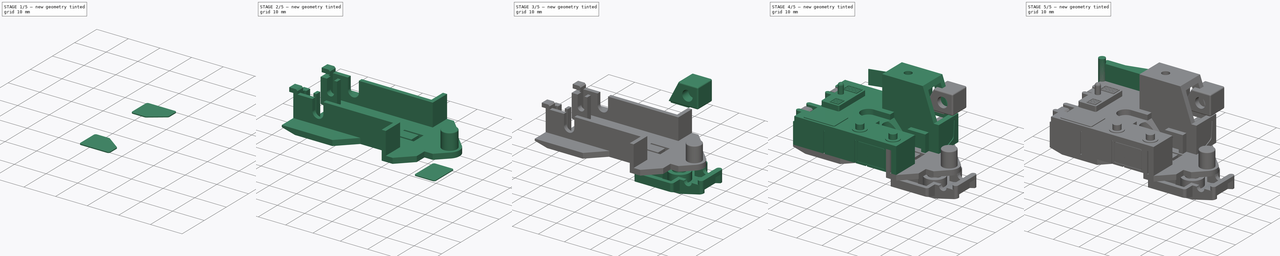
[diagram: build sequence overview — one tinted view per stage of 5, left to right]
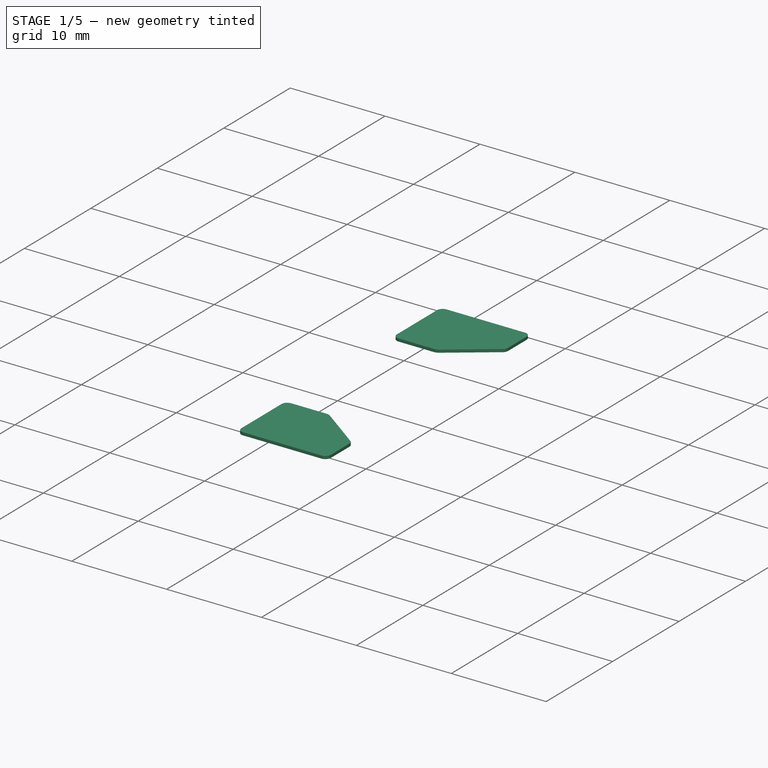
[diagram: stage 1 of 5 — iso view after this stage's code; geometry added in this stage tinted green]
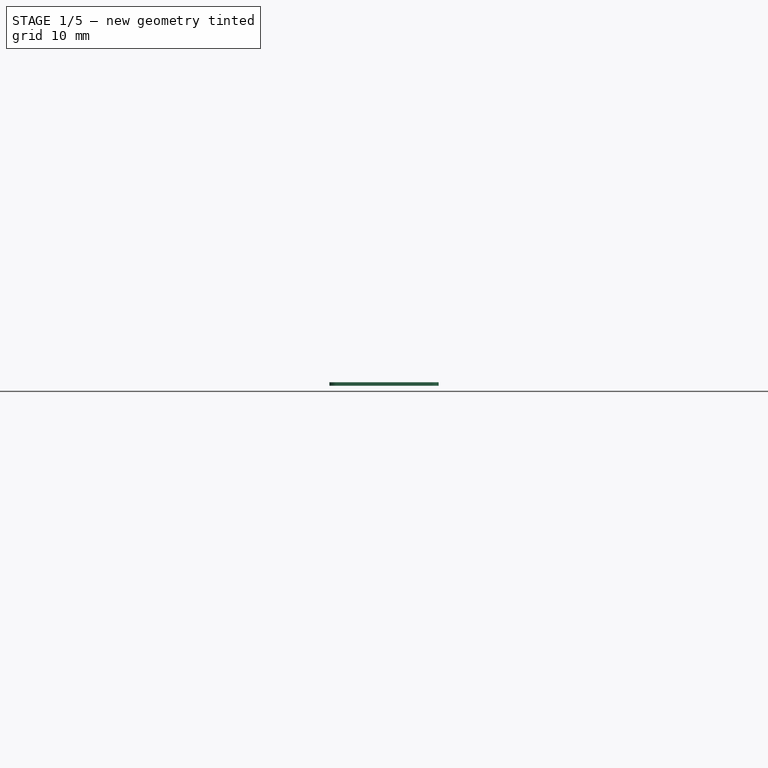
[diagram: stage 1 of 5 — front view after this stage's code; geometry added in this stage tinted green]
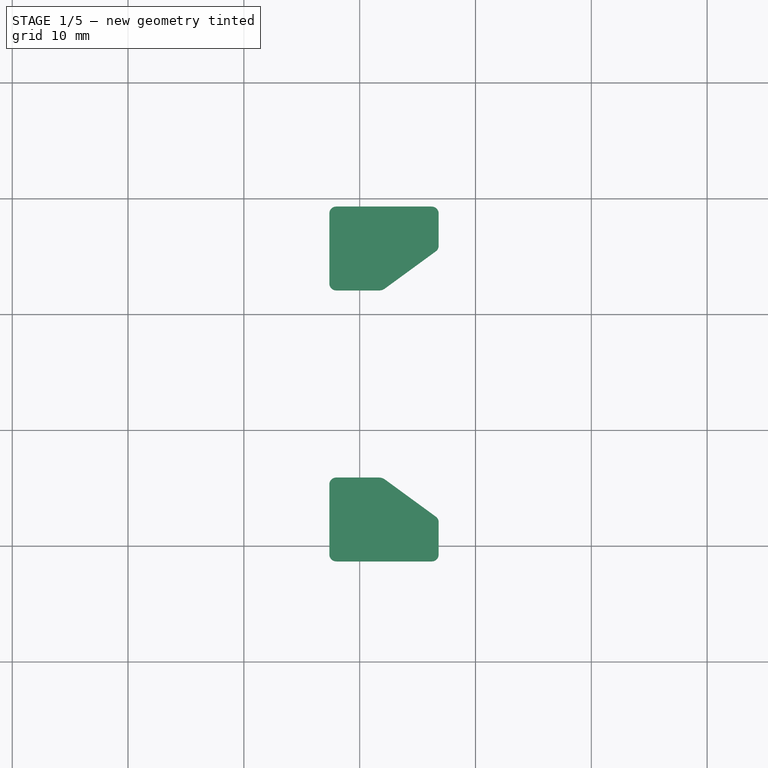
[diagram: stage 1 of 5 — top view after this stage's code; geometry added in this stage tinted green]
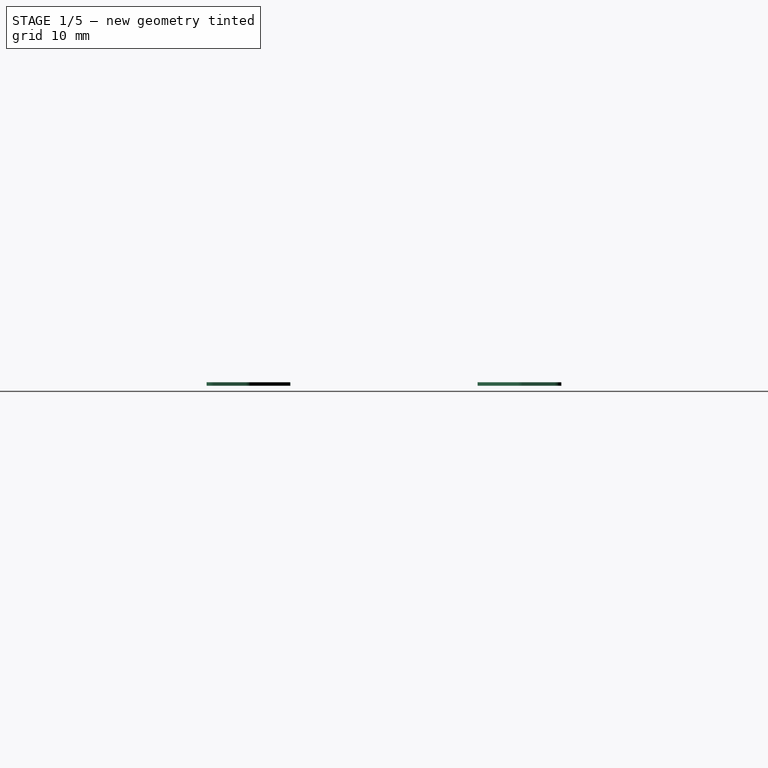
[diagram: stage 1 of 5 — right view after this stage's code; geometry added in this stage tinted green]
FCSTD DOCUMENT  (FreeCAD 1.0R39319 (Git))
Label: Stickered_Parts
License: All rights reserved
LicenseURL: https://en.wikipedia.org/wiki/All_rights_reserved
objects: Sketcher::SketchObject×29, PartDesign::Pocket×21, PartDesign::Body×14, Image::ImagePlane×8, PartDesign::SubShapeBinder×8, PartDesign::Pad×8, Part::Feature×6, PartDesign::FeatureBase×6
note: 185 computed .brp shape members not serialized (recipe doc carries the construction recipe); baked Part::Feature solids carry a one-line shape summary decoded from their .brp

FEATURE [PartDesign::Body] Body011  label="Sticker5"
  AllowCompound = false
  Group = -> [Binder005,Sketch019,Pad005,Sketch020,Pocket014]
  Origin = -> Origin011
  Tip = -> Pocket014
FEATURE [PartDesign::SubShapeBinder] Binder006
  BindCopyOnChange = 0
  BindMode = 2
  ClaimChildren = false
  Context = -> Body012 [Binder006.]
  Fuse = false
  MakeFace = true
  OffsetFill = false
  OffsetIntersection = false
  OffsetJoinType = 0
  OffsetOpenResult = false
  PartialLoad = false
  Refine = true
  Relative = true
  _Version = 2
FEATURE [Sketcher::SketchObject] Sketch021
  ArcFitTolerance = 1e-06
  AttachmentSupport = -> [Binder006]
  ExternalGeometry = -> [Binder006]
  FullyConstrained = true
  MakeInternals = false
  MapMode = 5
  Placement = pos=(0,0,-9.9) rot=(1,0,0;3.14159rad)
  sketch-geometry (16):
    g0: LineSegment StartX=7.38 StartY=7.32 StartZ=0 EndX=7.38 EndY=1.28 EndZ=0
    g1: LineSegment StartX=7.98 StartY=0.68 StartZ=0 EndX=16.22 EndY=0.68 EndZ=0
    g2: LineSegment StartX=16.82 StartY=1.28 StartZ=0 EndX=16.82 EndY=4.05936 EndZ=0
    g3: LineSegment StartX=16.5739 StartY=4.5439 StartZ=0 EndX=12.1752 EndY=7.75642 EndZ=0
    g4: LineSegment StartX=11.6739 StartY=7.92 StartZ=0 EndX=7.98 EndY=7.92 EndZ=0
    g5: ArcOfCircle CenterX=7.98 CenterY=7.32 CenterZ=0 NormalX=0 NormalY=0 NormalZ=1 AngleXU=0 Radius=0.6 StartAngle=1.5708 EndAngle=3.14159
    g6: GeomPoint [constr] X=7.38 Y=7.92 Z=0
    g7: ArcOfCircle CenterX=11.6739 CenterY=7.07 CenterZ=0 NormalX=0 NormalY=0 NormalZ=1 AngleXU=0 Radius=0.85 StartAngle=0.939995 EndAngle=1.5708
    g8: GeomPoint [constr] X=11.9512 Y=7.92 Z=0
    g9: ArcOfCircle CenterX=16.22 CenterY=4.05936 CenterZ=0 NormalX=0 NormalY=0 NormalZ=1 AngleXU=0 Radius=0.6 StartAngle=4e-16 EndAngle=0.939995
    g10: GeomPoint [constr] X=16.82 Y=4.36414 Z=0
    g11: ArcOfCircle CenterX=16.22 CenterY=1.28 CenterZ=0 NormalX=0 NormalY=0 NormalZ=1 AngleXU=0 Radius=0.6 StartAngle=4.71239 EndAngle=6.28319
    g12: GeomPoint [constr] X=16.82 Y=0.68 Z=0
    g13: ArcOfCircle CenterX=7.98 CenterY=1.28 CenterZ=0 NormalX=0 NormalY=0 NormalZ=1 AngleXU=0 Radius=0.6 StartAngle=3.14159 EndAngle=4.71239
    g14: GeomPoint [constr] X=7.38 Y=0.68 Z=0
    g15: LineSegment [constr] StartX=12.797 StartY=7.30228 StartZ=0 EndX=12.8442 EndY=7.36689 EndZ=0
  constraints (44):
    c: Vertical(g0)
    c: Horizontal(g1)
    c: Vertical(g2)
    c: Horizontal(g4)
    c: PointOnObject(g6,g0)
    c: PointOnObject(g6,g4)
    c: Tangent(g0,g5) = -1.5708
    c: Tangent(g4,g5) = -1.5708
    c: PointOnObject(g8,g3)
    c: PointOnObject(g8,g4)
    c: Tangent(g3,g7) = -1.5708
    c: Tangent(g4,g7) = -1.5708
    c: PointOnObject(g10,g2)
    c: PointOnObject(g10,g3)
    c: Tangent(g2,g9) = -1.5708
    c: Tangent(g3,g9) = -1.5708
    c: PointOnObject(g12,g1)
    c: PointOnObject(g12,g2)
    c: Tangent(g1,g11) = -1.5708
    c: Tangent(g2,g11) = -1.5708
    c: PointOnObject(g14,g0)
    c: PointOnObject(g14,g1)
    c: Tangent(g0,g13) = -1.5708
    c: Tangent(g1,g13) = -1.5708
    c: Radius(g-6) = 0.6
    c: Radius(g-4) = 0.6
    c: Radius(g-12) = 0.85
    c: Radius(g-8) = 0.6
    c: Radius(g-10) = 0.6
    c: Radius(g9) = 0.6
    c: Radius(g11) = 0.6
    c: Radius(g13) = 0.6
    c: Radius(g5) = 0.6
    c: Radius(g7) = 0.85
    c: Parallel(g3,g-11)
    c: DistanceY(g4,g-4) = 0.08
    c: DistanceX(g-5,g0) = 0.08
    c: DistanceX(g2,g-10) = 0.08
    c: DistanceY(g-8,g1) = 0.08
    c: PointOnObject(g15,g3)
    c: PointOnObject(g15,g-11)
    c: Perpendicular(g15,g-11)
    c: Distance(g15) = 0.08
    c: Distance(g15,g3) = 0.77
FEATURE [PartDesign::Pad] Pad006
  Direction = (0,0,-1)
  Length = 0.3
  Length2 = 10
  Profile = -> Sketch021
  ReferenceAxis = -> Sketch021 [N_Axis]
  Refine = true
  Suppressed = false
  Type = 0
FEATURE [Sketcher::SketchObject] Sketch022
  ArcFitTolerance = 1e-06
  AttachmentSupport = -> [Pad006]
  ExternalGeometry = -> [Pad006]
  FullyConstrained = false
  MakeInternals = false
  MapMode = 5
  Placement = pos=(0,0,-10.2) rot=(1,0,0;3.14159rad)
  sketch-geometry (13):
    g0: LineSegment StartX=8.53823 StartY=6.69945 StartZ=0 EndX=8.53823 EndY=1.9974 EndZ=0
    g1: LineSegment StartX=8.93823 StartY=1.5974 StartZ=0 EndX=15.4532 EndY=1.5974 EndZ=0
    g2: LineSegment StartX=15.8532 StartY=1.9974 StartZ=0 EndX=15.8532 EndY=4.00462 EndZ=0
    g3: LineSegment StartX=15.6481 StartY=4.4084 StartZ=0 EndX=11.9634 EndY=7.09945 EndZ=0
    g4: LineSegment StartX=11.9634 StartY=7.09945 StartZ=0 EndX=8.93823 EndY=7.09945 EndZ=0
    g5: ArcOfCircle CenterX=8.93823 CenterY=6.69945 CenterZ=0 NormalX=0 NormalY=0 NormalZ=1 AngleXU=0 Radius=0.4 StartAngle=1.5708 EndAngle=3.14159
    g6: GeomPoint [constr] X=8.53823 Y=7.09945 Z=0
    g7: ArcOfCircle CenterX=8.93823 CenterY=1.9974 CenterZ=0 NormalX=0 NormalY=0 NormalZ=1 AngleXU=0 Radius=0.4 StartAngle=3.14159 EndAngle=4.71239
    g8: GeomPoint [constr] X=8.53823 Y=1.5974 Z=0
    g9: ArcOfCircle CenterX=15.4532 CenterY=1.9974 CenterZ=0 NormalX=0 NormalY=0 NormalZ=1 AngleXU=0 Radius=0.4 StartAngle=4.71239 EndAngle=6.28319
    g10: GeomPoint [constr] X=15.8532 Y=1.5974 Z=0
    g11: ArcOfCircle CenterX=15.3532 CenterY=4.00462 CenterZ=0 NormalX=0 NormalY=0 NormalZ=1 AngleXU=0 Radius=0.5 StartAngle=0 EndAngle=0.939995
    g12: GeomPoint [constr] X=15.8532 Y=4.2586 Z=0
  constraints (26):
    c: Vertical(g0)
    c: Horizontal(g1)
    c: Vertical(g2)
    c: Coincident(g4,g3)
    c: Horizontal(g4)
    c: PointOnObject(g6,g0)
    c: PointOnObject(g6,g4)
    c: Tangent(g0,g5) = -1.5708
    c: Tangent(g4,g5) = -1.5708
    c: PointOnObject(g8,g0)
    c: PointOnObject(g8,g1)
    c: Tangent(g0,g7) = -1.5708
    c: Tangent(g1,g7) = -1.5708
    c: PointOnObject(g10,g1)
    c: PointOnObject(g10,g2)
    c: Tangent(g1,g9) = -1.5708
    c: Tangent(g2,g9) = -1.5708
    c: PointOnObject(g12,g2)
    c: PointOnObject(g12,g3)
    c: Tangent(g2,g11) = -1.5708
    c: Tangent(g3,g11) = -1.5708
    c: Radius(g5) = 0.4
    c: Parallel(g-3,g3)
    c: Radius(g11) = 0.5
    c: Radius(g9) = 0.4
    c: Radius(g7) = 0.4
FEATURE [PartDesign::Pocket] Pocket015
  BaseFeature = -> Pad006
  Direction = (0,0,1)
  Length = 0.001
  Length2 = 5
  Profile = -> Sketch022
  ReferenceAxis = -> Sketch022 [N_Axis]
  Refine = true
  Suppressed = false
  Type = 0
FEATURE [PartDesign::Body] Body012  label="Sticker6"
  AllowCompound = false
  Group = -> [Binder006,Sketch021,Pad006,Sketch022,Pocket015,Sketch023,Pocket016]
  Origin = -> Origin012
  Tip = -> Pocket016
FEATURE [PartDesign::SubShapeBinder] Binder007
  BindCopyOnChange = 0
  BindMode = 2
  ClaimChildren = false
  Context = -> Body013 [Binder007.]
  Fuse = false
  MakeFace = true
  OffsetFill = false
  OffsetIntersection = false
  OffsetJoinType = 0
  OffsetOpenResult = false
  PartialLoad = false
  Refine = true
  Relative = true
  _Version = 2
FEATURE [Sketcher::SketchObject] Sketch024
  ArcFitTolerance = 1e-06
  AttachmentSupport = -> [Binder007]
  ExternalGeometry = -> [Binder007]
  FullyConstrained = true
  MakeInternals = false
  MapMode = 5
  Placement = pos=(0,0,-9.9) rot=(1,0,0;3.14159rad)
  sketch-geometry (16):
    g0: LineSegment StartX=7.98 StartY=31.32 StartZ=0 EndX=16.22 EndY=31.32 EndZ=0
    g1: LineSegment StartX=16.82 StartY=30.72 StartZ=0 EndX=16.82 EndY=27.9406 EndZ=0
    g2: LineSegment StartX=16.5739 StartY=27.4561 StartZ=0 EndX=12.1752 EndY=24.2436 EndZ=0
    g3: LineSegment StartX=11.6739 StartY=24.08 StartZ=0 EndX=7.98 EndY=24.08 EndZ=0
    g4: LineSegment StartX=7.38 StartY=24.68 StartZ=0 EndX=7.38 EndY=30.72 EndZ=0
    g5: ArcOfCircle CenterX=7.98 CenterY=30.72 CenterZ=0 NormalX=0 NormalY=0 NormalZ=1 AngleXU=0 Radius=0.6 StartAngle=1.5708 EndAngle=3.14159
    g6: GeomPoint [constr] X=7.38 Y=31.32 Z=0
    g7: ArcOfCircle CenterX=16.22 CenterY=30.72 CenterZ=0 NormalX=0 NormalY=0 NormalZ=1 AngleXU=0 Radius=0.6 StartAngle=-9e-16 EndAngle=1.5708
    g8: GeomPoint [constr] X=16.82 Y=31.32 Z=0
    g9: ArcOfCircle CenterX=16.22 CenterY=27.9406 CenterZ=0 NormalX=0 NormalY=0 NormalZ=1 AngleXU=0 Radius=0.6 StartAngle=5.34319 EndAngle=6.28319
    g10: GeomPoint [constr] X=16.82 Y=27.6359 Z=0
    g11: ArcOfCircle CenterX=7.98 CenterY=24.68 CenterZ=0 NormalX=0 NormalY=0 NormalZ=1 AngleXU=0 Radius=0.6 StartAngle=3.14159 EndAngle=4.71239
    g12: GeomPoint [constr] X=7.38 Y=24.08 Z=0
    g13: ArcOfCircle CenterX=11.6739 CenterY=24.93 CenterZ=0 NormalX=0 NormalY=0 NormalZ=1 AngleXU=0 Radius=0.85 StartAngle=4.71239 EndAngle=5.34319
    g14: GeomPoint [constr] X=11.9512 Y=24.08 Z=0
    g15: LineSegment [constr] StartX=16.4278 StartY=27.2503 StartZ=0 EndX=16.3806 EndY=27.3149 EndZ=0
  constraints (44):
    c: Horizontal(g0)
    c: Vertical(g1)
    c: Horizontal(g3)
    c: Vertical(g4)
    c: PointOnObject(g6,g0)
    c: PointOnObject(g6,g4)
    c: Tangent(g0,g5) = 1.5708
    c: Tangent(g4,g5) = 1.5708
    c: PointOnObject(g8,g0)
    c: PointOnObject(g8,g1)
    c: Tangent(g0,g7) = 1.5708
    c: Tangent(g1,g7) = 1.5708
    c: PointOnObject(g10,g1)
    c: PointOnObject(g10,g2)
    c: Tangent(g1,g9) = 1.5708
    c: Tangent(g2,g9) = 1.5708
    c: PointOnObject(g12,g3)
    c: PointOnObject(g12,g4)
    c: Tangent(g3,g11) = 1.5708
    c: Tangent(g4,g11) = 1.5708
    c: Radius(g-9) = 0.6
    c: Radius(g-10) = 0.85
    c: Radius(g-6) = 0.6
    c: Radius(g-5) = 0.6
    c: Radius(g-11) = 0.6
    c: Radius(g5) = 0.6
    c: Radius(g11) = 0.6
    c: PointOnObject(g14,g2)
    c: PointOnObject(g14,g3)
    c: Tangent(g2,g13) = 1.5708
    c: Tangent(g3,g13) = 1.5708
    c: Radius(g13) = 0.85
    c: Radius(g9) = 0.6
    c: Radius(g7) = 0.6
    c: Parallel(g-7,g2)
    c: DistanceX(g1,g-5) = 0.08
    c: DistanceX(g-12,g4) = 0.08
    c: DistanceY(g-9,g3) = 0.08
    c: DistanceY(g0,g-11) = 0.08
    c: PointOnObject(g15,g-7)
    c: PointOnObject(g15,g2)
    c: Perpendicular(g15,g2)
    c: Distance(g15) = 0.08
    c: Distance(g15,g-7) = 0.28
FEATURE [PartDesign::Pad] Pad007
  Direction = (0,0,-1)
  Length = 0.3
  Length2 = 10
  Profile = -> Sketch024
  ReferenceAxis = -> Sketch024 [N_Axis]
  Refine = true
  Suppressed = false
  Type = 0
FEATURE [Sketcher::SketchObject] Sketch025
  ArcFitTolerance = 1e-06
  AttachmentSupport = -> [Pad007]
  FullyConstrained = false
  MakeInternals = false
  MapMode = 5
  Placement = pos=(0,0,-10.2) rot=(1,0,0;3.14159rad)
  sketch-geometry (22):
    g0: LineSegment StartX=12.1022 StartY=25.3742 StartZ=0 EndX=12.1022 EndY=28.942 EndZ=0
    g1: LineSegment StartX=12.1022 StartY=28.942 StartZ=0 EndX=12.9917 EndY=29.5898 EndZ=0
    g2: LineSegment StartX=12.9917 StartY=29.5898 StartZ=0 EndX=13.4825 EndY=28.9587 EndZ=0
    g3: LineSegment StartX=13.4825 StartY=28.9587 StartZ=0 EndX=14.1316 EndY=29.4347 EndZ=0
    g4: LineSegment StartX=14.1316 StartY=29.4347 StartZ=0 EndX=13.7746 EndY=30.0069 EndZ=0
    g5: LineSegment StartX=13.7746 StartY=30.0069 StartZ=0 EndX=15.9779 EndY=29.9107 EndZ=0
    g6: LineSegment StartX=15.9779 StartY=29.9107 StartZ=0 EndX=15.2999 EndY=27.5235 EndZ=0
    g7: LineSegment StartX=15.2999 StartY=27.5235 StartZ=0 EndX=14.876 EndY=28.1768 EndZ=0
    g8: LineSegment StartX=14.876 StartY=28.1768 StartZ=0 EndX=14.1887 EndY=27.7866 EndZ=0
    g9: LineSegment StartX=14.1887 StartY=27.7866 StartZ=0 EndX=14.6662 EndY=27.0286 EndZ=0
    g10: LineSegment StartX=14.6662 StartY=27.0286 StartZ=0 EndX=12.1022 EndY=25.3742 EndZ=0
    g11: LineSegment StartX=12.1025 StartY=30.9821 StartZ=0 EndX=12.1025 EndY=29.363 EndZ=0
    g12: LineSegment StartX=12.1025 StartY=29.363 StartZ=0 EndX=12.8263 EndY=29.9122 EndZ=0
    g13: LineSegment StartX=12.8263 StartY=29.9122 StartZ=0 EndX=12.1025 EndY=30.9821 EndZ=0
    g14: LineSegment StartX=8.43184 StartY=30.9148 StartZ=0 EndX=11.349 EndY=30.9148 EndZ=0
    g15: LineSegment StartX=11.349 StartY=30.9148 StartZ=0 EndX=11.7962 EndY=30.3764 EndZ=0
    g16: LineSegment StartX=11.7962 StartY=30.3764 StartZ=0 EndX=11.7962 EndY=25.075 EndZ=0
    g17: LineSegment StartX=11.7962 StartY=25.075 StartZ=0 EndX=11.266 EndY=24.5802 EndZ=0
    g18: LineSegment StartX=11.266 StartY=24.5802 StartZ=0 EndX=8.39557 EndY=24.5802 EndZ=0
    g19: LineSegment StartX=8.39557 StartY=24.5802 StartZ=0 EndX=7.97997 EndY=25.0119 EndZ=0
    g20: LineSegment StartX=7.97997 StartY=25.0119 StartZ=0 EndX=7.97997 EndY=30.409 EndZ=0
    g21: LineSegment StartX=7.97997 StartY=30.409 StartZ=0 EndX=8.43184 EndY=30.9148 EndZ=0
  constraints (28):
    c: Vertical(g0)
    c: Coincident(g1,g0)
    c: Coincident(g2,g1)
    c: Coincident(g3,g2)
    c: Coincident(g4,g3)
    c: Coincident(g5,g4)
    c: Coincident(g6,g5)
    c: Coincident(g7,g6)
    c: Coincident(g8,g7)
    c: Coincident(g9,g8)
    c: Coincident(g10,g9)
    c: Coincident(g10,g0)
    c: Vertical(g11)
    c: Coincident(g12,g11)
    c: Coincident(g13,g12)
    c: Coincident(g13,g11)
    c: Horizontal(g14)
    c: Coincident(g15,g14)
    c: Coincident(g16,g15)
    c: Vertical(g16)
    c: Coincident(g17,g16)
    c: Coincident(g18,g17)
    c: Horizontal(g18)
    c: Coincident(g19,g18)
    c: Coincident(g20,g19)
    c: Vertical(g20)
    c: Coincident(g21,g20)
    c: Coincident(g21,g14)
FEATURE [PartDesign::Pocket] Pocket017
  BaseFeature = -> Pad007
  Direction = (0,0,1)
  Length = 0.001
  Length2 = 5
  Profile = -> Sketch025
  ReferenceAxis = -> Sketch025 [N_Axis]
  Refine = true
  Suppressed = false
  Type = 0
FEATURE [Sketcher::SketchObject] Sketch026
  ArcFitTolerance = 1e-06
  AttachmentSupport = -> [Pocket017]
  ExternalGeometry = -> [Pocket017]
  FullyConstrained = false
  MakeInternals = false
  MapMode = 5
  Placement = pos=(0,0,-10.199) rot=(1,0,0;3.14159rad)
  sketch-geometry (51):
    g0: LineSegment StartX=12.6768 StartY=25.745 StartZ=0 EndX=13.8596 EndY=26.5082 EndZ=0
    g1: LineSegment StartX=13.8596 StartY=26.5082 StartZ=0 EndX=12.6768 EndY=28.5949 EndZ=0
    g2: LineSegment StartX=12.6768 StartY=28.5949 StartZ=0 EndX=12.6768 EndY=25.745 EndZ=0
    g3: LineSegment StartX=13.5848 StartY=28.7237 StartZ=0 EndX=14.0558 EndY=27.9986 EndZ=0
    g4: LineSegment StartX=14.0558 StartY=27.9986 StartZ=0 EndX=14.9575 EndY=28.5105 EndZ=0
    g5: LineSegment StartX=14.9575 StartY=28.5105 StartZ=0 EndX=15.2099 EndY=28.1215 EndZ=0
    g6: LineSegment StartX=15.2099 StartY=28.1215 StartZ=0 EndX=15.651 EndY=29.6747 EndZ=0
    g7: LineSegment StartX=15.651 StartY=29.6747 StartZ=0 EndX=14.238 EndY=29.7364 EndZ=0
    g8: LineSegment StartX=14.238 StartY=29.7364 StartZ=0 EndX=14.4664 EndY=29.3702 EndZ=0
    g9: LineSegment StartX=13.5848 StartY=28.7237 StartZ=0 EndX=14.4664 EndY=29.3702 EndZ=0
    g10: LineSegment [constr] StartX=14.238 StartY=29.7364 StartZ=0 EndX=14.0259 EndY=29.6041 EndZ=0
    g11: LineSegment [constr] StartX=15.2099 StartY=28.1215 StartZ=0 EndX=15.0002 EndY=27.9854 EndZ=0
    g12: LineSegment [constr] StartX=15.4949 StartY=29.9318 StartZ=0 EndX=15.484 EndY=29.682 EndZ=0
    g13: LineSegment [constr] StartX=15.8313 StartY=29.3944 StartZ=0 EndX=15.5908 EndY=29.4627 EndZ=0
    g14: LineSegment [constr] StartX=13.807 StartY=29.1967 StartZ=0 EndX=13.9549 EndY=28.9951 EndZ=0
    g15: LineSegment [constr] StartX=14.4414 StartY=28.2175 StartZ=0 EndX=14.5648 EndY=28.0001 EndZ=0
    g16: LineSegment StartX=11.7962 StartY=25.4915 StartZ=0 EndX=11.2592 EndY=24.9904 EndZ=0
    g17: LineSegment StartX=11.2592 StartY=24.9904 StartZ=0 EndX=8.79696 EndY=24.9904 EndZ=0
    g18: LineSegment StartX=8.79696 StartY=24.9904 StartZ=0 EndX=8.51749 EndY=25.2807 EndZ=0
    g19: LineSegment StartX=8.51749 StartY=25.2807 StartZ=0 EndX=8.51749 EndY=30.4072 EndZ=0
    g20: LineSegment StartX=8.51749 StartY=30.4072 StartZ=0 EndX=8.74382 EndY=30.6605 EndZ=0
    g21: LineSegment StartX=8.74382 StartY=30.6605 StartZ=0 EndX=11.5602 EndY=30.6605 EndZ=0
    g22: LineSegment StartX=11.5602 StartY=30.6605 StartZ=0 EndX=11.349 EndY=30.9148 EndZ=0
    g23: LineSegment StartX=11.349 StartY=30.9148 StartZ=0 EndX=8.43184 EndY=30.9148 EndZ=0
    g24: LineSegment StartX=8.43184 StartY=30.9148 StartZ=0 EndX=7.97997 EndY=30.409 EndZ=0
    g25: LineSegment StartX=7.97997 StartY=30.409 StartZ=0 EndX=7.97997 EndY=25.0119 EndZ=0
    g26: LineSegment StartX=7.97997 StartY=25.0119 StartZ=0 EndX=8.39557 EndY=24.5802 EndZ=0
    g27: LineSegment StartX=8.39557 StartY=24.5802 StartZ=0 EndX=11.266 EndY=24.5802 EndZ=0
    g28: LineSegment StartX=11.266 StartY=24.5802 StartZ=0 EndX=11.7962 EndY=25.075 EndZ=0
    g29: LineSegment StartX=11.7962 StartY=25.075 StartZ=0 EndX=11.7962 EndY=25.4915 EndZ=0
    g30: LineSegment StartX=8.86455 StartY=27.0798 StartZ=0 EndX=8.86455 EndY=25.1798 EndZ=0
    g31: LineSegment StartX=8.86455 StartY=25.1798 StartZ=0 EndX=10.551 EndY=25.1798 EndZ=0
    g32: LineSegment StartX=10.551 StartY=25.1798 StartZ=0 EndX=10.551 EndY=27.0798 EndZ=0
    g33: LineSegment StartX=10.551 StartY=27.0798 StartZ=0 EndX=8.86455 EndY=27.0798 EndZ=0
    g34: LineSegment StartX=9.11455 StartY=26.8298 StartZ=0 EndX=9.11455 EndY=26.5298 EndZ=0
    g35: LineSegment StartX=9.11455 StartY=26.5298 StartZ=0 EndX=10.301 EndY=26.5298 EndZ=0
    g36: LineSegment StartX=10.301 StartY=26.5298 StartZ=0 EndX=10.301 EndY=26.8298 EndZ=0
    g37: LineSegment StartX=10.301 StartY=26.8298 StartZ=0 EndX=9.11455 EndY=26.8298 EndZ=0
    g38: LineSegment StartX=9.12636 StartY=26.2798 StartZ=0 EndX=9.12636 EndY=25.9798 EndZ=0
    g39: LineSegment StartX=9.12636 StartY=25.9798 StartZ=0 EndX=10.301 EndY=25.9798 EndZ=0
    g40: LineSegment StartX=10.301 StartY=25.9798 StartZ=0 EndX=10.301 EndY=26.2798 EndZ=0
    g41: LineSegment StartX=10.301 StartY=26.2798 StartZ=0 EndX=9.12636 EndY=26.2798 EndZ=0
    g42: LineSegment StartX=9.12636 StartY=25.7298 StartZ=0 EndX=9.12636 EndY=25.4298 EndZ=0
    g43: LineSegment StartX=9.12636 StartY=25.4298 StartZ=0 EndX=10.301 EndY=25.4298 EndZ=0
    g44: LineSegment StartX=10.301 StartY=25.4298 StartZ=0 EndX=10.301 EndY=25.7298 EndZ=0
    g45: LineSegment StartX=10.301 StartY=25.7298 StartZ=0 EndX=9.12636 EndY=25.7298 EndZ=0
    g46: LineSegment [constr] StartX=9.11455 StartY=26.5298 StartZ=0 EndX=9.12636 EndY=26.2798 EndZ=0
    g47: LineSegment [constr] StartX=9.12636 StartY=25.9798 StartZ=0 EndX=9.12636 EndY=25.7298 EndZ=0
    g48: LineSegment [constr] StartX=10.301 StartY=25.7298 StartZ=0 EndX=10.301 EndY=25.9798 EndZ=0
    g49: LineSegment [constr] StartX=10.301 StartY=26.2798 StartZ=0 EndX=10.301 EndY=26.5298 EndZ=0
    g50: Circle CenterX=9.83944 CenterY=29.1046 CenterZ=0 NormalX=0 NormalY=0 NormalZ=1 AngleXU=0 Radius=1.16339
  constraints (124):
    c: PointOnObject(g0,g-3)
    c: PointOnObject(g0,g-3)
    c: Coincident(g1,g0)
    c: Coincident(g2,g1)
    c: Coincident(g2,g0)
    c: Vertical(g2)
    c: Coincident(g4,g3)
    c: Coincident(g5,g4)
    c: Coincident(g6,g5)
    c: Coincident(g7,g6)
    c: Coincident(g8,g7)
    c: Coincident(g9,g3)
    c: Coincident(g9,g8)
    c: Parallel(g-9,g8)
    c: Parallel(g7,g-4)
    c: Parallel(g-5,g6)
    c: Parallel(g-6,g5)
    c: Parallel(g-7,g4)
    c: Parallel(g9,g-8)
    c: Coincident(g10,g7)
    c: PointOnObject(g10,g-9)
    c: Perpendicular(g-9,g10)
    c: Distance(g10) = 0.25
    c: Coincident(g11,g5)
    c: PointOnObject(g11,g-6)
    c: Perpendicular(g11,g-6)
    c: Distance(g11) = 0.25
    c: PointOnObject(g12,g-4)
    c: PointOnObject(g12,g7)
    c: PointOnObject(g13,g-5)
    c: PointOnObject(g13,g6)
    c: Perpendicular(g12,g-4)
    c: Perpendicular(g13,g-5)
    c: Distance(g12) = 0.25
    c: Distance(g13) = 0.25
    c: Symmetric(g-8,g-8,g14)
    c: PointOnObject(g14,g9)
    c: PointOnObject(g15,g4)
    c: PointOnObject(g15,g-7)
    c: Perpendicular(g15,g-7)
    c: Perpendicular(g-8,g14)
    c: Distance(g14) = 0.25
    c: Distance(g15) = 0.25
    c: PointOnObject(g16,g-14)
    c: Coincident(g17,g16)
    c: Horizontal(g17)
    c: Coincident(g18,g17)
    c: Coincident(g19,g18)
    c: Vertical(g19)
    c: Coincident(g20,g19)
    c: Coincident(g21,g20)
    c: PointOnObject(g21,g-10)
    c: Horizontal(g21)
    c: Coincident(g22,g21)
    c: Coincident(g22,g-11)
    c: Coincident(g23,g22)
    c: Coincident(g23,g-12)
    c: Coincident(g24,g23)
    c: Coincident(g24,g-13)
    c: Coincident(g25,g24)
    c: Coincident(g25,g-17)
    c: Coincident(g26,g25)
    c: Coincident(g26,g-17)
    c: Coincident(g27,g26)
    c: Coincident(g27,g-16)
    c: Coincident(g28,g27)
    c: Coincident(g28,g-15)
    c: Coincident(g29,g28)
    c: Coincident(g29,g16)
    c: Parallel(g24,g20)
    c: Parallel(g28,g16)
    c: Parallel(g26,g18)
    c: Coincident(g30,g31)
    c: Coincident(g31,g32)
    c: Coincident(g32,g33)
    c: Coincident(g33,g30)
    c: Vertical(g30)
    c: Vertical(g32)
    c: Horizontal(g31)
    c: Horizontal(g33)
    c: Coincident(g34,g35)
    c: Coincident(g35,g36)
    c: Coincident(g36,g37)
    c: Coincident(g37,g34)
    c: Vertical(g34)
    c: Vertical(g36)
    c: Horizontal(g35)
    c: Horizontal(g37)
    c: Coincident(g38,g39)
    c: Coincident(g39,g40)
    c: Coincident(g40,g41)
    c: Coincident(g41,g38)
    c: Vertical(g38)
    c: Vertical(g40)
    c: Horizontal(g39)
    c: Horizontal(g41)
    c: Coincident(g42,g43)
    c: Coincident(g43,g44)
    c: Coincident(g44,g45)
    c: Coincident(g45,g42)
    c: Vertical(g42)
    c: Vertical(g44)
    c: Horizontal(g43)
    c: Horizontal(g45)
    c: Coincident(g46,g34)
    c: Coincident(g46,g38)
    c: Coincident(g47,g38)
    c: Coincident(g47,g42)
    c: Coincident(g48,g44)
    c: Coincident(g48,g39)
    c: Coincident(g49,g40)
    c: Coincident(g49,g35)
    c: Vertical(g47)
    c: Vertical(g48)
    c: Vertical(g49)
    c: DistanceY(g34,g30) = 0.25
    c: DistanceY(g46,g46) = 0.25
    c: DistanceY(g47,g47) = 0.25
    c: DistanceY(g30,g42) = 0.25
    c: DistanceY(g38,g38) = 0.3
    c: DistanceY(g34,g34) = 0.3
    c: DistanceY(g42,g42) = 0.3
    c: DistanceX(g30,g34) = 0.25
    c: DistanceX(g36,g32) = 0.25
FEATURE [PartDesign::Pocket] Pocket018
  BaseFeature = -> Pocket017
  Direction = (0,0,1)
  Length = 0.001
  Length2 = 5
  Profile = -> Sketch026
  ReferenceAxis = -> Sketch026 [N_Axis]
  Refine = true
  Suppressed = false
  Type = 0
FEATURE [Sketcher::SketchObject] Sketch027
  ArcFitTolerance = 1e-06
  AttachmentSupport = -> [Pocket018]
  ExternalGeometry = -> [Pocket018]
  FullyConstrained = false
  MakeInternals = false
  MapMode = 5
  Placement = pos=(0,0,-10.199) rot=(1,0,0;3.14159rad)
  sketch-geometry (14):
    g0: LineSegment StartX=8.51749 StartY=27.6329 StartZ=0 EndX=8.51749 EndY=27.8829 EndZ=0
    g1: LineSegment StartX=8.51749 StartY=27.8829 StartZ=0 EndX=8.84195 EndY=27.5584 EndZ=0
    g2: LineSegment StartX=8.84195 StartY=27.5584 StartZ=0 EndX=10.9505 EndY=27.5584 EndZ=0
    g3: LineSegment StartX=10.9505 StartY=27.5584 StartZ=0 EndX=11.1734 EndY=27.7813 EndZ=0
    g4: LineSegment StartX=11.1734 StartY=27.7813 StartZ=0 EndX=11.1734 EndY=30.4097 EndZ=0
    g5: LineSegment StartX=11.1734 StartY=30.4097 StartZ=0 EndX=10.9226 EndY=30.6605 EndZ=0
    g6: LineSegment StartX=10.9226 StartY=30.6605 StartZ=0 EndX=11.1726 EndY=30.6605 EndZ=0
    g7: LineSegment StartX=11.1726 StartY=30.6605 StartZ=0 EndX=11.4234 EndY=30.4097 EndZ=0
    g8: LineSegment StartX=11.4234 StartY=30.4097 StartZ=0 EndX=11.4234 EndY=27.6777 EndZ=0
    g9: LineSegment StartX=11.4234 StartY=27.6777 StartZ=0 EndX=11.0541 EndY=27.3084 EndZ=0
    g10: LineSegment StartX=8.51749 StartY=27.6329 StartZ=0 EndX=8.84195 EndY=27.3084 EndZ=0
    g11: LineSegment StartX=8.84195 StartY=27.3084 StartZ=0 EndX=11.0541 EndY=27.3084 EndZ=0
    g12: LineSegment [constr] StartX=10.9908 StartY=27.5987 StartZ=0 EndX=11.1676 EndY=27.4219 EndZ=0
    g13: LineSegment [constr] StartX=8.83206 StartY=27.5683 StartZ=0 EndX=8.70706 EndY=27.4433 EndZ=0
  constraints (37):
    c: PointOnObject(g0,g-3)
    c: PointOnObject(g0,g-3)
    c: Coincident(g1,g0)
    c: Coincident(g2,g1)
    c: Horizontal(g2)
    c: Coincident(g3,g2)
    c: Coincident(g4,g3)
    c: Vertical(g4)
    c: Coincident(g5,g4)
    c: PointOnObject(g5,g-4)
    c: Coincident(g6,g5)
    c: PointOnObject(g6,g-4)
    c: Coincident(g8,g7)
    c: Vertical(g8)
    c: Coincident(g9,g8)
    c: Coincident(g10,g0)
    c: Coincident(g11,g10)
    c: Coincident(g11,g9)
    c: Horizontal(g11)
    c: Parallel(g3,g9)
    c: Parallel(g1,g10)
    c: Parallel(g7,g5)
    c: DistanceY(g9,g2) = 0.25
    c: DistanceY(g0,g0) = 0.25
    c: DistanceX(g6,g6) = 0.25
    c: DistanceX(g4,g7) = 0.25
    c: Angle(g4,g3) = 2.35619
    c: Angle(g2,g1) = 2.35619
    c: Angle(g5,g4) = 2.35619
    c: PointOnObject(g12,g3)
    c: PointOnObject(g12,g9)
    c: Perpendicular(g12,g3)
    c: Distance(g12) = 0.25
    c: PointOnObject(g13,g1)
    c: PointOnObject(g13,g10)
    c: Perpendicular(g1,g13)
    c: Coincident(g7,g6)
FEATURE [PartDesign::Pocket] Pocket019
  BaseFeature = -> Pocket018
  Direction = (0,0,1)
  Length = 0.001
  Length2 = 5
  Profile = -> Sketch027
  ReferenceAxis = -> Sketch027 [N_Axis]
  Refine = true
  Suppressed = false
  Type = 0
FEATURE [Sketcher::SketchObject] Sketch028
  ArcFitTolerance = 1e-06
  AttachmentSupport = -> [Pocket019]
  ExternalGeometry = -> [Pocket019]
  FullyConstrained = false
  MakeInternals = false
  MapMode = 5
  Placement = pos=(0,0,-10.198) rot=(1,0,0;3.14159rad)
  sketch-geometry (16):
    g0: LineSegment StartX=9.25782 StartY=30.1122 StartZ=0 EndX=8.80267 EndY=28.5768 EndZ=0
    g1: LineSegment StartX=8.93982 StartY=28.3669 StartZ=0 EndX=9.48719 EndY=30.2134 EndZ=0
    g2: LineSegment StartX=9.84437 StartY=30.268 StartZ=0 EndX=9.20573 EndY=28.1289 EndZ=0
    g3: LineSegment StartX=9.41148 StartY=28.0228 StartZ=0 EndX=10.0747 EndY=30.244 EndZ=0
    g4: LineSegment StartX=10.3606 StartY=30.1447 StartZ=0 EndX=9.72639 EndY=27.9467 EndZ=0
    g5: LineSegment StartX=9.96512 StartY=27.948 StartZ=0 EndX=10.5619 EndY=30.0165 EndZ=0
    g6: LineSegment StartX=10.7928 StartY=29.7714 StartZ=0 EndX=10.3073 EndY=28.0394 EndZ=0
    g7: LineSegment StartX=10.5486 StartY=28.1823 StartZ=0 EndX=10.9247 EndY=29.5239 EndZ=0
    g8: ArcOfCircle CenterX=9.83944 CenterY=29.1046 CenterZ=0 NormalX=0 NormalY=0 NormalZ=1 AngleXU=0 Radius=1.16339 StartAngle=4.13634 EndAngle=4.33569
    g9: ArcOfCircle CenterX=9.83944 CenterY=29.1046 CenterZ=0 NormalX=0 NormalY=0 NormalZ=1 AngleXU=0 Radius=1.16339 StartAngle=4.61506 EndAngle=4.82063
    g10: ArcOfCircle CenterX=9.83944 CenterY=29.1046 CenterZ=0 NormalX=0 NormalY=0 NormalZ=1 AngleXU=0 Radius=1.16339 StartAngle=5.12626 EndAngle=5.36792
    g11: ArcOfCircle CenterX=9.83944 CenterY=29.1046 CenterZ=0 NormalX=0 NormalY=0 NormalZ=1 AngleXU=0 Radius=1.16339 StartAngle=3.61249 EndAngle=3.8284
    g12: ArcOfCircle CenterX=9.83944 CenterY=29.1046 CenterZ=0 NormalX=0 NormalY=0 NormalZ=1 AngleXU=0 Radius=1.16339 StartAngle=1.8784 EndAngle=2.09432
    g13: ArcOfCircle CenterX=9.83944 CenterY=29.1046 CenterZ=0 NormalX=0 NormalY=0 NormalZ=1 AngleXU=0 Radius=1.16339 StartAngle=1.36722 EndAngle=1.56656
    g14: ArcOfCircle CenterX=9.83944 CenterY=29.1046 CenterZ=0 NormalX=0 NormalY=0 NormalZ=1 AngleXU=0 Radius=1.16339 StartAngle=0.900764 EndAngle=1.10633
    g15: ArcOfCircle CenterX=9.83944 CenterY=29.1046 CenterZ=0 NormalX=0 NormalY=0 NormalZ=1 AngleXU=0 Radius=1.16339 StartAngle=0.368695 EndAngle=0.610356
  constraints (36):
    c: PointOnObject(g0,g-3)
    c: PointOnObject(g0,g-3)
    c: PointOnObject(g1,g-3)
    c: PointOnObject(g1,g-3)
    c: PointOnObject(g2,g-3)
    c: PointOnObject(g2,g-3)
    c: PointOnObject(g3,g-3)
    c: PointOnObject(g3,g-3)
    c: PointOnObject(g4,g-3)
    c: PointOnObject(g4,g-3)
    c: PointOnObject(g5,g-3)
    c: PointOnObject(g5,g-3)
    c: PointOnObject(g6,g-3)
    c: PointOnObject(g6,g-3)
    c: PointOnObject(g7,g-3)
    c: PointOnObject(g7,g-3)
    c: Parallel(g0,g1)
    c: Parallel(g2,g3)
    c: Parallel(g4,g5)
    c: Parallel(g6,g7)
    c: Coincident(g8,g3)
    c: Coincident(g8,g2)
    c: Coincident(g9,g4)
    c: Coincident(g9,g5)
    c: Coincident(g10,g6)
    c: Coincident(g10,g7)
    c: Coincident(g11,g0)
    c: Coincident(g11,g1)
    c: Coincident(g12,g0)
    c: Coincident(g12,g1)
    c: Coincident(g13,g2)
    c: Coincident(g13,g3)
    c: Coincident(g14,g4)
    c: Coincident(g14,g5)
    c: Coincident(g15,g6)
    c: Coincident(g15,g7)
FEATURE [PartDesign::Pocket] Pocket020
  BaseFeature = -> Pocket019
  Direction = (0,0,1)
  Length = 0.001
  Length2 = 5
  Profile = -> Sketch028
  ReferenceAxis = -> Sketch028 [N_Axis]
  Refine = true
  Suppressed = false
  Type = 0
FEATURE [PartDesign::Body] Body013  label="Sticker7"
  AllowCompound = false
  Group = -> [Binder007,Sketch024,Pad007,Sketch025,Pocket017,Sketch026,Pocket018,Sketch027,Pocket019,Sketch028,Pocket020]
  Origin = -> Origin013
  Tip = -> Pocket020
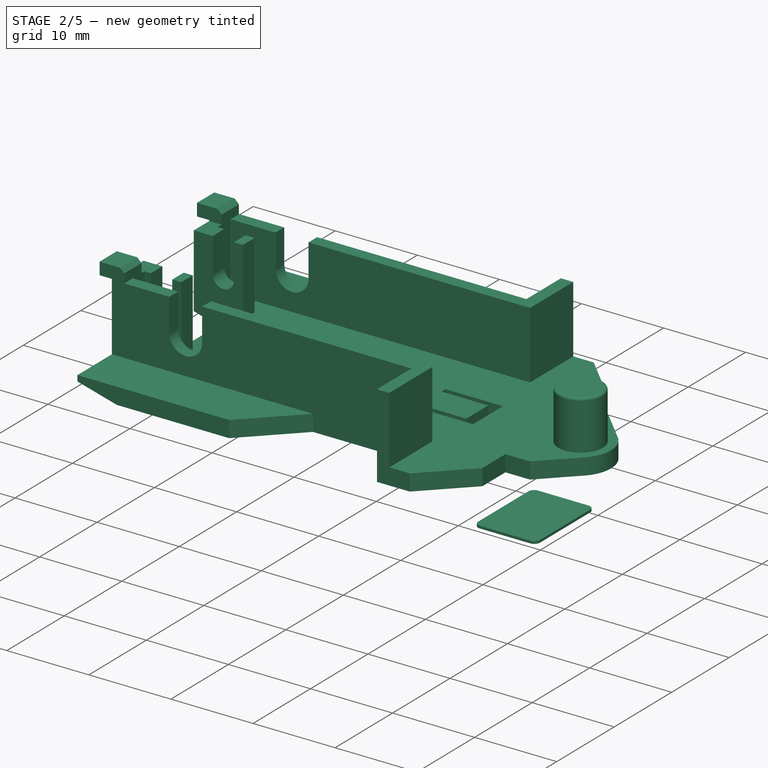
[diagram: stage 2 of 5 — iso view after this stage's code; geometry added in this stage tinted green]
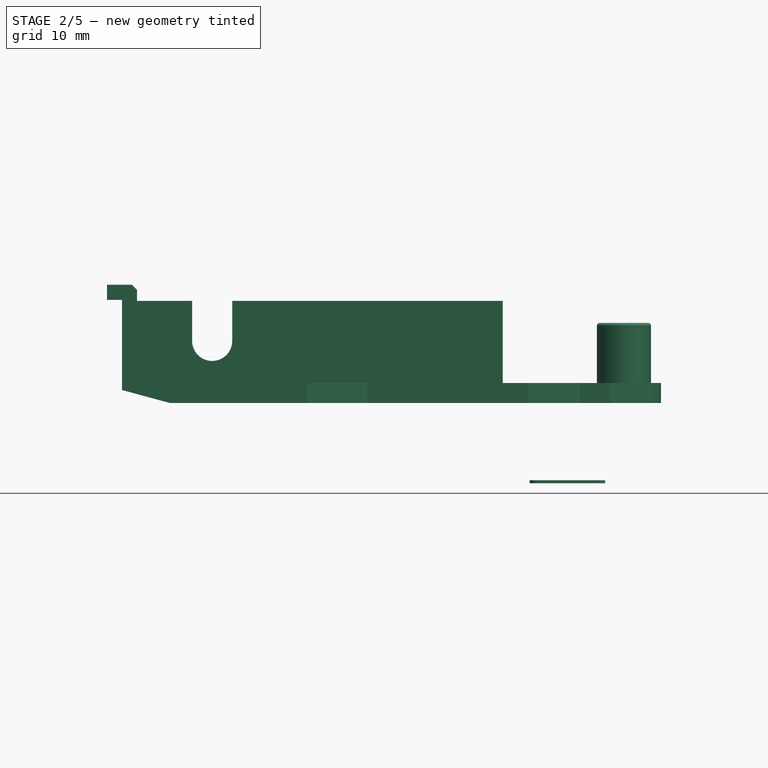
[diagram: stage 2 of 5 — front view after this stage's code; geometry added in this stage tinted green]
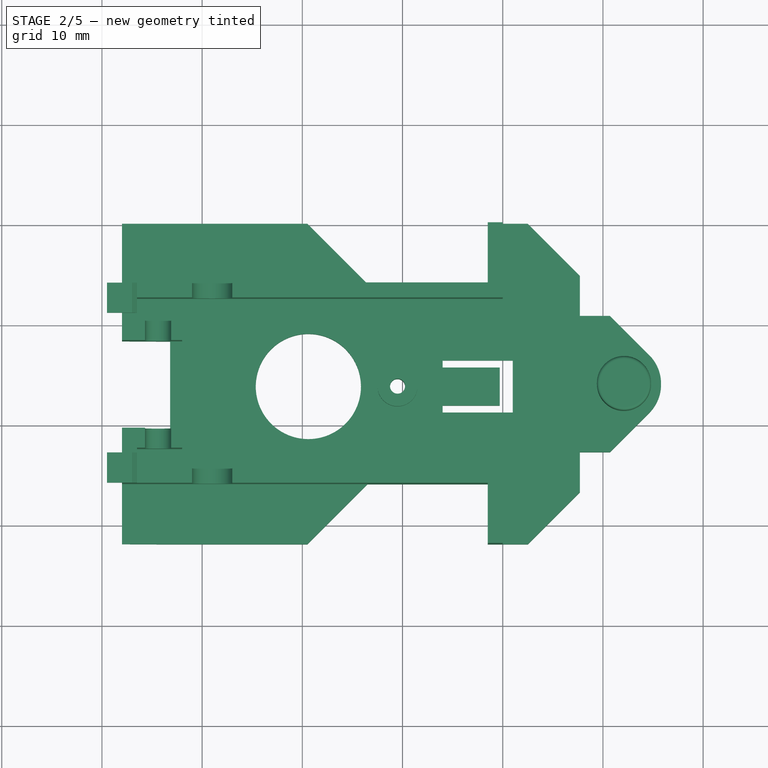
[diagram: stage 2 of 5 — top view after this stage's code; geometry added in this stage tinted green]
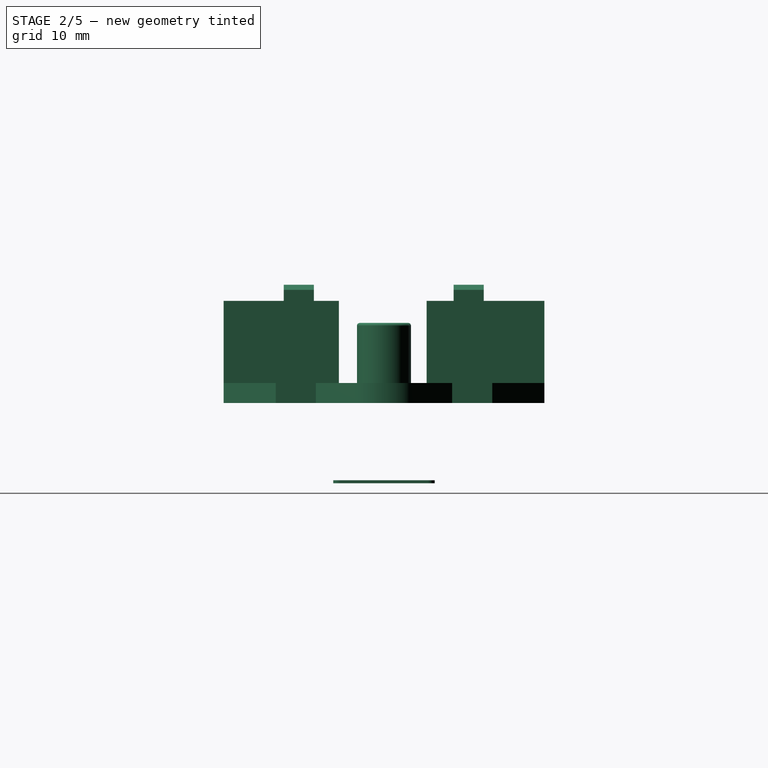
[diagram: stage 2 of 5 — right view after this stage's code; geometry added in this stage tinted green]
FEATURE [PartDesign::Body] Body008  label="Front_Cover_Stickered"
  AllowCompound = false
  BaseFeature = -> Part__Feature004
  Group = -> [BaseFeature004,Sketch015,Pocket011]
  Origin = -> Origin008
  Tip = -> Pocket011
FEATURE [PartDesign::SubShapeBinder] Binder004
  BindCopyOnChange = 0
  BindMode = 2
  ClaimChildren = false
  Context = -> Body009 [Binder004.]
  Fuse = false
  MakeFace = true
  OffsetFill = false
  OffsetIntersection = false
  OffsetJoinType = 0
  OffsetOpenResult = false
  PartialLoad = false
  Refine = true
  Relative = true
  _Version = 2
FEATURE [Sketcher::SketchObject] Sketch016
  ArcFitTolerance = 1e-06
  AttachmentSupport = -> [Binder004]
  ExternalGeometry = -> [Binder004]
  FullyConstrained = true
  MakeInternals = false
  MapMode = 5
  Placement = pos=(0,0,-17.9) rot=(1,0,0;3.14159rad)
  sketch-geometry (12):
    g0: LineSegment StartX=42.68 StartY=20.37 StartZ=0 EndX=42.68 EndY=11.63 EndZ=0
    g1: LineSegment StartX=43.38 StartY=10.93 StartZ=0 EndX=49.52 EndY=10.93 EndZ=0
    g2: LineSegment StartX=50.22 StartY=11.63 StartZ=0 EndX=50.22 EndY=20.37 EndZ=0
    g3: LineSegment StartX=49.52 StartY=21.07 StartZ=0 EndX=43.38 EndY=21.07 EndZ=0
    g4: ArcOfCircle CenterX=49.52 CenterY=11.63 CenterZ=0 NormalX=0 NormalY=0 NormalZ=1 AngleXU=0 Radius=0.7 StartAngle=4.71239 EndAngle=6.28319
    g5: GeomPoint [constr] X=50.22 Y=10.93 Z=0
    g6: ArcOfCircle CenterX=49.52 CenterY=20.37 CenterZ=0 NormalX=0 NormalY=0 NormalZ=1 AngleXU=0 Radius=0.7 StartAngle=7e-16 EndAngle=1.5708
    g7: GeomPoint [constr] X=50.22 Y=21.07 Z=0
    g8: ArcOfCircle CenterX=43.38 CenterY=20.37 CenterZ=0 NormalX=0 NormalY=0 NormalZ=1 AngleXU=0 Radius=0.7 StartAngle=1.5708 EndAngle=3.14159
    g9: GeomPoint [constr] X=42.68 Y=21.07 Z=0
    g10: ArcOfCircle CenterX=43.38 CenterY=11.63 CenterZ=0 NormalX=0 NormalY=0 NormalZ=1 AngleXU=0 Radius=0.7 StartAngle=3.14159 EndAngle=4.71239
    g11: GeomPoint [constr] X=42.68 Y=10.93 Z=0
  constraints (28):
    c: Vertical(g0)
    c: Vertical(g2)
    c: Horizontal(g1)
    c: Horizontal(g3)
    c: PointOnObject(g5,g1)
    c: PointOnObject(g5,g2)
    c: Tangent(g1,g4) = -1.5708
    c: Tangent(g2,g4) = -1.5708
    c: PointOnObject(g7,g2)
    c: PointOnObject(g7,g3)
    c: Tangent(g2,g6) = -1.5708
    c: Tangent(g3,g6) = -1.5708
    c: PointOnObject(g9,g0)
    c: PointOnObject(g9,g3)
    c: Tangent(g0,g8) = -1.5708
    c: Tangent(g3,g8) = -1.5708
    c: PointOnObject(g11,g0)
    c: PointOnObject(g11,g1)
    c: Tangent(g0,g10) = -1.5708
    c: Tangent(g1,g10) = -1.5708
    c: Radius(g10) = 0.7
    c: Radius(g4) = 0.7
    c: Radius(g6) = 0.7
    c: Radius(g8) = 0.7
    c: DistanceY(g3,g-5) = 0.08
    c: DistanceY(g-10,g1) = 0.08
    c: DistanceX(g-10,g0) = 0.08
    c: DistanceX(g2,g-8) = 0.08
FEATURE [PartDesign::Pad] Pad004
  Direction = (0,0,-1)
  Length = 0.3
  Length2 = 10
  Profile = -> Sketch016
  ReferenceAxis = -> Sketch016 [N_Axis]
  Refine = true
  Suppressed = false
  Type = 0
FEATURE [Sketcher::SketchObject] Sketch017
  ArcFitTolerance = 1e-06
  AttachmentSupport = -> [Pad004]
  ExternalGeometry = -> [Pad004]
  FullyConstrained = false
  MakeInternals = false
  MapMode = 5
  Placement = pos=(0,0,-18.2) rot=(1,0,0;3.14159rad)
  sketch-geometry (54):
    g0: LineSegment StartX=44.0949 StartY=21.07 StartZ=0 EndX=44.0949 EndY=20.442 EndZ=0
    g1: LineSegment StartX=44.0949 StartY=20.442 StartZ=0 EndX=43.6839 EndY=20.6422 EndZ=0
    g2: LineSegment StartX=43.6839 StartY=20.6422 StartZ=0 EndX=43.6839 EndY=16.9613 EndZ=0
    g3: LineSegment StartX=43.6839 StartY=16.9613 StartZ=0 EndX=44.0986 EndY=17.1528 EndZ=0
    g4: LineSegment StartX=44.0986 StartY=17.1528 StartZ=0 EndX=44.0986 EndY=10.93 EndZ=0
    g5: LineSegment StartX=44.0986 StartY=10.93 StartZ=0 EndX=44.3774 EndY=10.93 EndZ=0
    g6: LineSegment StartX=44.3774 StartY=10.93 StartZ=0 EndX=44.3774 EndY=17.2737 EndZ=0
    g7: LineSegment StartX=44.3774 StartY=17.2737 StartZ=0 EndX=45.2652 EndY=17.6837 EndZ=0
    g8: LineSegment StartX=45.2652 StartY=17.6837 StartZ=0 EndX=45.2652 EndY=10.93 EndZ=0
    g9: LineSegment StartX=45.2652 StartY=10.93 StartZ=0 EndX=45.4726 EndY=10.93 EndZ=0
    g10: LineSegment StartX=45.4726 StartY=10.93 StartZ=0 EndX=45.4726 EndY=17.7499 EndZ=0
    g11: LineSegment StartX=45.4726 StartY=17.7499 StartZ=0 EndX=45.9932 EndY=17.9903 EndZ=0
    g12: LineSegment StartX=45.9932 StartY=17.9903 StartZ=0 EndX=45.9932 EndY=12.3932 EndZ=0
    g13: LineSegment StartX=45.9932 StartY=12.3932 StartZ=0 EndX=46.6909 EndY=12.031 EndZ=0
    g14: LineSegment StartX=46.6909 StartY=12.031 StartZ=0 EndX=46.6909 EndY=18.2539 EndZ=0
    g15: LineSegment StartX=46.6909 StartY=18.2539 StartZ=0 EndX=46.9118 EndY=18.3559 EndZ=0
    g16: LineSegment StartX=46.9118 StartY=18.3559 StartZ=0 EndX=46.9118 EndY=11.9028 EndZ=0
    g17: LineSegment StartX=46.9118 StartY=11.9028 StartZ=0 EndX=47.3676 EndY=11.6663 EndZ=0
    g18: LineSegment StartX=47.3676 StartY=11.6663 StartZ=0 EndX=47.3676 EndY=18.5383 EndZ=0
    g19: LineSegment StartX=47.3676 StartY=18.5383 StartZ=0 EndX=47.5988 EndY=18.6451 EndZ=0
    g20: LineSegment StartX=47.5988 StartY=18.6451 StartZ=0 EndX=47.5988 EndY=11.5276 EndZ=0
    g21: LineSegment StartX=47.5988 StartY=11.5276 StartZ=0 EndX=48.2242 EndY=11.203 EndZ=0
    g22: LineSegment StartX=48.2242 StartY=11.203 StartZ=0 EndX=48.2242 EndY=20.75 EndZ=0
    g23: LineSegment StartX=48.2242 StartY=20.75 StartZ=0 EndX=47.605 EndY=20.4175 EndZ=0
    g24: LineSegment StartX=47.605 StartY=20.4175 StartZ=0 EndX=47.605 EndY=18.8018 EndZ=0
    g25: LineSegment StartX=47.605 StartY=18.8018 StartZ=0 EndX=47.3635 EndY=18.9194 EndZ=0
    g26: LineSegment StartX=47.3635 StartY=18.9194 StartZ=0 EndX=47.3635 EndY=20.2907 EndZ=0
    g27: LineSegment StartX=47.3635 StartY=20.2907 StartZ=0 EndX=46.9142 EndY=20.0494 EndZ=0
    g28: LineSegment StartX=46.9142 StartY=20.0494 StartZ=0 EndX=46.9142 EndY=19.1142 EndZ=0
    g29: LineSegment StartX=46.9142 StartY=19.1142 StartZ=0 EndX=46.6994 EndY=19.2188 EndZ=0
    g30: LineSegment StartX=46.6994 StartY=19.2188 StartZ=0 EndX=46.6994 EndY=19.9376 EndZ=0
    g31: LineSegment StartX=46.6994 StartY=19.9376 StartZ=0 EndX=45.9776 EndY=19.5499 EndZ=0
    g32: LineSegment StartX=45.9776 StartY=19.5499 StartZ=0 EndX=45.4777 EndY=19.7933 EndZ=0
    g33: LineSegment StartX=45.4777 StartY=19.7933 StartZ=0 EndX=45.4777 EndY=21.07 EndZ=0
    g34: LineSegment StartX=45.4777 StartY=21.07 StartZ=0 EndX=45.2793 EndY=21.07 EndZ=0
    g35: LineSegment StartX=45.2793 StartY=21.07 StartZ=0 EndX=45.2793 EndY=19.8644 EndZ=0
    g36: LineSegment StartX=45.2793 StartY=19.8644 StartZ=0 EndX=44.3764 EndY=20.3041 EndZ=0
    g37: LineSegment StartX=44.3764 StartY=20.3041 StartZ=0 EndX=44.3764 EndY=21.07 EndZ=0
    g38: LineSegment StartX=44.3764 StartY=21.07 StartZ=0 EndX=44.0949 EndY=21.07 EndZ=0
    g39: LineSegment StartX=44.0417 StartY=20.0584 StartZ=0 EndX=46.753 EndY=18.7382 EndZ=0
    g40: LineSegment StartX=46.753 StartY=18.7382 StartZ=0 EndX=44.0417 EndY=17.4863 EndZ=0
    g41: LineSegment StartX=44.0417 StartY=17.4863 StartZ=0 EndX=44.0417 EndY=20.0584 EndZ=0
    g42: LineSegment StartX=48.7478 StartY=10.93 StartZ=0 EndX=48.9864 EndY=10.93 EndZ=0
    g43: LineSegment StartX=48.9864 StartY=10.93 StartZ=0 EndX=48.9864 EndY=21.07 EndZ=0
    g44: LineSegment StartX=48.9864 StartY=21.07 StartZ=0 EndX=48.852 EndY=21.07 EndZ=0
    g45: LineSegment StartX=48.852 StartY=21.07 StartZ=0 EndX=48.4774 EndY=20.8688 EndZ=0
    g46: LineSegment StartX=48.4774 StartY=20.8688 StartZ=0 EndX=48.4774 EndY=11.0704 EndZ=0
    g47: LineSegment StartX=48.4774 StartY=11.0704 StartZ=0 EndX=48.7478 EndY=10.93 EndZ=0
    g48: LineSegment StartX=49.52 StartY=10.93 StartZ=0 EndX=49.2228 EndY=10.9295 EndZ=0
    g49: LineSegment StartX=49.2228 StartY=10.9295 StartZ=0 EndX=49.2228 EndY=21.07 EndZ=0
    g50: LineSegment StartX=49.2228 StartY=21.07 StartZ=0 EndX=49.52 EndY=21.07 EndZ=0
    g51: ArcOfCircle CenterX=49.52 CenterY=20.37 CenterZ=0 NormalX=0 NormalY=0 NormalZ=1 AngleXU=0 Radius=0.7 StartAngle=0 EndAngle=1.5708
    g52: ArcOfCircle CenterX=49.52 CenterY=11.63 CenterZ=0 NormalX=0 NormalY=0 NormalZ=1 AngleXU=0 Radius=0.7 StartAngle=4.71239 EndAngle=6.28319
    g53: LineSegment StartX=50.22 StartY=11.63 StartZ=0 EndX=50.22 EndY=20.37 EndZ=0
  constraints (110):
    c: PointOnObject(g0,g-3)
    c: Vertical(g0)
    c: Coincident(g1,g0)
    c: Coincident(g2,g1)
    c: Vertical(g2)
    c: Coincident(g3,g2)
    c: Coincident(g4,g3)
    c: PointOnObject(g4,g-6)
    c: Vertical(g4)
    c: Coincident(g5,g4)
    c: PointOnObject(g5,g-6)
    c: Coincident(g6,g5)
    c: Vertical(g6)
    c: Coincident(g7,g6)
    c: Coincident(g8,g7)
    c: PointOnObject(g8,g-6)
    c: Vertical(g8)
    c: Coincident(g9,g8)
    c: PointOnObject(g9,g-6)
    c: Coincident(g10,g9)
    c: Vertical(g10)
    c: Coincident(g11,g10)
    c: Coincident(g12,g11)
    c: Vertical(g12)
    c: Coincident(g13,g12)
    c: Coincident(g14,g13)
    c: Vertical(g14)
    c: Coincident(g15,g14)
    c: Coincident(g16,g15)
    c: Vertical(g16)
    c: Coincident(g17,g16)
    c: Coincident(g18,g17)
    c: Vertical(g18)
    c: Coincident(g19,g18)
    c: Coincident(g20,g19)
    c: Vertical(g20)
    c: Coincident(g21,g20)
    c: Coincident(g22,g21)
    c: Vertical(g22)
    c: Coincident(g23,g22)
    c: Vertical(g24)
    c: Coincident(g25,g24)
    c: Coincident(g26,g25)
    c: Vertical(g26)
    c: Coincident(g27,g26)
    c: Coincident(g28,g27)
    c: Vertical(g28)
    c: Coincident(g29,g28)
    c: Coincident(g30,g29)
    c: Vertical(g30)
    c: Coincident(g31,g30)
    c: Coincident(g32,g31)
    c: Coincident(g33,g32)
    c: Vertical(g33)
    c: PointOnObject(g34,g-3)
    c: Coincident(g35,g34)
    c: Vertical(g35)
    c: Coincident(g36,g35)
    c: Coincident(g37,g36)
    c: PointOnObject(g37,g-3)
    c: Vertical(g37)
    c: Coincident(g38,g37)
    c: Coincident(g38,g0)
    c: Coincident(g40,g39)
    c: Coincident(g41,g40)
    c: Coincident(g41,g39)
    c: Vertical(g41)
    c: Parallel(g1,g36)
    c: Parallel(g36,g32)
    c: Parallel(g32,g29)
    c: Parallel(g29,g25)
    c: Parallel(g32,g39)
    c: Parallel(g3,g7)
    c: Parallel(g7,g11)
    c: Parallel(g11,g15)
    c: Parallel(g15,g19)
    c: Parallel(g11,g40)
    c: Parallel(g31,g27)
    c: Parallel(g27,g23)
    c: PointOnObject(g42,g-6)
    c: PointOnObject(g42,g-6)
    c: Coincident(g43,g42)
    c: PointOnObject(g43,g-3)
    c: Vertical(g43)
    c: Coincident(g44,g43)
    c: PointOnObject(g44,g-3)
    c: Coincident(g45,g44)
    c: Coincident(g46,g45)
    c: Vertical(g46)
    c: Coincident(g47,g46)
    c: Coincident(g47,g42)
    c: Parallel(g23,g45)
    c: Parallel(g13,g17)
    c: Parallel(g17,g21)
    c: Parallel(g21,g47)
    c: Coincident(g49,g48)
    c: PointOnObject(g49,g-3)
    c: Vertical(g49)
    c: Coincident(g51,g50)
    c: Tangent(g51,g-7) = -1.5708
    c: Coincident(g52,g48)
    c: Tangent(g52,g-8) = -1.5708
    c: Coincident(g53,g52)
    c: Coincident(g53,g51)
    c: Coincident(g50,g-7)
    c: Coincident(g48,g-8)
    c: Coincident(g33,g34)
    c: PointOnObject(g33,g-3)
    c: Coincident(g23,g24)
    c: Coincident(g50,g49)
FEATURE [PartDesign::Pocket] Pocket012
  BaseFeature = -> Pad004
  Direction = (0,0,1)
  Length = 0.001
  Length2 = 5
  Profile = -> Sketch017
  ReferenceAxis = -> Sketch017 [N_Axis]
  Refine = true
  Suppressed = false
  Type = 0
FEATURE [PartDesign::Body] Body009  label="Sticker4"
  AllowCompound = false
  Group = -> [Binder004,Sketch016,Pad004,Sketch017,Pocket012]
  Origin = -> Origin009
  Tip = -> Pocket012
FEATURE [Part::Feature] Part__Feature005  label="Front_Torso"
  shape: bbox 55.3 x 32 x 11.8 mm, 130 faces (baked)
FEATURE [PartDesign::FeatureBase] BaseFeature005
  BaseFeature = -> Part__Feature005
  Suppressed = false
FEATURE [Image::ImagePlane] Sticker5  label="Sticker5_Pre"
  Placement = pos=(42.5,-29,0) rot=(0,0,1;1.5708rad)
  XSize = 5.9443
  YSize = 7.92134
FEATURE [Sketcher::SketchObject] Sketch018
  ArcFitTolerance = 1e-06
  AttachmentSupport = -> [BaseFeature005]
  ExternalGeometry = -> [BaseFeature005]
  FullyConstrained = true
  MakeInternals = false
  MapMode = 5
  Placement = pos=(0,0,-10.2) rot=(1,0,0;3.14159rad)
  sketch-geometry (52):
    g0: LineSegment StartX=38.75 StartY=26.45 StartZ=0 EndX=38.75 EndY=30.65 EndZ=0
    g1: LineSegment StartX=39.75 StartY=31.65 StartZ=0 EndX=42.15 EndY=31.65 EndZ=0
    g2: LineSegment StartX=42.5036 StartY=31.5036 StartZ=0 EndX=45.9536 EndY=28.0536 EndZ=0
    g3: LineSegment StartX=46.1 StartY=27.7 StartZ=0 EndX=46.1 EndY=26.45 EndZ=0
    g4: LineSegment StartX=46.1 StartY=26.45 StartZ=0 EndX=38.75 EndY=26.45 EndZ=0
    g5: ArcOfCircle CenterX=45.6 CenterY=27.7 CenterZ=0 NormalX=0 NormalY=0 NormalZ=1 AngleXU=0 Radius=0.5 StartAngle=0 EndAngle=0.785398
    g6: GeomPoint [constr] X=46.1 Y=27.9071 Z=0
    g7: ArcOfCircle CenterX=42.15 CenterY=31.15 CenterZ=0 NormalX=0 NormalY=0 NormalZ=1 AngleXU=0 Radius=0.5 StartAngle=0.785398 EndAngle=1.5708
    g8: GeomPoint [constr] X=42.3571 Y=31.65 Z=0
    g9: ArcOfCircle CenterX=39.75 CenterY=30.65 CenterZ=0 NormalX=0 NormalY=0 NormalZ=1 AngleXU=0 Radius=1 StartAngle=1.5708 EndAngle=3.14159
    g10: GeomPoint [constr] X=38.75 Y=31.65 Z=0
    g11: LineSegment StartX=38.75 StartY=1.35 StartZ=0 EndX=38.75 EndY=5.55 EndZ=0
    g12: LineSegment StartX=38.75 StartY=5.55 StartZ=0 EndX=46.1 EndY=5.55 EndZ=0
    g13: LineSegment StartX=39.75 StartY=0.35 StartZ=0 EndX=42.15 EndY=0.35 EndZ=0
    g14: LineSegment StartX=42.5036 StartY=0.496447 StartZ=0 EndX=45.9536 EndY=3.94645 EndZ=0
    g15: LineSegment StartX=46.1 StartY=4.3 StartZ=0 EndX=46.1 EndY=5.55 EndZ=0
    g16: ArcOfCircle CenterX=39.75 CenterY=1.35 CenterZ=0 NormalX=0 NormalY=0 NormalZ=1 AngleXU=0 Radius=1 StartAngle=3.14159 EndAngle=4.71239
    g17: GeomPoint [constr] X=38.75 Y=0.35 Z=0
    g18: ArcOfCircle CenterX=42.15 CenterY=0.85 CenterZ=0 NormalX=0 NormalY=0 NormalZ=1 AngleXU=0 Radius=0.5 StartAngle=4.71239 EndAngle=5.49779
    g19: GeomPoint [constr] X=42.3571 Y=0.35 Z=0
    g20: ArcOfCircle CenterX=45.6 CenterY=4.3 CenterZ=0 NormalX=0 NormalY=0 NormalZ=1 AngleXU=0 Radius=0.5 StartAngle=5.49779 EndAngle=6.28319
    g21: GeomPoint [constr] X=46.1 Y=4.09289 Z=0
    g22: LineSegment StartX=7.3 StartY=1.2 StartZ=0 EndX=7.3 EndY=7.4 EndZ=0
    g23: LineSegment StartX=7.9 StartY=8 StartZ=0 EndX=11.7 EndY=8 EndZ=0
    g24: LineSegment StartX=12.2013 StartY=7.83642 StartZ=0 EndX=16.6539 EndY=4.58453 EndZ=0
    g25: LineSegment StartX=16.9 StartY=4.1 StartZ=0 EndX=16.9 EndY=1.2 EndZ=0
    g26: LineSegment StartX=16.3 StartY=0.6 StartZ=0 EndX=7.9 EndY=0.6 EndZ=0
    g27: ArcOfCircle CenterX=7.9 CenterY=1.2 CenterZ=0 NormalX=0 NormalY=0 NormalZ=1 AngleXU=0 Radius=0.6 StartAngle=3.14159 EndAngle=4.71239
    g28: GeomPoint [constr] X=7.3 Y=0.6 Z=0
    g29: ArcOfCircle CenterX=16.3 CenterY=1.2 CenterZ=0 NormalX=0 NormalY=0 NormalZ=1 AngleXU=0 Radius=0.6 StartAngle=4.71239 EndAngle=6.28319
    g30: GeomPoint [constr] X=16.9 Y=0.6 Z=0
    g31: ArcOfCircle CenterX=16.3 CenterY=4.1 CenterZ=0 NormalX=0 NormalY=0 NormalZ=1 AngleXU=0 Radius=0.6 StartAngle=1e-16 EndAngle=0.939995
    g32: GeomPoint [constr] X=16.9 Y=4.40478 Z=0
    g33: ArcOfCircle CenterX=11.7 CenterY=7.15 CenterZ=0 NormalX=0 NormalY=0 NormalZ=1 AngleXU=0 Radius=0.85 StartAngle=0.939995 EndAngle=1.5708
    g34: GeomPoint [constr] X=11.9773 Y=8 Z=0
    g35: ArcOfCircle CenterX=7.9 CenterY=7.4 CenterZ=0 NormalX=0 NormalY=0 NormalZ=1 AngleXU=0 Radius=0.6 StartAngle=1.5708 EndAngle=3.14159
    g36: GeomPoint [constr] X=7.3 Y=8 Z=0
    g37: LineSegment StartX=7.9 StartY=31.4 StartZ=0 EndX=16.3 EndY=31.4 EndZ=0
    g38: LineSegment StartX=16.9 StartY=30.8 StartZ=0 EndX=16.9 EndY=27.9 EndZ=0
    g39: LineSegment StartX=16.6539 StartY=27.4155 StartZ=0 EndX=12.2013 EndY=24.1636 EndZ=0
    g40: LineSegment StartX=11.7 StartY=24 StartZ=0 EndX=7.9 EndY=24 EndZ=0
    g41: LineSegment StartX=7.3 StartY=24.6 StartZ=0 EndX=7.3 EndY=30.8 EndZ=0
    g42: ArcOfCircle CenterX=7.9 CenterY=30.8 CenterZ=0 NormalX=0 NormalY=0 NormalZ=1 AngleXU=0 Radius=0.6 StartAngle=1.5708 EndAngle=3.14159
    g43: GeomPoint [constr] X=7.3 Y=31.4 Z=0
    g44: ArcOfCircle CenterX=7.9 CenterY=24.6 CenterZ=0 NormalX=0 NormalY=0 NormalZ=1 AngleXU=0 Radius=0.6 StartAngle=3.14159 EndAngle=4.71239
    g45: GeomPoint [constr] X=7.3 Y=24 Z=0
    g46: ArcOfCircle CenterX=11.7 CenterY=24.85 CenterZ=0 NormalX=0 NormalY=0 NormalZ=1 AngleXU=0 Radius=0.85 StartAngle=4.71239 EndAngle=5.34319
    g47: GeomPoint [constr] X=11.9773 Y=24 Z=0
    g48: ArcOfCircle CenterX=16.3 CenterY=27.9 CenterZ=0 NormalX=0 NormalY=0 NormalZ=1 AngleXU=0 Radius=0.6 StartAngle=5.34319 EndAngle=6.28319
    g49: GeomPoint [constr] X=16.9 Y=27.5952 Z=0
    g50: ArcOfCircle CenterX=16.3 CenterY=30.8 CenterZ=0 NormalX=0 NormalY=0 NormalZ=1 AngleXU=0 Radius=0.6 StartAngle=-1.8e-15 EndAngle=1.5708
    g51: GeomPoint [constr] X=16.9 Y=31.4 Z=0
  constraints (124):
    c: Vertical(g0)
    c: Horizontal(g1)
    c: Vertical(g3)
    c: Coincident(g4,g3)
    c: Coincident(g4,g0)
    c: Horizontal(g4)
    c: Parallel(g2,g-3)
    c: PointOnObject(g6,g2)
    c: PointOnObject(g6,g3)
    c: Tangent(g2,g5) = 1.5708
    c: Tangent(g3,g5) = 1.5708
    c: PointOnObject(g8,g1)
    c: PointOnObject(g8,g2)
    c: Tangent(g1,g7) = 1.5708
    c: Tangent(g2,g7) = 1.5708
    c: PointOnObject(g10,g0)
    c: PointOnObject(g10,g1)
    c: Tangent(g0,g9) = 1.5708
    c: Tangent(g1,g9) = 1.5708
    c: Radius(g9) = 1
    c: DistanceY(g1,g-5) = 0.35
    c: DistanceX(g-5,g0) = 0.25
    c: DistanceY(g0,g0) = 4.2
    c: DistanceX(g4,g4) = 7.35
    c: Radius(g5) = 0.5
    c: DistanceY(g3,g3) = 1.25
    c: Radius(g7) = 0.5
    c: Vertical(g11)
    c: Coincident(g12,g11)
    c: Horizontal(g12)
    c: Horizontal(g13)
    c: Coincident(g15,g12)
    c: Vertical(g15)
    c: PointOnObject(g17,g11)
    c: PointOnObject(g17,g13)
    c: Tangent(g11,g16) = 1.5708
    c: Tangent(g13,g16) = -1.5708
    c: PointOnObject(g19,g13)
    c: PointOnObject(g19,g14)
    c: Tangent(g13,g18) = -1.5708
    c: Tangent(g14,g18) = -1.5708
    c: PointOnObject(g21,g14)
    c: PointOnObject(g21,g15)
    c: Tangent(g14,g20) = -1.5708
    c: Tangent(g15,g20) = -1.5708
    c: Radius(g16) = 1
    c: Radius(g18) = 0.5
    c: Radius(g20) = 0.5
    c: DistanceY(g-9,g13) = 0.35
    c: DistanceX(g-9,g11) = 0.25
    c: DistanceY(g11,g11) = 4.2
    c: Parallel(g-7,g14)
    c: DistanceY(g15,g15) = 1.25
    c: DistanceX(g12,g12) = 7.35
    c: Vertical(g22)
    c: Horizontal(g23)
    c: Vertical(g25)
    c: Horizontal(g26)
    c: PointOnObject(g28,g22)
    c: PointOnObject(g28,g26)
    c: Tangent(g22,g27) = 1.5708
    c: Tangent(g26,g27) = 1.5708
    c: PointOnObject(g30,g25)
    c: PointOnObject(g30,g26)
    c: Tangent(g25,g29) = 1.5708
    c: Tangent(g26,g29) = 1.5708
    c: PointOnObject(g32,g24)
    c: PointOnObject(g32,g25)
    c: Tangent(g24,g31) = 1.5708
    c: Tangent(g25,g31) = 1.5708
    c: PointOnObject(g34,g23)
    c: PointOnObject(g34,g24)
    c: Tangent(g23,g33) = 1.5708
    c: Tangent(g24,g33) = 1.5708
    c: PointOnObject(g36,g22)
    c: PointOnObject(g36,g23)
    c: Tangent(g22,g35) = 1.5708
    c: Tangent(g23,g35) = 1.5708
    c: Radius(g35) = 0.6
    c: Radius(g33) = 0.85
    c: Radius(g31) = 0.6
    c: Radius(g29) = 0.6
    c: Radius(g27) = 0.6
    c: DistanceY(g-11,g26) = 0.6
    c: DistanceX(g-11,g22) = 0.5
    c: DistanceX(g26,g26) = 8.4
    c: DistanceY(g22,g22) = 6.2
    c: DistanceY(g25,g25) = 2.9
    c: DistanceX(g23,g23) = 3.8
    c: Horizontal(g37)
    c: Vertical(g38)
    c: Horizontal(g40)
    c: Vertical(g41)
    c: PointOnObject(g43,g37)
    c: PointOnObject(g43,g41)
    c: Tangent(g37,g42) = 1.5708
    c: Tangent(g41,g42) = 1.5708
    c: PointOnObject(g45,g40)
    c: PointOnObject(g45,g41)
    c: Tangent(g40,g44) = 1.5708
    c: Tangent(g41,g44) = 1.5708
    c: PointOnObject(g47,g39)
    c: PointOnObject(g47,g40)
    c: Tangent(g39,g46) = 1.5708
    c: Tangent(g40,g46) = 1.5708
    c: PointOnObject(g49,g38)
    c: PointOnObject(g49,g39)
    c: Tangent(g38,g48) = 1.5708
    c: Tangent(g39,g48) = 1.5708
    c: PointOnObject(g51,g37)
    c: PointOnObject(g51,g38)
    c: Tangent(g37,g50) = 1.5708
    c: Tangent(g38,g50) = 1.5708
    c: Radius(g44) = 0.6
    c: Radius(g42) = 0.6
    c: Radius(g50) = 0.6
    c: Radius(g48) = 0.6
    c: Radius(g46) = 0.85
    c: DistanceX(g-13,g41) = 0.5
    c: DistanceY(g37,g-13) = 0.6
    c: DistanceY(g41,g41) = 6.2
    c: DistanceY(g38,g38) = 2.9
    c: DistanceX(g37,g37) = 8.4
    c: DistanceX(g40,g40) = 3.8
FEATURE [Image::ImagePlane] Sticker6  label="Sticker6_Pre"
  Placement = pos=(12.2,-4.2,1.5e-15) rot=(0.707107,0.707107,0;3.14159rad)
  XSize = 7.93301
  YSize = 10.1318
FEATURE [Image::ImagePlane] Sticker7  label="Sticker7_Pre"
  Placement = pos=(12.05,-27.7,1.5e-15) rot=(0.707107,0.707107,0;3.14159rad)
  XSize = 7.91272
  YSize = 10.1699
FEATURE [PartDesign::Pocket] Pocket013
  BaseFeature = -> BaseFeature005
  Direction = (0,0,1)
  Length = 0.3
  Length2 = 5
  Profile = -> Sketch018
  ReferenceAxis = -> Sketch018 [N_Axis]
  Refine = true
  Suppressed = false
  Type = 0
FEATURE [PartDesign::Body] Body010  label="Front_Torso_Stickered"
  AllowCompound = false
  BaseFeature = -> Part__Feature005
  Group = -> [BaseFeature005,Sketch018,Pocket013]
  Origin = -> Origin010
  Tip = -> Pocket013
FEATURE [PartDesign::SubShapeBinder] Binder005
  BindCopyOnChange = 0
  BindMode = 2
  ClaimChildren = false
  Context = -> Body011 [Binder005.]
  Fuse = false
  MakeFace = true
  OffsetFill = false
  OffsetIntersection = false
  OffsetJoinType = 0
  OffsetOpenResult = false
  PartialLoad = false
  Refine = true
  Relative = true
  _Version = 2
FEATURE [Sketcher::SketchObject] Sketch019
  ArcFitTolerance = 1e-06
  AttachmentSupport = -> [Binder005]
  ExternalGeometry = -> [Binder005]
  FullyConstrained = true
  MakeInternals = false
  MapMode = 5
  Placement = pos=(0,0,-9.9) rot=(1,0,0;3.14159rad)
  sketch-geometry (12):
    g0: LineSegment StartX=38.83 StartY=30.57 StartZ=0 EndX=38.83 EndY=26.53 EndZ=0
    g1: LineSegment StartX=38.83 StartY=26.53 StartZ=0 EndX=46.02 EndY=26.53 EndZ=0
    g2: LineSegment StartX=46.02 StartY=26.53 StartZ=0 EndX=46.02 EndY=27.6669 EndZ=0
    g3: LineSegment StartX=45.8736 StartY=28.0204 StartZ=0 EndX=42.4704 EndY=31.4236 EndZ=0
    g4: LineSegment StartX=39.83 StartY=31.57 StartZ=0 EndX=42.1169 EndY=31.57 EndZ=0
    g5: ArcOfCircle CenterX=42.1169 CenterY=31.07 CenterZ=0 NormalX=0 NormalY=0 NormalZ=1 AngleXU=0 Radius=0.5 StartAngle=0.785398 EndAngle=1.5708
    g6: GeomPoint [constr] X=42.324 Y=31.57 Z=0
    g7: ArcOfCircle CenterX=39.83 CenterY=30.57 CenterZ=0 NormalX=0 NormalY=0 NormalZ=1 AngleXU=0 Radius=1 StartAngle=1.5708 EndAngle=3.14159
    g8: GeomPoint [constr] X=38.83 Y=31.57 Z=0
    g9: ArcOfCircle CenterX=45.52 CenterY=27.6669 CenterZ=0 NormalX=0 NormalY=0 NormalZ=1 AngleXU=0 Radius=0.5 StartAngle=2.4e-15 EndAngle=0.785398
    g10: GeomPoint [constr] X=46.02 Y=27.874 Z=0
    g11: LineSegment [constr] StartX=42.7581 StartY=31.249 StartZ=0 EndX=42.7015 EndY=31.1924 EndZ=0
  constraints (34):
    c: Vertical(g0)
    c: Coincident(g1,g0)
    c: Horizontal(g1)
    c: Coincident(g2,g1)
    c: Vertical(g2)
    c: Horizontal(g4)
    c: PointOnObject(g6,g3)
    c: PointOnObject(g6,g4)
    c: Tangent(g3,g5) = -1.5708
    c: Tangent(g4,g5) = 1.5708
    c: PointOnObject(g8,g0)
    c: PointOnObject(g8,g4)
    c: Tangent(g0,g7) = -1.5708
    c: Tangent(g4,g7) = 1.5708
    c: PointOnObject(g10,g2)
    c: PointOnObject(g10,g3)
    c: Tangent(g2,g9) = -1.5708
    c: Tangent(g3,g9) = -1.5708
    c: Radius(g-7) = 0.5
    c: Radius(g-10) = 0.5
    c: Radius(g-5) = 1
    c: Radius(g7) = 1
    c: Radius(g5) = 0.5
    c: Radius(g9) = 0.5
    c: Parallel(g-3,g3)
    c: DistanceX(g1,g-9) = 0.08
    c: DistanceY(g-9,g1) = 0.08
    c: DistanceX(g-8,g0) = 0.08
    c: DistanceY(g4,g-6) = 0.08
    c: PointOnObject(g11,g-3)
    c: PointOnObject(g11,g3)
    c: Perpendicular(g11,g-3)
    c: Distance(g11) = 0.08
    c: Distance(g-7,g11) = 0.36
FEATURE [PartDesign::Pad] Pad005
  Direction = (0,0,-1)
  Length = 0.3
  Length2 = 10
  Profile = -> Sketch019
  ReferenceAxis = -> Sketch019 [N_Axis]
  Refine = true
  Suppressed = false
  Type = 0
FEATURE [Sketcher::SketchObject] Sketch020
  ArcFitTolerance = 1e-06
  AttachmentSupport = -> [Pad005]
  ExternalGeometry = -> [Pad005]
  FullyConstrained = false
  MakeInternals = false
  MapMode = 5
  Placement = pos=(0,0,-10.2) rot=(1,0,0;3.14159rad)
  sketch-geometry (4):
    g0: LineSegment StartX=38.83 StartY=29.5688 StartZ=0 EndX=42.6476 EndY=26.53 EndZ=0
    g1: LineSegment StartX=42.6476 StartY=26.53 StartZ=0 EndX=44.3494 EndY=26.53 EndZ=0
    g2: LineSegment StartX=44.3494 StartY=26.53 StartZ=0 EndX=38.83 EndY=30.8352 EndZ=0
    g3: LineSegment StartX=38.83 StartY=29.5688 StartZ=0 EndX=38.83 EndY=30.8352 EndZ=0
  constraints (8):
    c: PointOnObject(g0,g-3)
    c: PointOnObject(g0,g-5)
    c: Coincident(g1,g0)
    c: PointOnObject(g1,g-5)
    c: Coincident(g2,g1)
    c: Coincident(g3,g0)
    c: Coincident(g3,g2)
    c: Vertical(g3)
FEATURE [PartDesign::Pocket] Pocket014
  BaseFeature = -> Pad005
  Direction = (0,0,1)
  Length = 0.001
  Length2 = 5
  Profile = -> Sketch020
  ReferenceAxis = -> Sketch020 [N_Axis]
  Refine = true
  Suppressed = false
  Type = 0
FEATURE [Sketcher::SketchObject] Sketch023
  ArcFitTolerance = 1e-06
  AttachmentSupport = -> [Pocket015]
  ExternalGeometry = -> [Pocket015]
  FullyConstrained = false
  MakeInternals = false
  MapMode = 5
  Placement = pos=(0,0,-10.199) rot=(1,0,0;3.14159rad)
  sketch-geometry (67):
    g0: LineSegment StartX=15.2383 StartY=4.39812 StartZ=0 EndX=15.2383 EndY=1.8474 EndZ=0
    g1: LineSegment StartX=15.2383 StartY=1.8474 StartZ=0 EndX=15.6032 EndY=1.8474 EndZ=0
    g2: LineSegment StartX=15.6032 StartY=1.8474 StartZ=0 EndX=15.6032 EndY=4.13161 EndZ=0
    g3: LineSegment StartX=15.6032 StartY=4.13161 StartZ=0 EndX=15.2383 EndY=4.39812 EndZ=0
    g4: LineSegment StartX=14.9883 StartY=4.5807 StartZ=0 EndX=14.9883 EndY=1.8474 EndZ=0
    g5: LineSegment StartX=14.9883 StartY=1.8474 StartZ=0 EndX=14.746 EndY=1.8474 EndZ=0
    g6: LineSegment StartX=14.746 StartY=1.8474 StartZ=0 EndX=14.746 EndY=4.75764 EndZ=0
    g7: LineSegment StartX=14.9883 StartY=4.5807 StartZ=0 EndX=14.746 EndY=4.75764 EndZ=0
    g8: LineSegment StartX=14.496 StartY=4.94022 StartZ=0 EndX=14.496 EndY=1.8474 EndZ=0
    g9: LineSegment StartX=14.496 StartY=1.8474 StartZ=0 EndX=13.9361 EndY=1.8474 EndZ=0
    g10: LineSegment StartX=13.9361 StartY=1.8474 StartZ=0 EndX=13.9361 EndY=5.34918 EndZ=0
    g11: LineSegment StartX=14.496 StartY=4.94022 StartZ=0 EndX=13.9361 EndY=5.34918 EndZ=0
    g12: LineSegment [constr] StartX=15.2383 StartY=1.8474 StartZ=0 EndX=14.9883 EndY=1.8474 EndZ=0
    g13: LineSegment [constr] StartX=14.746 StartY=1.8474 StartZ=0 EndX=14.496 EndY=1.8474 EndZ=0
    g14: LineSegment StartX=13.6861 StartY=5.53177 StartZ=0 EndX=13.6861 EndY=1.8474 EndZ=0
    g15: LineSegment StartX=13.6861 StartY=1.8474 StartZ=0 EndX=13.4438 EndY=1.8474 EndZ=0
    g16: LineSegment StartX=13.4438 StartY=1.8474 StartZ=0 EndX=13.4438 EndY=5.70871 EndZ=0
    g17: LineSegment StartX=13.4438 StartY=5.70871 StartZ=0 EndX=13.6861 EndY=5.53177 EndZ=0
    g18: LineSegment StartX=13.1938 StartY=5.89129 StartZ=0 EndX=13.1938 EndY=1.8474 EndZ=0
    g19: LineSegment StartX=13.1938 StartY=1.8474 StartZ=0 EndX=12.6819 EndY=1.8474 EndZ=0
    g20: LineSegment StartX=12.6819 StartY=1.8474 StartZ=0 EndX=12.6819 EndY=6.26517 EndZ=0
    g21: LineSegment StartX=12.6819 StartY=6.26517 StartZ=0 EndX=13.1938 EndY=5.89129 EndZ=0
    g22: LineSegment StartX=12.4319 StartY=6.44776 StartZ=0 EndX=12.4319 EndY=1.8474 EndZ=0
    g23: LineSegment StartX=12.4319 StartY=1.8474 StartZ=0 EndX=12.1319 EndY=1.8474 EndZ=0
    g24: LineSegment StartX=12.1319 StartY=1.8474 StartZ=0 EndX=12.1319 EndY=6.66686 EndZ=0
    g25: LineSegment StartX=12.1319 StartY=6.66686 StartZ=0 EndX=12.4319 EndY=6.44776 EndZ=0
    g26: LineSegment StartX=11.3814 StartY=6.84945 StartZ=0 EndX=11.3814 EndY=1.8474 EndZ=0
    g27: LineSegment StartX=11.3814 StartY=1.8474 StartZ=0 EndX=11.8819 EndY=1.8474 EndZ=0
    g28: LineSegment StartX=11.8819 StartY=1.8474 StartZ=0 EndX=11.8819 EndY=6.84945 EndZ=0
    g29: LineSegment StartX=11.8819 StartY=6.84945 StartZ=0 EndX=11.3814 EndY=6.84945 EndZ=0
    g30: LineSegment StartX=11.1314 StartY=1.8474 StartZ=0 EndX=11.1314 EndY=6.84945 EndZ=0
    g31: LineSegment StartX=11.1314 StartY=6.84945 StartZ=0 EndX=10.8814 EndY=6.84945 EndZ=0
    g32: LineSegment StartX=10.8814 StartY=6.84945 StartZ=0 EndX=10.8814 EndY=1.8474 EndZ=0
    g33: LineSegment StartX=10.8814 StartY=1.8474 StartZ=0 EndX=11.1314 EndY=1.8474 EndZ=0
    g34: LineSegment StartX=10.6314 StartY=6.84945 StartZ=0 EndX=10.1696 EndY=6.84945 EndZ=0
    g35: LineSegment StartX=10.1696 StartY=6.84945 StartZ=0 EndX=10.1696 EndY=1.8474 EndZ=0
    g36: LineSegment StartX=10.1696 StartY=1.8474 StartZ=0 EndX=10.6314 EndY=1.8474 EndZ=0
    g37: LineSegment StartX=10.6314 StartY=1.8474 StartZ=0 EndX=10.6314 EndY=6.84945 EndZ=0
    g38: LineSegment StartX=9.91961 StartY=1.8474 StartZ=0 EndX=9.91961 EndY=6.84945 EndZ=0
    g39: LineSegment StartX=9.91961 StartY=6.84945 StartZ=0 EndX=9.66961 EndY=6.84945 EndZ=0
    g40: LineSegment StartX=9.66961 StartY=6.84945 StartZ=0 EndX=9.66961 EndY=1.8474 EndZ=0
    g41: LineSegment StartX=9.66961 StartY=1.8474 StartZ=0 EndX=9.91961 EndY=1.8474 EndZ=0
    g42: LineSegment StartX=9.41961 StartY=6.84945 StartZ=0 EndX=9.41961 EndY=1.8474 EndZ=0
    g43: LineSegment StartX=9.41961 StartY=1.8474 StartZ=0 EndX=9.08269 EndY=1.8474 EndZ=0
    g44: ArcOfCircle CenterX=9.08273 CenterY=2.14249 CenterZ=0 NormalX=0 NormalY=0 NormalZ=1 AngleXU=0 Radius=0.295086 StartAngle=3.07857 EndAngle=4.71227
    g45: LineSegment StartX=8.78823 StartY=2.16107 StartZ=0 EndX=8.78823 EndY=6.62565 EndZ=0
    g46: ArcOfCircle CenterX=9.10948 CenterY=6.51194 CenterZ=0 NormalX=0 NormalY=0 NormalZ=1 AngleXU=0 Radius=0.340786 StartAngle=1.70965 EndAngle=2.80139
    g47: LineSegment StartX=9.06231 StartY=6.84945 StartZ=0 EndX=9.41961 EndY=6.84945 EndZ=0
    g48: LineSegment [constr] StartX=11.3814 StartY=6.84945 StartZ=0 EndX=11.1314 EndY=6.84945 EndZ=0
    g49: LineSegment [constr] StartX=10.8814 StartY=6.84945 StartZ=0 EndX=10.6314 EndY=6.84945 EndZ=0
    g50: LineSegment [constr] StartX=10.1696 StartY=6.84945 StartZ=0 EndX=9.91961 EndY=6.84945 EndZ=0
    g51: LineSegment [constr] StartX=9.66961 StartY=6.84945 StartZ=0 EndX=9.41961 EndY=6.84945 EndZ=0
    g52: LineSegment [constr] StartX=9.41961 StartY=1.8474 StartZ=0 EndX=9.66961 EndY=1.8474 EndZ=0
    g53: LineSegment [constr] StartX=9.91961 StartY=1.8474 StartZ=0 EndX=10.1696 EndY=1.8474 EndZ=0
    g54: LineSegment [constr] StartX=10.6314 StartY=1.8474 StartZ=0 EndX=10.8814 EndY=1.8474 EndZ=0
    g55: LineSegment [constr] StartX=11.1314 StartY=1.8474 StartZ=0 EndX=11.3814 EndY=1.8474 EndZ=0
    g56: LineSegment [constr] StartX=11.8819 StartY=1.8474 StartZ=0 EndX=12.1319 EndY=1.8474 EndZ=0
    g57: LineSegment [constr] StartX=12.4319 StartY=1.8474 StartZ=0 EndX=12.6819 EndY=1.8474 EndZ=0
    g58: LineSegment [constr] StartX=13.1938 StartY=1.8474 StartZ=0 EndX=13.4438 EndY=1.8474 EndZ=0
    g59: LineSegment [constr] StartX=13.6861 StartY=1.8474 StartZ=0 EndX=13.9361 EndY=1.8474 EndZ=0
    g60: LineSegment [constr] StartX=15.2383 StartY=4.39812 StartZ=0 EndX=14.9883 EndY=4.5807 EndZ=0
    g61: LineSegment [constr] StartX=14.746 StartY=4.75764 StartZ=0 EndX=14.496 EndY=4.94022 EndZ=0
    g62: LineSegment [constr] StartX=13.9361 StartY=5.34918 StartZ=0 EndX=13.6861 EndY=5.53177 EndZ=0
    g63: LineSegment [constr] StartX=13.4438 StartY=5.70871 StartZ=0 EndX=13.1938 EndY=5.89129 EndZ=0
    g64: LineSegment [constr] StartX=12.6819 StartY=6.26517 StartZ=0 EndX=12.4319 EndY=6.44776 EndZ=0
    g65: LineSegment [constr] StartX=11.8819 StartY=6.84945 StartZ=0 EndX=12.1319 EndY=6.66686 EndZ=0
    g66: LineSegment [constr] StartX=15.4207 StartY=4.26486 StartZ=0 EndX=15.5682 EndY=4.46675 EndZ=0
  constraints (173):
    c: Vertical(g0)
    c: Coincident(g1,g0)
    c: Horizontal(g1)
    c: Coincident(g2,g1)
    c: Vertical(g2)
    c: Coincident(g3,g0)
    c: Vertical(g4)
    c: Coincident(g5,g4)
    c: Horizontal(g5)
    c: Coincident(g6,g5)
    c: Vertical(g6)
    c: Coincident(g7,g4)
    c: Coincident(g7,g6)
    c: Vertical(g8)
    c: Coincident(g9,g8)
    c: Coincident(g10,g9)
    c: Vertical(g10)
    c: Coincident(g11,g8)
    c: Coincident(g11,g10)
    c: DistanceX(g2,g-6) = 0.25
    c: DistanceY(g-4,g0) = 0.25
    c: DistanceX(g4,g0) = 0.25
    c: Horizontal(g9)
    c: Coincident(g12,g0)
    c: Coincident(g12,g4)
    c: Horizontal(g12)
    c: Coincident(g13,g5)
    c: Coincident(g13,g8)
    c: Horizontal(g13)
    c: Parallel(g-7,g3)
    c: Parallel(g3,g7)
    c: Parallel(g11,g-7)
    c: Vertical(g14)
    c: Coincident(g15,g14)
    c: Coincident(g16,g15)
    c: Vertical(g16)
    c: Coincident(g17,g16)
    c: Coincident(g17,g14)
    c: Vertical(g18)
    c: Coincident(g19,g18)
    c: Horizontal(g19)
    c: Coincident(g20,g19)
    c: Vertical(g20)
    c: Coincident(g21,g20)
    c: Coincident(g21,g18)
    c: Vertical(g22)
    c: Coincident(g23,g22)
    c: Horizontal(g23)
    c: Coincident(g24,g23)
    c: Vertical(g24)
    c: Coincident(g25,g24)
    c: Coincident(g25,g22)
    c: Coincident(g26,g27)
    c: Coincident(g27,g28)
    c: Coincident(g28,g29)
    c: Coincident(g29,g26)
    c: Vertical(g26)
    c: Vertical(g28)
    c: Horizontal(g27)
    c: Horizontal(g29)
    c: Coincident(g30,g31)
    c: Coincident(g31,g32)
    c: Coincident(g32,g33)
    c: Coincident(g33,g30)
    c: Vertical(g30)
    c: Vertical(g32)
    c: Horizontal(g31)
    c: Horizontal(g33)
    c: Coincident(g34,g35)
    c: Coincident(g35,g36)
    c: Coincident(g36,g37)
    c: Coincident(g37,g34)
    c: Horizontal(g34)
    c: Horizontal(g36)
    c: Vertical(g35)
    c: Vertical(g37)
    c: Coincident(g38,g39)
    c: Coincident(g39,g40)
    c: Coincident(g40,g41)
    c: Coincident(g41,g38)
    c: Vertical(g38)
    c: Vertical(g40)
    c: Horizontal(g39)
    c: Horizontal(g41)
    c: Vertical(g42)
    c: Coincident(g43,g42)
    c: Horizontal(g43)
    c: Coincident(g44,g43)
    c: Coincident(g45,g44)
    c: Vertical(g45)
    c: Coincident(g47,g46)
    c: Coincident(g47,g42)
    c: Horizontal(g47)
    c: DistanceY(g28,g-7) = 0.25
    c: Coincident(g48,g26)
    c: Coincident(g48,g30)
    c: Coincident(g49,g31)
    c: Coincident(g49,g34)
    c: Coincident(g50,g34)
    c: Coincident(g50,g38)
    c: Coincident(g51,g39)
    c: Coincident(g51,g42)
    c: Coincident(g52,g42)
    c: Coincident(g52,g40)
    c: Coincident(g53,g38)
    c: Coincident(g53,g35)
    c: Horizontal(g53)
    c: Coincident(g54,g36)
    c: Coincident(g54,g32)
    c: Coincident(g55,g30)
    c: Coincident(g55,g26)
    c: Coincident(g56,g27)
    c: Coincident(g56,g23)
    c: Horizontal(g56)
    c: Coincident(g57,g22)
    c: Coincident(g57,g19)
    c: Coincident(g58,g18)
    c: Coincident(g58,g15)
    c: Horizontal(g58)
    c: Coincident(g59,g14)
    c: Coincident(g59,g9)
    c: Horizontal(g15)
    c: Horizontal(g59)
    c: Horizontal(g57)
    c: Horizontal(g55)
    c: Horizontal(g54)
    c: Horizontal(g52)
    c: Horizontal(g51)
    c: Horizontal(g50)
    c: Horizontal(g49)
    c: Horizontal(g48)
    c: Coincident(g60,g0)
    c: Coincident(g60,g4)
    c: Coincident(g61,g6)
    c: Coincident(g61,g8)
    c: Coincident(g62,g10)
    c: Coincident(g62,g14)
    c: Coincident(g63,g16)
    c: Coincident(g63,g18)
    c: Coincident(g64,g20)
    c: Coincident(g64,g22)
    c: Coincident(g65,g28)
    c: Coincident(g65,g24)
    c: Parallel(g-7,g65)
    c: Parallel(g-7,g25)
    c: Parallel(g-7,g64)
    c: Parallel(g-7,g21)
    c: Parallel(g-7,g63)
    c: Parallel(g-7,g17)
    c: Parallel(g-7,g62)
    c: Parallel(g-7,g61)
    c: Parallel(g-7,g60)
    c: DistanceX(g-5,g44) = 0.25
    c: DistanceX(g13,g13) = 0.25
    c: DistanceX(g59,g59) = 0.25
    c: DistanceX(g58,g58) = 0.25
    c: DistanceX(g57,g57) = 0.25
    c: DistanceX(g56,g56) = 0.25
    c: DistanceX(g55,g55) = 0.25
    c: DistanceX(g54,g54) = 0.25
    c: DistanceX(g53,g53) = 0.25
    c: DistanceX(g52,g52) = 0.25
    c: Symmetric(g3,g3,g66)
    c: PointOnObject(g66,g-7)
    c: Perpendicular(g66,g-7)
    c: Distance(g66) = 0.25
    c: Distance(g7) = 0.3
    c: DistanceX(g31,g31) = 0.25
    c: DistanceX(g25,g25) = 0.3
    c: Distance(g17) = 0.3
    c: DistanceX(g39,g39) = 0.25
    c: Coincident(g46,g45)
    c: Coincident(g3,g2)
FEATURE [PartDesign::Pocket] Pocket016
  BaseFeature = -> Pocket015
  Direction = (0,0,1)
  Length = 0.001
  Length2 = 5
  Profile = -> Sketch023
  ReferenceAxis = -> Sketch023 [N_Axis]
  Refine = true
  Suppressed = false
  Type = 0
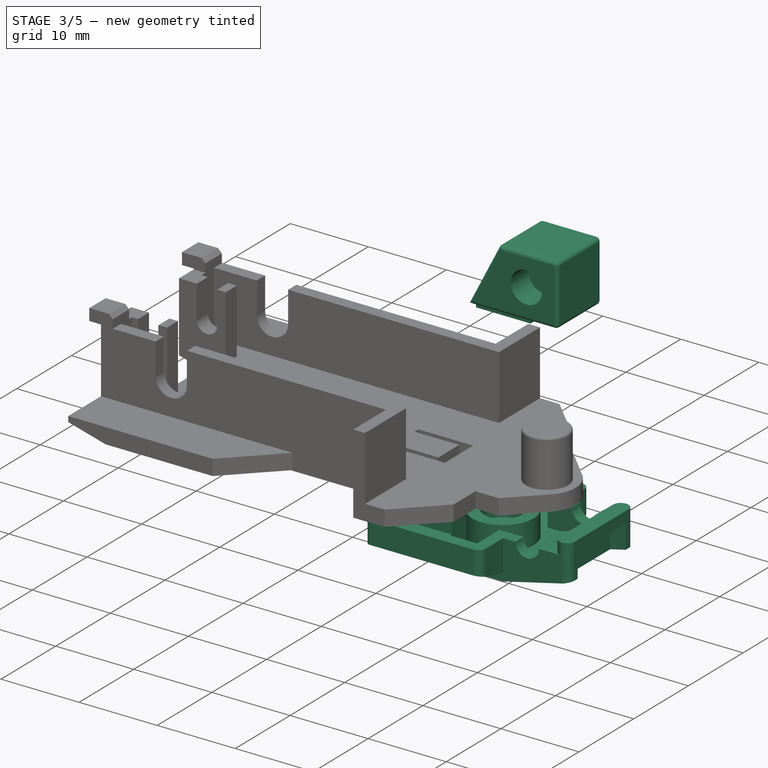
[diagram: stage 3 of 5 — iso view after this stage's code; geometry added in this stage tinted green]
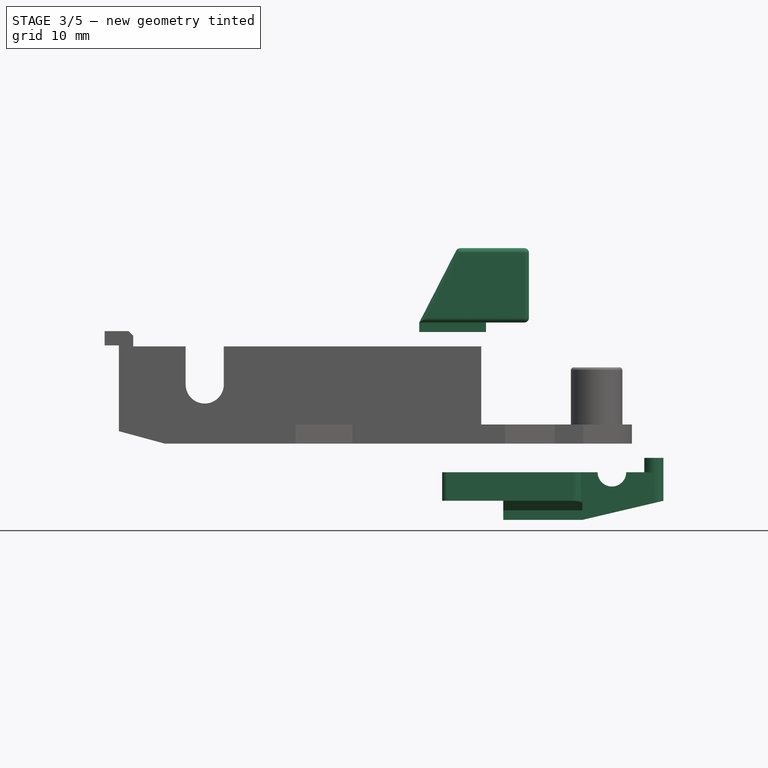
[diagram: stage 3 of 5 — front view after this stage's code; geometry added in this stage tinted green]
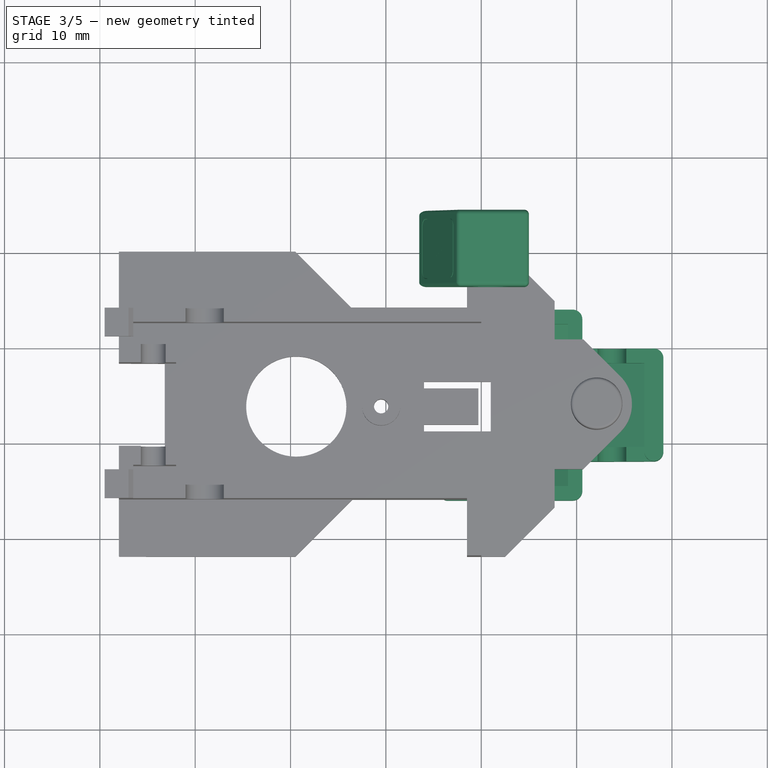
[diagram: stage 3 of 5 — top view after this stage's code; geometry added in this stage tinted green]
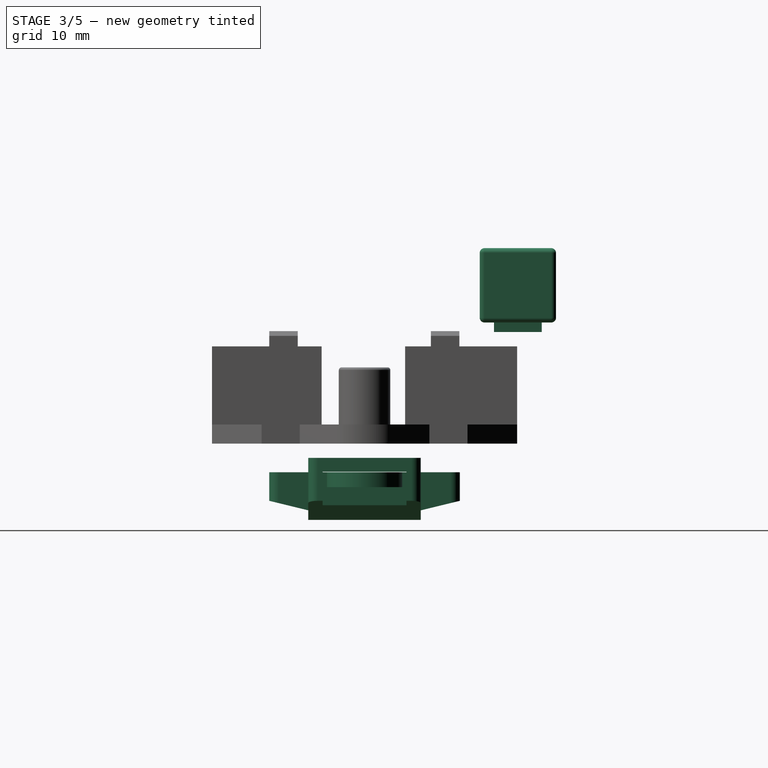
[diagram: stage 3 of 5 — right view after this stage's code; geometry added in this stage tinted green]
FEATURE [PartDesign::Body] Body005  label="Rear_Torso_Stickered"
  AllowCompound = false
  BaseFeature = -> Part__Feature002
  Group = -> [BaseFeature002,Sketch010,Pocket007]
  Origin = -> Origin005
  Tip = -> Pocket007
FEATURE [Part::Feature] Part__Feature003  label="Left_Foot"
  shape: bbox 11.5 x 8 x 8.8 mm, 34 faces (baked)
FEATURE [PartDesign::FeatureBase] BaseFeature003
  BaseFeature = -> Part__Feature003
  Suppressed = false
FEATURE [Image::ImagePlane] Sticker3  label="Sticker3_Pre"
  Placement = pos=(48.5965,0.0999838,-0.532312) rot=(0.46,0.46,-0.76;4.43715rad)
  XSize = 6.77097
  YSize = 7.55277
FEATURE [Sketcher::SketchObject] Sketch011
  ArcFitTolerance = 1e-06
  AttachmentSupport = -> [BaseFeature003]
  ExternalGeometry = -> [BaseFeature003]
  FullyConstrained = true
  MakeInternals = false
  MapMode = 5
  Placement = pos=(25.5094,-2.9e-15,-13.0817) rot=(0.462319,-0.462319,-0.756652;1.8461rad)
  sketch-geometry (12):
    g0: LineSegment StartX=-3.22971 StartY=24.5215 StartZ=0 EndX=-3.22971 EndY=18.9612 EndZ=0
    g1: LineSegment StartX=-2.42971 StartY=18.1612 StartZ=0 EndX=2.27029 EndY=18.1612 EndZ=0
    g2: LineSegment StartX=3.07029 StartY=18.9612 StartZ=0 EndX=3.07029 EndY=24.5215 EndZ=0
    g3: LineSegment StartX=2.27029 StartY=25.3215 StartZ=0 EndX=-2.42971 EndY=25.3215 EndZ=0
    g4: ArcOfCircle CenterX=2.27029 CenterY=24.5215 CenterZ=0 NormalX=0 NormalY=0 NormalZ=1 AngleXU=0 Radius=0.8 StartAngle=0 EndAngle=1.5708
    g5: GeomPoint [constr] X=3.07029 Y=25.3215 Z=0
    g6: ArcOfCircle CenterX=2.27029 CenterY=18.9612 CenterZ=0 NormalX=0 NormalY=0 NormalZ=1 AngleXU=0 Radius=0.8 StartAngle=4.71239 EndAngle=6.28319
    g7: GeomPoint [constr] X=3.07029 Y=18.1612 Z=0
    g8: ArcOfCircle CenterX=-2.42971 CenterY=18.9612 CenterZ=0 NormalX=0 NormalY=0 NormalZ=1 AngleXU=0 Radius=0.8 StartAngle=3.14159 EndAngle=4.71239
    g9: GeomPoint [constr] X=-3.22971 Y=18.1612 Z=0
    g10: ArcOfCircle CenterX=-2.42971 CenterY=24.5215 CenterZ=0 NormalX=0 NormalY=0 NormalZ=1 AngleXU=0 Radius=0.8 StartAngle=1.5708 EndAngle=3.14159
    g11: GeomPoint [constr] X=-3.22971 Y=25.3215 Z=0
  constraints (28):
    c: Vertical(g0)
    c: Vertical(g2)
    c: Horizontal(g1)
    c: Horizontal(g3)
    c: PointOnObject(g5,g2)
    c: PointOnObject(g5,g3)
    c: Tangent(g2,g4) = -1.5708
    c: Tangent(g3,g4) = -1.5708
    c: PointOnObject(g7,g1)
    c: PointOnObject(g7,g2)
    c: Tangent(g1,g6) = -1.5708
    c: Tangent(g2,g6) = -1.5708
    c: PointOnObject(g9,g0)
    c: PointOnObject(g9,g1)
    c: Tangent(g0,g8) = -1.5708
    c: Tangent(g1,g8) = -1.5708
    c: PointOnObject(g11,g0)
    c: PointOnObject(g11,g3)
    c: Tangent(g0,g10) = -1.5708
    c: Tangent(g3,g10) = -1.5708
    c: Radius(g6) = 0.8
    c: Radius(g8) = 0.8
    c: Radius(g10) = 0.8
    c: Radius(g4) = 0.8
    c: DistanceY(g3,g-6) = 0.65
    c: DistanceY(g-5,g1) = 0.65
    c: DistanceX(g2,g-4) = 0.35
    c: DistanceX(g-6,g0) = 0.35
FEATURE [PartDesign::Pocket] Pocket008
  BaseFeature = -> BaseFeature003
  Direction = (0.889817,0,-0.456317)
  Length = 0.3
  Length2 = 5
  Profile = -> Sketch011
  ReferenceAxis = -> Sketch011 [N_Axis]
  Refine = true
  Suppressed = false
  Type = 0
FEATURE [PartDesign::Body] Body006  label="Left_Foot_Stickered"
  AllowCompound = false
  BaseFeature = -> Part__Feature003
  Group = -> [BaseFeature003,Sketch011,Pocket008]
  Origin = -> Origin006
  Tip = -> Pocket008
FEATURE [PartDesign::SubShapeBinder] Binder003
  BindCopyOnChange = 0
  BindMode = 2
  ClaimChildren = false
  Context = -> Body007 [Binder003.]
  Fuse = false
  MakeFace = true
  OffsetFill = false
  OffsetIntersection = false
  OffsetJoinType = 0
  OffsetOpenResult = false
  PartialLoad = false
  Refine = true
  Relative = true
  _Version = 2
FEATURE [Sketcher::SketchObject] Sketch012
  ArcFitTolerance = 1e-06
  AttachmentSupport = -> [Binder003]
  ExternalGeometry = -> [Binder003]
  FullyConstrained = true
  MakeInternals = false
  MapMode = 5
  Placement = pos=(25.7763,0,-13.2186) rot=(0.462319,-0.462319,-0.756652;1.8461rad)
  sketch-geometry (12):
    g0: LineSegment StartX=-3.14971 StartY=24.5215 StartZ=0 EndX=-3.14971 EndY=18.9612 EndZ=0
    g1: LineSegment StartX=-2.42971 StartY=18.2412 StartZ=0 EndX=2.27029 EndY=18.2412 EndZ=0
    g2: LineSegment StartX=2.99029 StartY=18.9612 StartZ=0 EndX=2.99029 EndY=24.5215 EndZ=0
    g3: LineSegment StartX=2.27029 StartY=25.2415 StartZ=0 EndX=-2.42971 EndY=25.2415 EndZ=0
    g4: ArcOfCircle CenterX=2.27029 CenterY=24.5215 CenterZ=0 NormalX=0 NormalY=0 NormalZ=1 AngleXU=0 Radius=0.72 StartAngle=-9e-16 EndAngle=1.5708
    g5: GeomPoint [constr] X=2.99029 Y=25.2415 Z=0
    g6: ArcOfCircle CenterX=2.27029 CenterY=18.9612 CenterZ=0 NormalX=0 NormalY=0 NormalZ=1 AngleXU=0 Radius=0.72 StartAngle=4.71239 EndAngle=6.28319
    g7: GeomPoint [constr] X=2.99029 Y=18.2412 Z=0
    g8: ArcOfCircle CenterX=-2.42971 CenterY=18.9612 CenterZ=0 NormalX=0 NormalY=0 NormalZ=1 AngleXU=0 Radius=0.72 StartAngle=3.14159 EndAngle=4.71239
    g9: GeomPoint [constr] X=-3.14971 Y=18.2412 Z=0
    g10: ArcOfCircle CenterX=-2.42971 CenterY=24.5215 CenterZ=0 NormalX=0 NormalY=0 NormalZ=1 AngleXU=0 Radius=0.72 StartAngle=1.5708 EndAngle=3.14159
    g11: GeomPoint [constr] X=-3.14971 Y=25.2415 Z=0
  constraints (25):
    c: Vertical(g0)
    c: Vertical(g2)
    c: Horizontal(g1)
    c: Horizontal(g3)
    c: PointOnObject(g5,g2)
    c: PointOnObject(g5,g3)
    c: Tangent(g2,g4) = -1.5708
    c: Tangent(g3,g4) = -1.5708
    c: PointOnObject(g7,g1)
    c: PointOnObject(g7,g2)
    c: Tangent(g1,g6) = -1.5708
    c: Tangent(g2,g6) = -1.5708
    c: PointOnObject(g9,g0)
    c: PointOnObject(g9,g1)
    c: Tangent(g0,g8) = -1.5708
    c: Tangent(g1,g8) = -1.5708
    c: PointOnObject(g11,g0)
    c: PointOnObject(g11,g3)
    c: Tangent(g0,g10) = -1.5708
    c: Tangent(g3,g10) = -1.5708
    c: Coincident(g10,g-7)
    c: Coincident(g4,g-4)
    c: Coincident(g6,g-10)
    c: DistanceY(g-9,g1) = 0.08
    c: Radius(g8) = 0.72
FEATURE [PartDesign::Pad] Pad003
  Direction = (-0.889817,0,0.456317)
  Length = 0.3
  Length2 = 10
  Profile = -> Sketch012
  ReferenceAxis = -> Sketch012 [N_Axis]
  Refine = true
  Suppressed = false
  Type = 0
FEATURE [Sketcher::SketchObject] Sketch013
  ArcFitTolerance = 1e-06
  AttachmentSupport = -> [Pad003]
  ExternalGeometry = -> [Pad003]
  FullyConstrained = false
  MakeInternals = false
  MapMode = 5
  Placement = pos=(25.5094,0,-13.0817) rot=(0.462319,-0.462319,-0.756652;1.8461rad)
  sketch-geometry (14):
    g0: LineSegment StartX=-3.14971 StartY=19.874 StartZ=0 EndX=-3.14971 EndY=19.624 EndZ=0
    g1: LineSegment StartX=-3.14971 StartY=19.624 StartZ=0 EndX=2.99029 EndY=19.624 EndZ=0
    g2: LineSegment StartX=2.99029 StartY=19.624 StartZ=0 EndX=2.99029 EndY=19.874 EndZ=0
    g3: LineSegment StartX=2.99029 StartY=19.874 StartZ=0 EndX=-3.14971 EndY=19.874 EndZ=0
    g4: LineSegment StartX=-3.14971 StartY=18.8232 StartZ=0 EndX=-3.14971 EndY=18.5732 EndZ=0
    g5: LineSegment StartX=-3.14971 StartY=18.5732 StartZ=0 EndX=2.99029 EndY=18.5732 EndZ=0
    g6: LineSegment StartX=2.99029 StartY=18.5732 StartZ=0 EndX=2.99029 EndY=18.8232 EndZ=0
    g7: LineSegment StartX=2.99029 StartY=18.8232 StartZ=0 EndX=-3.14971 EndY=18.8232 EndZ=0
    g8: LineSegment StartX=-3.14971 StartY=20.9872 StartZ=0 EndX=-3.14971 EndY=20.7372 EndZ=0
    g9: LineSegment StartX=-3.14971 StartY=20.7372 StartZ=0 EndX=2.99029 EndY=20.7372 EndZ=0
    g10: LineSegment StartX=2.99029 StartY=20.7372 StartZ=0 EndX=2.99029 EndY=20.9872 EndZ=0
    g11: LineSegment StartX=2.99029 StartY=20.9872 StartZ=0 EndX=-3.14971 EndY=20.9872 EndZ=0
    g12: LineSegment [constr] StartX=-3.14971 StartY=19.624 StartZ=0 EndX=-3.14971 EndY=18.8232 EndZ=0
    g13: LineSegment [constr] StartX=2.99029 StartY=19.624 StartZ=0 EndX=2.99029 EndY=18.8232 EndZ=0
  constraints (37):
    c: Coincident(g0,g1)
    c: Coincident(g1,g2)
    c: Coincident(g2,g3)
    c: Coincident(g3,g0)
    c: Vertical(g0)
    c: Vertical(g2)
    c: Horizontal(g1)
    c: Horizontal(g3)
    c: PointOnObject(g1,g-3)
    c: Coincident(g4,g5)
    c: Coincident(g5,g6)
    c: Coincident(g6,g7)
    c: Coincident(g7,g4)
    c: Vertical(g4)
    c: Vertical(g6)
    c: Horizontal(g5)
    c: Horizontal(g7)
    c: Coincident(g8,g9)
    c: Coincident(g9,g10)
    c: Coincident(g10,g11)
    c: Coincident(g11,g8)
    c: Vertical(g8)
    c: Vertical(g10)
    c: Horizontal(g9)
    c: Horizontal(g11)
    c: PointOnObject(g8,g-4)
    c: PointOnObject(g0,g-4)
    c: Coincident(g12,g0)
    c: Coincident(g12,g4)
    c: Coincident(g13,g1)
    c: Coincident(g13,g6)
    c: Vertical(g13)
    c: Vertical(g12)
    c: DistanceY(g0,g0) = 0.25
    c: DistanceY(g4,g4) = 0.25
    c: DistanceY(g8,g8) = 0.25
    c: PointOnObject(g10,g-3)
FEATURE [PartDesign::Pocket] Pocket009
  BaseFeature = -> Pad003
  Direction = (0.889817,-1e-16,-0.456317)
  Length = 0.001
  Length2 = 5
  Profile = -> Sketch013
  ReferenceAxis = -> Sketch013 [N_Axis]
  Refine = true
  Suppressed = false
  Type = 0
FEATURE [Sketcher::SketchObject] Sketch014
  ArcFitTolerance = 1e-06
  AttachmentSupport = -> [Pocket009]
  ExternalGeometry = -> [Pocket009]
  FullyConstrained = false
  MakeInternals = false
  MapMode = 5
  Placement = pos=(25.5094,0,-13.0817) rot=(0.462319,-0.462319,-0.756652;1.8461rad)
  sketch-geometry (7):
    g0: LineSegment StartX=-1.09971 StartY=20.9872 StartZ=0 EndX=-1.34971 EndY=20.9872 EndZ=0
    g1: LineSegment StartX=0.940294 StartY=20.9872 StartZ=0 EndX=1.19029 EndY=20.9872 EndZ=0
    g2: LineSegment StartX=-1.09971 StartY=20.9872 StartZ=0 EndX=-0.0797057 EndY=23.0223 EndZ=0
    g3: LineSegment StartX=-0.0797057 StartY=23.0223 StartZ=0 EndX=0.940294 EndY=20.9872 EndZ=0
    g4: LineSegment StartX=1.19029 StartY=20.9872 StartZ=0 EndX=-0.0797057 EndY=23.5593 EndZ=0
    g5: LineSegment StartX=-0.0797057 StartY=23.5593 StartZ=0 EndX=-1.34971 EndY=20.9872 EndZ=0
    g6: LineSegment [constr] StartX=-0.0797057 StartY=23.0223 StartZ=0 EndX=-0.0797057 EndY=23.5593 EndZ=0
  constraints (19):
    c: PointOnObject(g0,g-3)
    c: PointOnObject(g0,g-3)
    c: PointOnObject(g1,g-3)
    c: PointOnObject(g1,g-3)
    c: Coincident(g2,g0)
    c: Coincident(g3,g2)
    c: Coincident(g3,g1)
    c: Coincident(g4,g1)
    c: Coincident(g5,g4)
    c: Coincident(g5,g0)
    c: Coincident(g6,g2)
    c: Coincident(g6,g4)
    c: Vertical(g6)
    c: DistanceX(g0,g0) = 0.25
    c: DistanceX(g1,g1) = 0.25
    c: DistanceX(g-3,g0) = 1.8
    c: DistanceX(g1,g-3) = 1.8
    c: DistanceX(g0,g2) = 1.02
    c: DistanceX(g2,g1) = 1.02
FEATURE [PartDesign::Pocket] Pocket010
  BaseFeature = -> Pocket009
  Direction = (0.889817,-1e-16,-0.456317)
  Length = 0.001
  Length2 = 5
  Profile = -> Sketch014
  ReferenceAxis = -> Sketch014 [N_Axis]
  Refine = true
  Suppressed = false
  Type = 0
FEATURE [PartDesign::Body] Body007  label="Sticker3"
  AllowCompound = false
  Group = -> [Binder003,Sketch012,Pad003,Sketch013,Pocket009,Sketch014,Pocket010]
  Origin = -> Origin007
  Tip = -> Pocket010
FEATURE [Part::Feature] Part__Feature004  label="Front_Cover"
  shape: bbox 23.2 x 20 x 6.5 mm, 64 faces (baked)
FEATURE [PartDesign::FeatureBase] BaseFeature004
  BaseFeature = -> Part__Feature004
  Suppressed = false
FEATURE [Image::ImagePlane] Sticker4  label="Sticker4_Pre"
  Placement = pos=(46.55,-16.05,5.7e-15) rot=(0.707107,0.707107,0;3.14159rad)
  XSize = 11.2598
  YSize = 8.40712
FEATURE [Sketcher::SketchObject] Sketch015
  ArcFitTolerance = 1e-06
  AttachmentSupport = -> [BaseFeature004]
  ExternalGeometry = -> [BaseFeature004]
  FullyConstrained = true
  MakeInternals = false
  MapMode = 5
  Placement = pos=(0,0,-18.2) rot=(1,0,0;3.14159rad)
  sketch-geometry (12):
    g0: LineSegment StartX=42.6 StartY=20.45 StartZ=0 EndX=42.6 EndY=11.55 EndZ=0
    g1: LineSegment StartX=43.3 StartY=10.85 StartZ=0 EndX=49.6 EndY=10.85 EndZ=0
    g2: LineSegment StartX=50.3 StartY=11.55 StartZ=0 EndX=50.3 EndY=20.45 EndZ=0
    g3: LineSegment StartX=49.6 StartY=21.15 StartZ=0 EndX=43.3 EndY=21.15 EndZ=0
    g4: ArcOfCircle CenterX=49.6 CenterY=20.45 CenterZ=0 NormalX=0 NormalY=0 NormalZ=1 AngleXU=0 Radius=0.7 StartAngle=0 EndAngle=1.5708
    g5: GeomPoint [constr] X=50.3 Y=21.15 Z=0
    g6: ArcOfCircle CenterX=43.3 CenterY=20.45 CenterZ=0 NormalX=0 NormalY=0 NormalZ=1 AngleXU=0 Radius=0.7 StartAngle=1.5708 EndAngle=3.14159
    g7: GeomPoint [constr] X=42.6 Y=21.15 Z=0
    g8: ArcOfCircle CenterX=43.3 CenterY=11.55 CenterZ=0 NormalX=0 NormalY=0 NormalZ=1 AngleXU=0 Radius=0.7 StartAngle=3.14159 EndAngle=4.71239
    g9: GeomPoint [constr] X=42.6 Y=10.85 Z=0
    g10: ArcOfCircle CenterX=49.6 CenterY=11.55 CenterZ=0 NormalX=0 NormalY=0 NormalZ=1 AngleXU=0 Radius=0.7 StartAngle=4.71239 EndAngle=6.28319
    g11: GeomPoint [constr] X=50.3 Y=10.85 Z=0
  constraints (28):
    c: Vertical(g0)
    c: Vertical(g2)
    c: Horizontal(g1)
    c: Horizontal(g3)
    c: PointOnObject(g5,g2)
    c: PointOnObject(g5,g3)
    c: Tangent(g2,g4) = -1.5708
    c: Tangent(g3,g4) = -1.5708
    c: PointOnObject(g7,g0)
    c: PointOnObject(g7,g3)
    c: Tangent(g0,g6) = -1.5708
    c: Tangent(g3,g6) = -1.5708
    c: PointOnObject(g9,g0)
    c: PointOnObject(g9,g1)
    c: Tangent(g0,g8) = -1.5708
    c: Tangent(g1,g8) = -1.5708
    c: PointOnObject(g11,g1)
    c: PointOnObject(g11,g2)
    c: Tangent(g1,g10) = -1.5708
    c: Tangent(g2,g10) = -1.5708
    c: Radius(g8) = 0.7
    c: Radius(g10) = 0.7
    c: Radius(g4) = 0.7
    c: Radius(g6) = 0.7
    c: DistanceX(g-4,g0) = 0.3
    c: DistanceX(g2,g-5) = 0.3
    c: DistanceY(g3,g-5) = 0.75
    c: DistanceY(g-6,g1) = 0.75
FEATURE [PartDesign::Pocket] Pocket011
  BaseFeature = -> BaseFeature004
  Direction = (0,0,1)
  Length = 0.3
  Length2 = 5
  Profile = -> Sketch015
  ReferenceAxis = -> Sketch015 [N_Axis]
  Refine = true
  Suppressed = false
  Type = 0
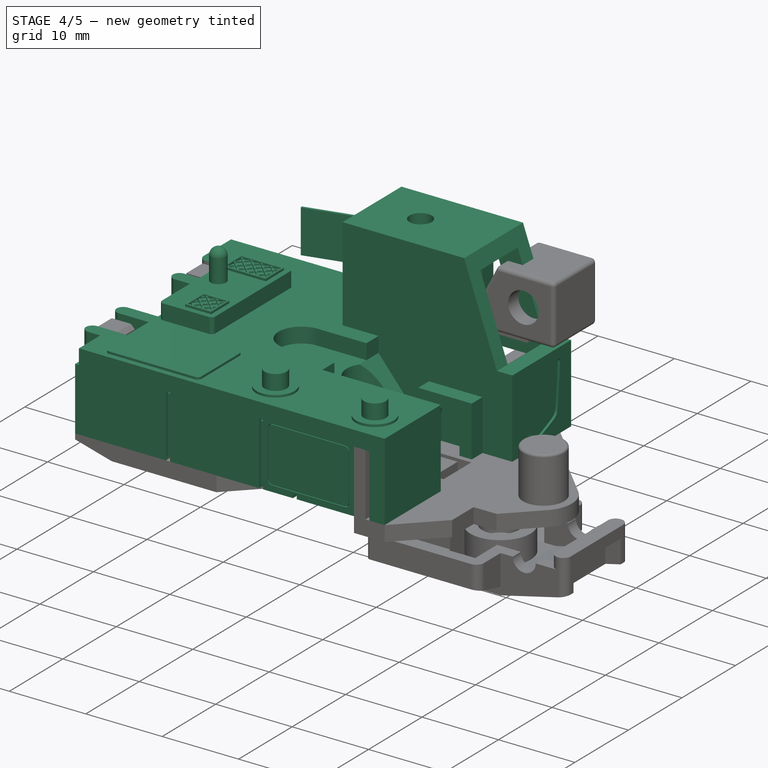
[diagram: stage 4 of 5 — iso view after this stage's code; geometry added in this stage tinted green]
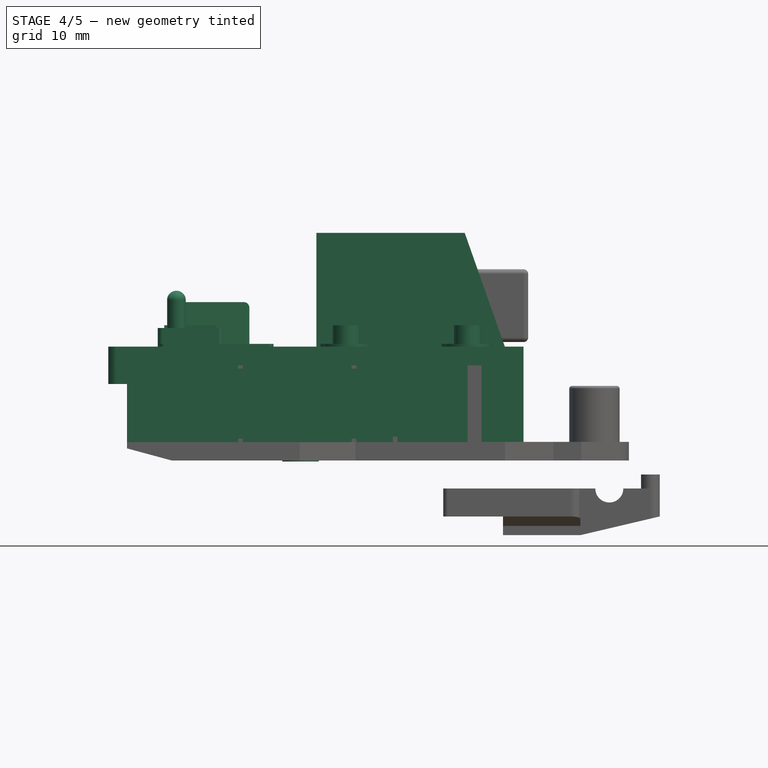
[diagram: stage 4 of 5 — front view after this stage's code; geometry added in this stage tinted green]
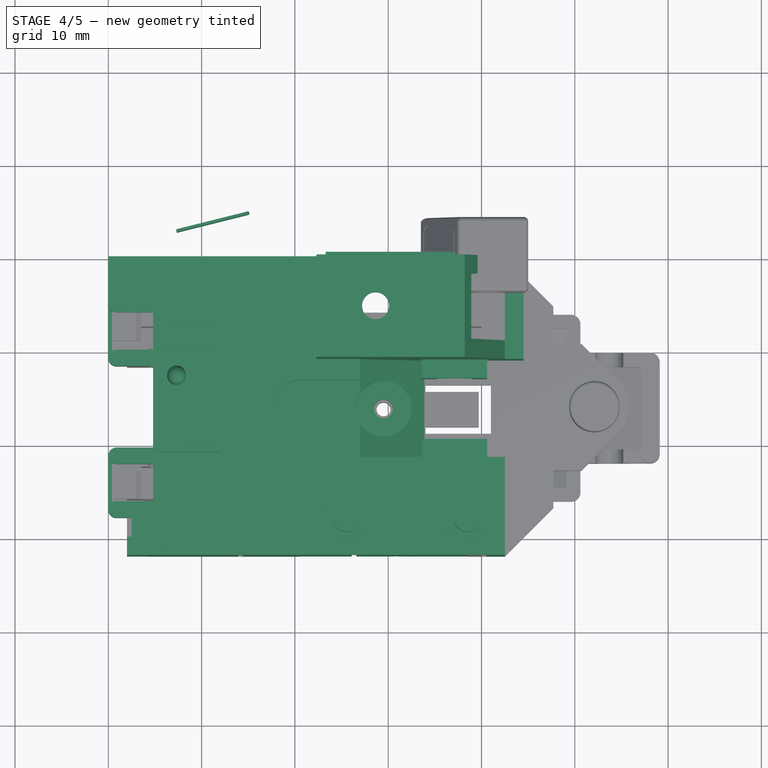
[diagram: stage 4 of 5 — top view after this stage's code; geometry added in this stage tinted green]
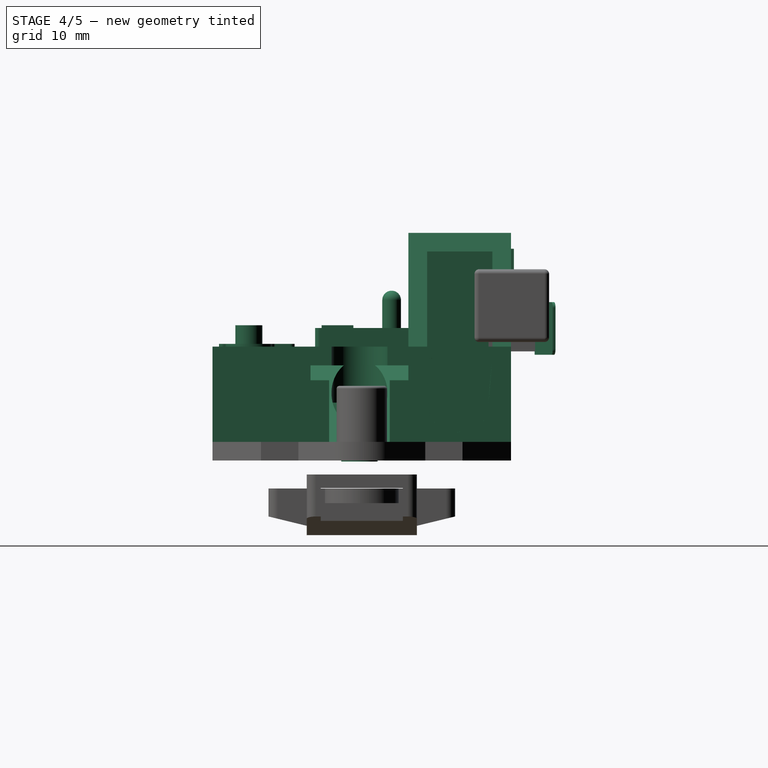
[diagram: stage 4 of 5 — right view after this stage's code; geometry added in this stage tinted green]
FEATURE [PartDesign::Body] Body001  label="Sticker1"
  AllowCompound = false
  Group = -> [Binder,Sketch003,Pad,Sketch004,Pocket003]
  Origin = -> Origin001
  Tip = -> Pocket003
FEATURE [PartDesign::SubShapeBinder] Binder001
  BindCopyOnChange = 0
  BindMode = 2
  ClaimChildren = false
  Context = -> Body002 [Binder001.]
  Fuse = false
  MakeFace = true
  OffsetFill = false
  OffsetIntersection = false
  OffsetJoinType = 0
  OffsetOpenResult = false
  PartialLoad = false
  Refine = true
  Relative = true
  _Version = 2
FEATURE [Sketcher::SketchObject] Sketch005
  ArcFitTolerance = 1e-06
  AttachmentSupport = -> [Binder001]
  ExternalGeometry = -> [Binder001]
  FullyConstrained = true
  MakeInternals = false
  MapMode = 5
  Placement = pos=(-0.162533,0.650134,4e-16) rot=(-0.086721,0.704443,0.704443;3.3146rad)
  sketch-geometry (8):
    g0: LineSegment StartX=-15.755 StartY=6.17 StartZ=0 EndX=-15.755 EndY=1.73 EndZ=0
    g1: LineSegment StartX=-15.155 StartY=1.13 StartZ=0 EndX=-7.74413 EndY=1.13 EndZ=0
    g2: LineSegment StartX=-7.74413 StartY=1.13 StartZ=0 EndX=-7.74413 EndY=6.77 EndZ=0
    g3: LineSegment StartX=-7.74413 StartY=6.77 StartZ=0 EndX=-15.155 EndY=6.77 EndZ=0
    g4: ArcOfCircle CenterX=-15.155 CenterY=6.17 CenterZ=0 NormalX=0 NormalY=0 NormalZ=1 AngleXU=0 Radius=0.6 StartAngle=1.5708 EndAngle=3.14159
    g5: GeomPoint [constr] X=-15.755 Y=6.77 Z=0
    g6: ArcOfCircle CenterX=-15.155 CenterY=1.73 CenterZ=0 NormalX=0 NormalY=0 NormalZ=1 AngleXU=0 Radius=0.6 StartAngle=3.14159 EndAngle=4.71239
    g7: GeomPoint [constr] X=-15.755 Y=1.13 Z=0
  constraints (20):
    c: Coincident(g1,g2)
    c: Coincident(g2,g3)
    c: Vertical(g0)
    c: Vertical(g2)
    c: Horizontal(g1)
    c: Horizontal(g3)
    c: PointOnObject(g5,g0)
    c: PointOnObject(g5,g3)
    c: Tangent(g0,g4) = -1.5708
    c: Tangent(g3,g4) = -1.5708
    c: PointOnObject(g7,g0)
    c: PointOnObject(g7,g1)
    c: Tangent(g0,g6) = -1.5708
    c: Tangent(g1,g6) = -1.5708
    c: Radius(g4) = 0.6
    c: Radius(g6) = 0.6
    c: DistanceY(g2,g-3) = 0.08
    c: DistanceY(g-4,g1) = 0.08
    c: DistanceX(g1,g-4) = 0.08
    c: DistanceX(g-7,g0) = 0.08
FEATURE [PartDesign::Pad] Pad001
  Direction = (-0.242536,0.970143,2e-16)
  Length = 0.3
  Length2 = 10
  Profile = -> Sketch005
  ReferenceAxis = -> Sketch005 [N_Axis]
  Refine = true
  Suppressed = false
  Type = 0
FEATURE [PartDesign::Body] Body002  label="Sticker1A"
  AllowCompound = false
  Group = -> [Binder001,Sketch005,Pad001,Sketch006,Pocket004]
  Origin = -> Origin002
  Tip = -> Pocket004
FEATURE [Part::Feature] Part__Feature001  label="Left_Arm"
  shape: bbox 36.5 x 15 x 8.25 mm, 75 faces (baked)
FEATURE [Image::ImagePlane] Sticker2  label="Sticker2_Pre"
  Placement = pos=(32.5,-7.2e-15,-3.9) rot=(0.57735,-0.57735,0.57735;2.0944rad)
  XSize = 7.67692
  YSize = 11.6427
FEATURE [PartDesign::FeatureBase] BaseFeature001
  BaseFeature = -> Part__Feature001
  Suppressed = false
FEATURE [Sketcher::SketchObject] Sketch007
  ArcFitTolerance = 1e-06
  AttachmentSupport = -> [BaseFeature001]
  ExternalGeometry = -> [BaseFeature001]
  FullyConstrained = true
  MakeInternals = false
  MapMode = 5
  Placement = pos=(0,-32,0) rot=(1,0,0;1.5708rad)
  sketch-geometry (12):
    g0: LineSegment StartX=27.2333 StartY=-0.675 StartZ=0 EndX=27.2333 EndY=-6.95 EndZ=0
    g1: LineSegment StartX=27.7333 StartY=-7.45 StartZ=0 EndX=37.35 EndY=-7.45 EndZ=0
    g2: LineSegment StartX=37.85 StartY=-6.95 StartZ=0 EndX=37.85 EndY=-0.675 EndZ=0
    g3: LineSegment StartX=37.35 StartY=-0.175 StartZ=0 EndX=27.7333 EndY=-0.175 EndZ=0
    g4: ArcOfCircle CenterX=37.35 CenterY=-0.675 CenterZ=0 NormalX=0 NormalY=0 NormalZ=1 AngleXU=0 Radius=0.5 StartAngle=0 EndAngle=1.5708
    g5: GeomPoint [constr] X=37.85 Y=-0.175 Z=0
    g6: ArcOfCircle CenterX=37.35 CenterY=-6.95 CenterZ=0 NormalX=0 NormalY=0 NormalZ=1 AngleXU=0 Radius=0.5 StartAngle=4.71239 EndAngle=6.28319
    g7: GeomPoint [constr] X=37.85 Y=-7.45 Z=0
    g8: ArcOfCircle CenterX=27.7333 CenterY=-6.95 CenterZ=0 NormalX=0 NormalY=0 NormalZ=1 AngleXU=0 Radius=0.5 StartAngle=3.14159 EndAngle=4.71239
    g9: GeomPoint [constr] X=27.2333 Y=-7.45 Z=0
    g10: ArcOfCircle CenterX=27.7333 CenterY=-0.675 CenterZ=0 NormalX=0 NormalY=0 NormalZ=1 AngleXU=0 Radius=0.5 StartAngle=1.5708 EndAngle=3.14159
    g11: GeomPoint [constr] X=27.2333 Y=-0.175 Z=0
  constraints (28):
    c: Vertical(g0)
    c: Vertical(g2)
    c: Horizontal(g1)
    c: Horizontal(g3)
    c: PointOnObject(g5,g2)
    c: PointOnObject(g5,g3)
    c: Tangent(g2,g4) = -1.5708
    c: Tangent(g3,g4) = -1.5708
    c: PointOnObject(g7,g1)
    c: PointOnObject(g7,g2)
    c: Tangent(g1,g6) = -1.5708
    c: Tangent(g2,g6) = -1.5708
    c: PointOnObject(g9,g0)
    c: PointOnObject(g9,g1)
    c: Tangent(g0,g8) = -1.5708
    c: Tangent(g1,g8) = -1.5708
    c: PointOnObject(g11,g0)
    c: PointOnObject(g11,g3)
    c: Tangent(g0,g10) = -1.5708
    c: Tangent(g3,g10) = -1.5708
    c: Radius(g10) = 0.5
    c: Radius(g6) = 0.5
    c: Radius(g4) = 0.5
    c: Radius(g8) = 0.5
    c: DistanceX(g-3,g0) = 0.65
    c: DistanceX(g2,g-5) = 0.65
    c: DistanceY(g3,g-5) = 0.2
    c: DistanceY(g-4,g1) = 0.2
FEATURE [PartDesign::Pocket] Pocket005
  BaseFeature = -> BaseFeature001
  Direction = (0,1,-2e-16)
  Length = 0.3
  Length2 = 5
  Profile = -> Sketch007
  ReferenceAxis = -> Sketch007 [N_Axis]
  Refine = true
  Suppressed = false
  Type = 0
FEATURE [PartDesign::Body] Body003  label="Left_Arm_Stickered"
  AllowCompound = false
  BaseFeature = -> Part__Feature001
  Group = -> [BaseFeature001,Sketch007,Pocket005]
  Origin = -> Origin003
  Tip = -> Pocket005
FEATURE [PartDesign::SubShapeBinder] Binder002
  BindCopyOnChange = 0
  BindMode = 2
  ClaimChildren = false
  Context = -> Body004 [Binder002.]
  Fuse = false
  MakeFace = true
  OffsetFill = false
  OffsetIntersection = false
  OffsetJoinType = 0
  OffsetOpenResult = false
  PartialLoad = false
  Refine = true
  Relative = true
  _Version = 2
FEATURE [Sketcher::SketchObject] Sketch008
  ArcFitTolerance = 1e-06
  AttachmentSupport = -> [Binder002]
  ExternalGeometry = -> [Binder002]
  FullyConstrained = true
  MakeInternals = false
  MapMode = 5
  Placement = pos=(0,-31.7,0) rot=(1,0,0;1.5708rad)
  sketch-geometry (12):
    g0: LineSegment StartX=27.3133 StartY=-0.755 StartZ=0 EndX=27.3133 EndY=-6.87 EndZ=0
    g1: LineSegment StartX=27.8133 StartY=-7.37 StartZ=0 EndX=37.27 EndY=-7.37 EndZ=0
    g2: LineSegment StartX=37.77 StartY=-6.87 StartZ=0 EndX=37.77 EndY=-0.755 EndZ=0
    g3: LineSegment StartX=37.27 StartY=-0.255 StartZ=0 EndX=27.8133 EndY=-0.255 EndZ=0
    g4: ArcOfCircle CenterX=37.27 CenterY=-6.87 CenterZ=0 NormalX=0 NormalY=0 NormalZ=1 AngleXU=0 Radius=0.5 StartAngle=4.71239 EndAngle=6.28319
    g5: GeomPoint [constr] X=37.77 Y=-7.37 Z=0
    g6: ArcOfCircle CenterX=27.8133 CenterY=-6.87 CenterZ=0 NormalX=0 NormalY=0 NormalZ=1 AngleXU=0 Radius=0.5 StartAngle=3.14159 EndAngle=4.71239
    g7: GeomPoint [constr] X=27.3133 Y=-7.37 Z=0
    g8: ArcOfCircle CenterX=27.8133 CenterY=-0.755 CenterZ=0 NormalX=0 NormalY=0 NormalZ=1 AngleXU=0 Radius=0.5 StartAngle=1.5708 EndAngle=3.14159
    g9: GeomPoint [constr] X=27.3133 Y=-0.255 Z=0
    g10: ArcOfCircle CenterX=37.27 CenterY=-0.755 CenterZ=0 NormalX=0 NormalY=0 NormalZ=1 AngleXU=0 Radius=0.5 StartAngle=0 EndAngle=1.5708
    g11: GeomPoint [constr] X=37.77 Y=-0.255 Z=0
  constraints (29):
    c: Vertical(g0)
    c: Vertical(g2)
    c: Horizontal(g1)
    c: Horizontal(g3)
    c: PointOnObject(g5,g1)
    c: PointOnObject(g5,g2)
    c: Tangent(g1,g4) = -1.5708
    c: Tangent(g2,g4) = -1.5708
    c: PointOnObject(g7,g0)
    c: PointOnObject(g7,g1)
    c: Tangent(g0,g6) = -1.5708
    c: Tangent(g1,g6) = -1.5708
    c: PointOnObject(g9,g0)
    c: PointOnObject(g9,g3)
    c: Tangent(g0,g8) = -1.5708
    c: Tangent(g3,g8) = -1.5708
    c: PointOnObject(g11,g2)
    c: PointOnObject(g11,g3)
    c: Tangent(g2,g10) = -1.5708
    c: Tangent(g3,g10) = -1.5708
    c: Radius(g-7) = 0.5
    c: Radius(g10) = 0.5
    c: Radius(g4) = 0.5
    c: Radius(g6) = 0.5
    c: Radius(g8) = 0.5
    c: DistanceX(g-4,g0) = 0.08
    c: DistanceX(g2,g-7) = 0.08
    c: DistanceY(g3,g-7) = 0.08
    c: DistanceY(g-5,g1) = 0.08
FEATURE [PartDesign::Pad] Pad002
  Direction = (0,-1,2e-16)
  Length = 0.3
  Length2 = 10
  Profile = -> Sketch008
  ReferenceAxis = -> Sketch008 [N_Axis]
  Refine = true
  Suppressed = false
  Type = 0
FEATURE [Sketcher::SketchObject] Sketch009
  ArcFitTolerance = 1e-06
  AttachmentSupport = -> [Pad002]
  ExternalGeometry = -> [Pad002]
  FullyConstrained = false
  MakeInternals = false
  MapMode = 5
  Placement = pos=(0,-32,0) rot=(1,0,0;1.5708rad)
  sketch-geometry (18):
    g0: LineSegment StartX=32.1626 StartY=-7.37 StartZ=0 EndX=34.1626 EndY=-7.37 EndZ=0
    g1: LineSegment StartX=34.1626 StartY=-7.37 StartZ=0 EndX=36.3626 EndY=-3.8125 EndZ=0
    g2: LineSegment StartX=36.3626 StartY=-3.8125 StartZ=0 EndX=34.1626 EndY=-0.255 EndZ=0
    g3: LineSegment StartX=34.1626 StartY=-0.255 StartZ=0 EndX=32.1626 EndY=-0.255 EndZ=0
    g4: LineSegment StartX=32.1626 StartY=-0.255 StartZ=0 EndX=34.3626 EndY=-3.8125 EndZ=0
    g5: LineSegment StartX=34.3626 StartY=-3.8125 StartZ=0 EndX=32.1626 EndY=-7.37 EndZ=0
    g6: LineSegment [constr] StartX=36.3626 StartY=-3.8125 StartZ=0 EndX=34.3626 EndY=-3.8125 EndZ=0
    g7: LineSegment [constr] StartX=32.1626 StartY=-0.255 StartZ=0 EndX=32.1626 EndY=-7.37 EndZ=0
    g8: LineSegment [constr] StartX=34.1626 StartY=-0.255 StartZ=0 EndX=34.1626 EndY=-7.37 EndZ=0
    g9: LineSegment StartX=29.3831 StartY=-7.37 StartZ=0 EndX=31.3831 EndY=-7.37 EndZ=0
    g10: LineSegment StartX=31.3831 StartY=-7.37 StartZ=0 EndX=33.5831 EndY=-3.8125 EndZ=0
    g11: LineSegment StartX=33.5831 StartY=-3.8125 StartZ=0 EndX=31.3831 EndY=-0.255 EndZ=0
    g12: LineSegment StartX=31.3831 StartY=-0.255 StartZ=0 EndX=29.3831 EndY=-0.255 EndZ=0
    g13: LineSegment StartX=29.3831 StartY=-0.255 StartZ=0 EndX=31.5831 EndY=-3.8125 EndZ=0
    g14: LineSegment StartX=31.5831 StartY=-3.8125 StartZ=0 EndX=29.3831 EndY=-7.37 EndZ=0
    g15: LineSegment [constr] StartX=33.5831 StartY=-3.8125 StartZ=0 EndX=31.5831 EndY=-3.8125 EndZ=0
    g16: LineSegment [constr] StartX=29.3831 StartY=-0.255 StartZ=0 EndX=29.3831 EndY=-7.37 EndZ=0
    g17: LineSegment [constr] StartX=31.3831 StartY=-0.255 StartZ=0 EndX=31.3831 EndY=-7.37 EndZ=0
  constraints (43):
    c: PointOnObject(g0,g-5)
    c: PointOnObject(g0,g-5)
    c: Coincident(g1,g0)
    c: Coincident(g2,g1)
    c: PointOnObject(g2,g-3)
    c: Coincident(g3,g2)
    c: PointOnObject(g3,g-3)
    c: Coincident(g4,g3)
    c: Coincident(g5,g4)
    c: Coincident(g5,g0)
    c: Coincident(g6,g1)
    c: Coincident(g6,g4)
    c: Horizontal(g6)
    c: Coincident(g7,g3)
    c: Coincident(g7,g0)
    c: Coincident(g8,g2)
    c: Coincident(g8,g0)
    c: Vertical(g8)
    c: Vertical(g7)
    c: DistanceX(g3,g3) = 2
    c: DistanceX(g6,g6) = 2
    c: DistanceY(g-5,g-3) = 7.115
    c: DistanceY(g1,g2) = 3.5575
    c: DistanceX(g2,g1) = 2.2
    c: Coincident(g10,g9)
    c: Coincident(g11,g10)
    c: Coincident(g12,g11)
    c: Coincident(g13,g12)
    c: Coincident(g14,g13)
    c: Coincident(g14,g9)
    c: Coincident(g15,g10)
    c: Coincident(g15,g13)
    c: Horizontal(g15)
    c: Coincident(g16,g12)
    c: Coincident(g16,g9)
    c: Coincident(g17,g11)
    c: Coincident(g17,g9)
    c: Vertical(g17)
    c: Vertical(g16)
    c: DistanceX(g12,g12) = 2
    c: DistanceX(g15,g15) = 2
    c: DistanceY(g10,g11) = 3.5575
    c: DistanceX(g11,g10) = 2.2
FEATURE [PartDesign::Pocket] Pocket006
  BaseFeature = -> Pad002
  Direction = (0,1,-2e-16)
  Length = 0.001
  Length2 = 5
  Profile = -> Sketch009
  ReferenceAxis = -> Sketch009 [N_Axis]
  Refine = true
  Suppressed = false
  Type = 0
FEATURE [PartDesign::Body] Body004  label="Sticker2"
  AllowCompound = false
  Group = -> [Binder002,Sketch008,Pad002,Sketch009,Pocket006]
  Origin = -> Origin004
  Tip = -> Pocket006
FEATURE [Part::Feature] Part__Feature002  label="Rear_Torso"
  shape: bbox 44.5 x 32.3 x 24.5 mm, 565 faces (baked)
FEATURE [PartDesign::FeatureBase] BaseFeature002
  BaseFeature = -> Part__Feature002
  Suppressed = false
FEATURE [Sketcher::SketchObject] Sketch010
  ArcFitTolerance = 1e-06
  AttachmentOffset = pos=(-10.45,66,0) rot=(0,0,1;0rad)
  AttachmentSupport = -> [BaseFeature002]
  FullyConstrained = false
  MakeInternals = false
  MapMode = 5
  Placement = pos=(44.5,-10.45,66) rot=(0.57735,0.57735,0.57735;2.0944rad)
  sketch-geometry (55):
    g0-g23: Circle [constr] x24 (B-spline internal-alignment scaffolding for g24; pole/knot coordinates omitted)
    g24: BSplineCurve PolesCount=28 KnotsCount=26 Degree=3 IsPeriodic=0
    g25-g48: GeomPoint [constr] x24 (B-spline internal-alignment scaffolding for g24; pole/knot coordinates omitted)
    g49: Circle [constr] CenterX=7.96829 CenterY=-71.2558 CenterZ=0 NormalX=0 NormalY=0 NormalZ=1 AngleXU=0 Radius=1
    g50: GeomPoint [constr] X=8.18848 Y=-67.9665 Z=0
    g51: Circle [constr] CenterX=8.19567 CenterY=-67.6744 CenterZ=0 NormalX=0 NormalY=0 NormalZ=1 AngleXU=0 Radius=1
    g52: Circle [constr] CenterX=8.37992 CenterY=-65.8459 CenterZ=0 NormalX=0 NormalY=0 NormalZ=1 AngleXU=0 Radius=1
    g53: Circle [constr] CenterX=8.42259 CenterY=-65.5512 CenterZ=0 NormalX=0 NormalY=0 NormalZ=1 AngleXU=0 Radius=1
    g54: GeomPoint [constr] X=8.35632 Y=-66.1015 Z=0
  constraints (15):
    c: Weight(g0) = 1
    c: Equal(g0, g1-g23) x23
    c: InternalAlignment(g0-g23 -> g24) x24
    c: InternalAlignment(g25-g48 -> g24) x24
    c: Coincident(g23,g0)
    c: InternalAlignment(g49,g24)
    c: Equal(g49,g0)
    c: InternalAlignment(g50,g24)
    c: InternalAlignment(g51,g24)
    c: Equal(g51,g0)
    c: InternalAlignment(g52,g24)
    c: Equal(g52,g0)
    c: InternalAlignment(g53,g24)
    c: Equal(g53,g0)
    c: InternalAlignment(g54,g24)
FEATURE [PartDesign::Pocket] Pocket007
  BaseFeature = -> BaseFeature002
  Direction = (-1,0,0)
  Length = 0.3
  Length2 = 5
  Profile = -> Sketch010
  ReferenceAxis = -> Sketch010 [N_Axis]
  Refine = true
  Suppressed = false
  Type = 0
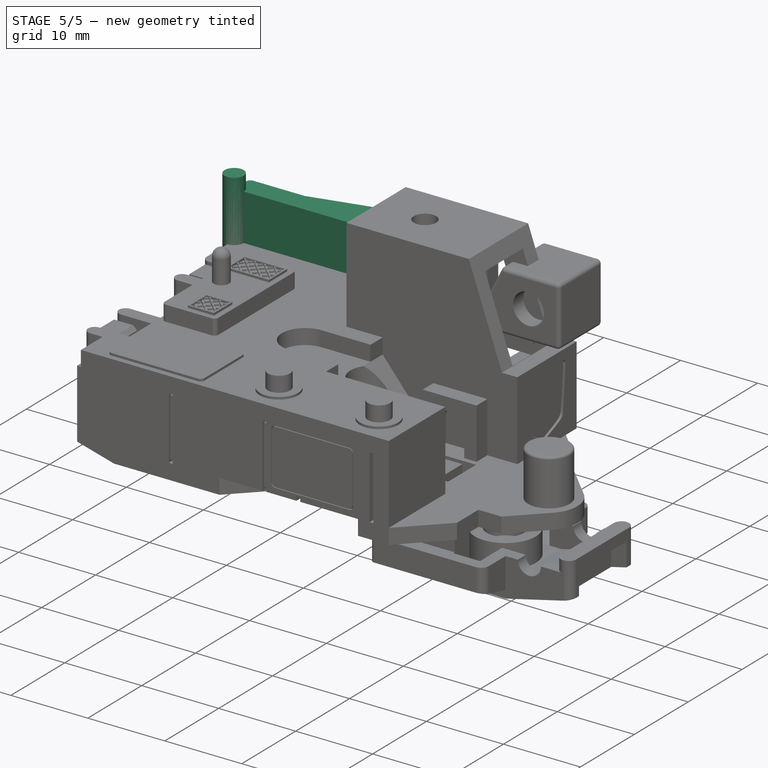
[diagram: stage 5 of 5 — iso view after this stage's code; geometry added in this stage tinted green]
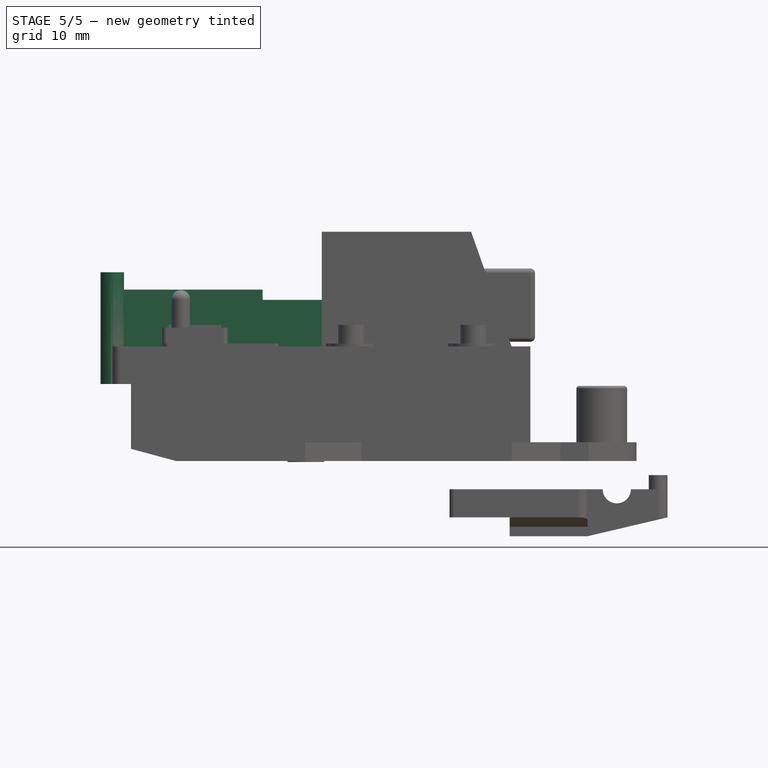
[diagram: stage 5 of 5 — front view after this stage's code; geometry added in this stage tinted green]
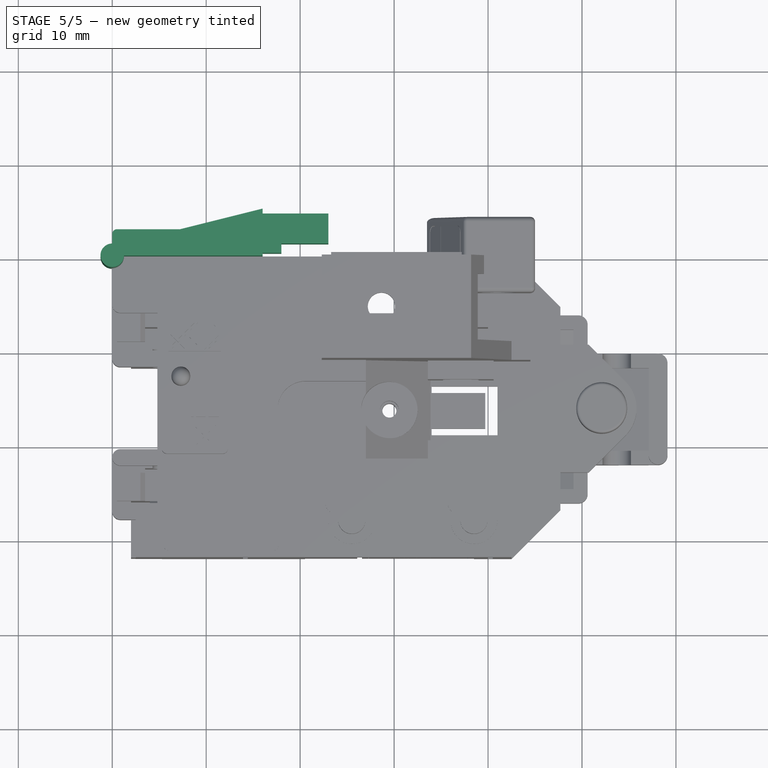
[diagram: stage 5 of 5 — top view after this stage's code; geometry added in this stage tinted green]
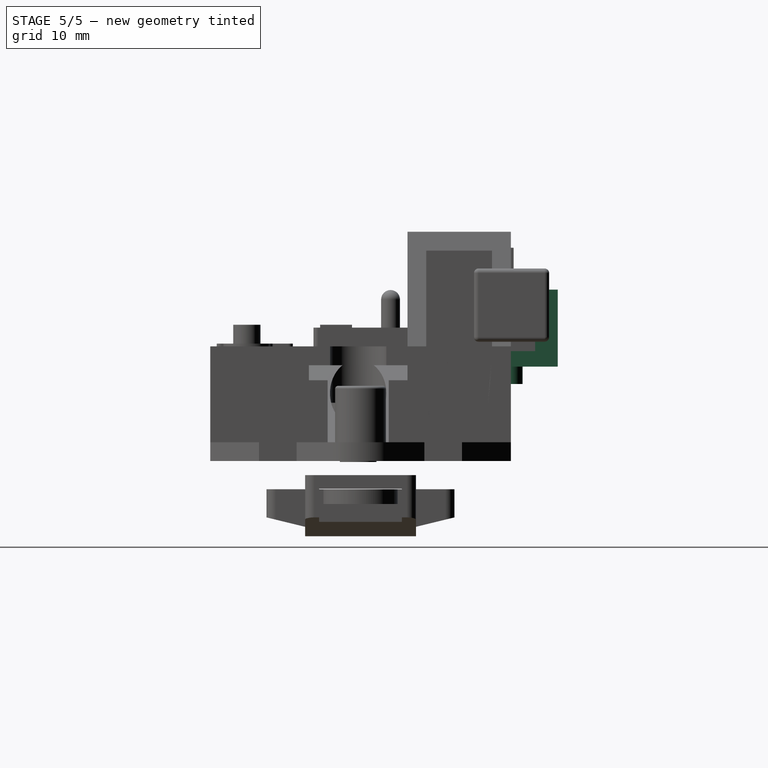
[diagram: stage 5 of 5 — right view after this stage's code; geometry added in this stage tinted green]
FEATURE [Part::Feature] Part__Feature  label="Arm_Connector"
  shape: bbox 24.25 x 6.25 x 11.9 mm, 18 faces (baked)
FEATURE [PartDesign::FeatureBase] BaseFeature
  BaseFeature = -> Part__Feature
  Suppressed = false
FEATURE [Sketcher::SketchObject] Sketch
  ArcFitTolerance = 1e-06
  AttachmentOffset = pos=(-16.8,8.95,0) rot=(0,0,1;-1.5708rad)
  AttachmentSupport = -> [BaseFeature]
  FullyConstrained = false
  MakeInternals = false
  MapMode = 5
  Placement = pos=(16.8,4.5,8.95) rot=(0.57735,-0.57735,-0.57735;4.18879rad)
  sketch-geometry (45):
    g0-g22: Circle [constr] x23 (B-spline internal-alignment scaffolding for g23; pole/knot coordinates omitted)
    g23: BSplineCurve PolesCount=23 KnotsCount=21 Degree=3 IsPeriodic=0
    g24-g44: GeomPoint [constr] x21 (B-spline internal-alignment scaffolding for g23; pole/knot coordinates omitted)
  constraints (5):
    c: Weight(g0) = 1
    c: Equal(g0, g1-g22) x22
    c: InternalAlignment(g0-g22 -> g23) x23
    c: InternalAlignment(g24-g44 -> g23) x21
    c: Coincident(g22,g0)
FEATURE [PartDesign::Pocket] Pocket
  BaseFeature = -> BaseFeature
  Direction = (0,-1,2e-16)
  Length = 0.4
  Length2 = 5
  Profile = -> Sketch
  ReferenceAxis = -> Sketch [N_Axis]
  Refine = true
  Suppressed = false
  Type = 0
FEATURE [Image::ImagePlane] Sticker1  label="Sticker1_Pre"
  Placement = pos=(7.8,0,4) rot=(-0.58,-0.58,-0.58;2.0944rad)
  XSize = 6.57118
  YSize = 14.5985
FEATURE [Image::ImagePlane] Sticker002  label="Sticker1A_Pre"
  Placement = pos=(8.57,1.89,4) rot=(-0.52,-0.67,-0.52;1.95948rad)
  XSize = 6.57118
  YSize = 14.5985
FEATURE [Sketcher::SketchObject] Sketch001
  ArcFitTolerance = 1e-06
  AttachmentSupport = -> [Pocket]
  ExternalGeometry = -> [Pocket]
  FullyConstrained = true
  MakeInternals = false
  MapMode = 5
  Placement = pos=(-0.235294,0.941176,0) rot=(-0.086721,0.704443,0.704443;3.3146rad)
  sketch-geometry (8):
    g0: LineSegment StartX=-7.66413 StartY=6.85 StartZ=0 EndX=-15.235 EndY=6.85 EndZ=0
    g1: LineSegment StartX=-15.835 StartY=6.25 StartZ=0 EndX=-15.835 EndY=1.65 EndZ=0
    g2: LineSegment StartX=-15.235 StartY=1.05 StartZ=0 EndX=-7.66413 EndY=1.05 EndZ=0
    g3: LineSegment StartX=-7.66413 StartY=1.05 StartZ=0 EndX=-7.66413 EndY=6.85 EndZ=0
    g4: ArcOfCircle CenterX=-15.235 CenterY=1.65 CenterZ=0 NormalX=0 NormalY=0 NormalZ=1 AngleXU=0 Radius=0.6 StartAngle=3.14159 EndAngle=4.71239
    g5: GeomPoint [constr] X=-15.835 Y=1.05 Z=0
    g6: ArcOfCircle CenterX=-15.235 CenterY=6.25 CenterZ=0 NormalX=0 NormalY=0 NormalZ=1 AngleXU=0 Radius=0.6 StartAngle=1.5708 EndAngle=3.14159
    g7: GeomPoint [constr] X=-15.835 Y=6.85 Z=0
  constraints (20):
    c: Coincident(g2,g3)
    c: Coincident(g3,g0)
    c: Horizontal(g0)
    c: Horizontal(g2)
    c: Vertical(g1)
    c: Vertical(g3)
    c: PointOnObject(g0,g-6)
    c: DistanceY(g0,g-6) = 1.2
    c: DistanceY(g-6,g2) = 1.2
    c: PointOnObject(g5,g1)
    c: PointOnObject(g5,g2)
    c: Tangent(g1,g4) = -1.5708
    c: Tangent(g2,g4) = -1.5708
    c: PointOnObject(g7,g0)
    c: PointOnObject(g7,g1)
    c: Tangent(g0,g6) = -1.5708
    c: Tangent(g1,g6) = -1.5708
    c: Radius(g6) = 0.6
    c: Radius(g4) = 0.6
    c: DistanceX(g-5,g1) = 0.9
FEATURE [PartDesign::Pocket] Pocket001
  BaseFeature = -> Pocket
  Direction = (0.242536,-0.970143,-4e-16)
  Length = 0.3
  Length2 = 5
  Profile = -> Sketch001
  ReferenceAxis = -> Sketch001 [N_Axis]
  Refine = true
  Suppressed = false
  Type = 0
FEATURE [Sketcher::SketchObject] Sketch002
  ArcFitTolerance = 1e-06
  AttachmentSupport = -> [Pocket001]
  ExternalGeometry = -> [Pocket001]
  FullyConstrained = true
  MakeInternals = false
  MapMode = 5
  Placement = pos=(0,2.8,0) rot=(0,0.707107,0.707107;3.14159rad)
  sketch-geometry (8):
    g0: LineSegment StartX=-7.27276 StartY=6.85 StartZ=0 EndX=-7.27276 EndY=1.05 EndZ=0
    g1: LineSegment StartX=-7.27276 StartY=1.05 StartZ=0 EndX=-1.37276 EndY=1.05 EndZ=0
    g2: LineSegment StartX=-0.772761 StartY=1.65 StartZ=0 EndX=-0.772761 EndY=6.25 EndZ=0
    g3: LineSegment StartX=-1.37276 StartY=6.85 StartZ=0 EndX=-7.27276 EndY=6.85 EndZ=0
    g4: ArcOfCircle CenterX=-1.37276 CenterY=6.25 CenterZ=0 NormalX=0 NormalY=0 NormalZ=1 AngleXU=0 Radius=0.6 StartAngle=1e-16 EndAngle=1.5708
    g5: GeomPoint [constr] X=-0.772761 Y=6.85 Z=0
    g6: ArcOfCircle CenterX=-1.37276 CenterY=1.65 CenterZ=0 NormalX=0 NormalY=0 NormalZ=1 AngleXU=0 Radius=0.6 StartAngle=4.71239 EndAngle=6.28319
    g7: GeomPoint [constr] X=-0.772761 Y=1.05 Z=0
  constraints (19):
    c: Coincident(g0,g1)
    c: Coincident(g3,g0)
    c: Vertical(g0)
    c: Vertical(g2)
    c: Horizontal(g1)
    c: Horizontal(g3)
    c: Coincident(g0,g-3)
    c: PointOnObject(g0,g-5)
    c: PointOnObject(g5,g2)
    c: PointOnObject(g5,g3)
    c: Tangent(g2,g4) = -1.5708
    c: Tangent(g3,g4) = -1.5708
    c: PointOnObject(g7,g1)
    c: PointOnObject(g7,g2)
    c: Tangent(g1,g6) = -1.5708
    c: Tangent(g2,g6) = -1.5708
    c: Radius(g6) = 0.6
    c: Radius(g4) = 0.6
    c: DistanceX(g3,g3) = 5.9
FEATURE [PartDesign::Pocket] Pocket002
  BaseFeature = -> Pocket001
  Direction = (0,-1,2e-16)
  Length = 0.3
  Length2 = 5
  Profile = -> Sketch002
  ReferenceAxis = -> Sketch002 [N_Axis]
  Refine = true
  Suppressed = false
  Type = 0
FEATURE [PartDesign::Body] Body  label="Arm_Connector_Stickered"
  AllowCompound = false
  BaseFeature = -> Part__Feature
  Group = -> [BaseFeature,Sketch,Pocket,Sketch001,Pocket001,Sketch002,Pocket002]
  Origin = -> Origin
  Tip = -> Pocket002
FEATURE [PartDesign::SubShapeBinder] Binder
  BindCopyOnChange = 0
  BindMode = 2
  ClaimChildren = false
  Context = -> Body001 [Binder.]
  Fuse = false
  MakeFace = true
  OffsetFill = false
  OffsetIntersection = false
  OffsetJoinType = 0
  OffsetOpenResult = false
  PartialLoad = false
  Refine = true
  Relative = true
  _Version = 2
FEATURE [Sketcher::SketchObject] Sketch003
  ArcFitTolerance = 1e-06
  AttachmentSupport = -> [Binder]
  ExternalGeometry = -> [Binder]
  FullyConstrained = true
  MakeInternals = false
  MapMode = 5
  Placement = pos=(0,2.5,0) rot=(0,0.707107,0.707107;3.14159rad)
  sketch-geometry (8):
    g0: LineSegment StartX=-7.19276 StartY=6.77 StartZ=0 EndX=-7.19276 EndY=1.13 EndZ=0
    g1: LineSegment StartX=-7.19276 StartY=1.13 StartZ=0 EndX=-1.45276 EndY=1.13 EndZ=0
    g2: LineSegment StartX=-0.852761 StartY=1.73 StartZ=0 EndX=-0.852761 EndY=6.17 EndZ=0
    g3: LineSegment StartX=-1.45276 StartY=6.77 StartZ=0 EndX=-7.19276 EndY=6.77 EndZ=0
    g4: ArcOfCircle CenterX=-1.45276 CenterY=1.73 CenterZ=0 NormalX=0 NormalY=0 NormalZ=1 AngleXU=0 Radius=0.6 StartAngle=4.71239 EndAngle=6.28319
    g5: GeomPoint [constr] X=-0.852761 Y=1.13 Z=0
    g6: ArcOfCircle CenterX=-1.45276 CenterY=6.17 CenterZ=0 NormalX=0 NormalY=0 NormalZ=1 AngleXU=0 Radius=0.6 StartAngle=0 EndAngle=1.5708
    g7: GeomPoint [constr] X=-0.852761 Y=6.77 Z=0
  constraints (20):
    c: Coincident(g0,g1)
    c: Coincident(g3,g0)
    c: Vertical(g0)
    c: Vertical(g2)
    c: Horizontal(g1)
    c: Horizontal(g3)
    c: PointOnObject(g5,g1)
    c: PointOnObject(g5,g2)
    c: Tangent(g1,g4) = -1.5708
    c: Tangent(g2,g4) = -1.5708
    c: PointOnObject(g7,g2)
    c: PointOnObject(g7,g3)
    c: Tangent(g2,g6) = -1.5708
    c: Tangent(g3,g6) = -1.5708
    c: Radius(g6) = 0.6
    c: Radius(g4) = 0.6
    c: DistanceY(g0,g-4) = 0.08
    c: DistanceY(g-5,g0) = 0.08
    c: DistanceX(g-5,g0) = 0.08
    c: DistanceX(g2,g-7) = 0.08
FEATURE [PartDesign::Pad] Pad
  Direction = (0,1,-2e-16)
  Length = 0.3
  Length2 = 10
  Profile = -> Sketch003
  ReferenceAxis = -> Sketch003 [N_Axis]
  Refine = true
  Suppressed = false
  Type = 0
FEATURE [Sketcher::SketchObject] Sketch004
  ArcFitTolerance = 1e-06
  AttachmentSupport = -> [Pad]
  ExternalGeometry = -> [Pad]
  FullyConstrained = false
  MakeInternals = false
  MapMode = 5
  Placement = pos=(0,2.8,0) rot=(0,0.707107,0.707107;3.14159rad)
  sketch-geometry (17):
    g0: LineSegment StartX=-5.44477 StartY=6.77 StartZ=0 EndX=-5.44477 EndY=1.13 EndZ=0
    g1: LineSegment StartX=-5.44477 StartY=1.13 StartZ=0 EndX=-1.45276 EndY=1.13 EndZ=0
    g2: LineSegment StartX=-0.852761 StartY=1.73 StartZ=0 EndX=-0.852761 EndY=6.17 EndZ=0
    g3: LineSegment StartX=-1.45276 StartY=6.77 StartZ=0 EndX=-5.44477 EndY=6.77 EndZ=0
    g4: ArcOfCircle CenterX=-1.45276 CenterY=6.17 CenterZ=0 NormalX=0 NormalY=0 NormalZ=1 AngleXU=0 Radius=0.6 StartAngle=6.28319 EndAngle=7.85398
    g5: ArcOfCircle CenterX=-1.45276 CenterY=1.73 CenterZ=0 NormalX=0 NormalY=0 NormalZ=1 AngleXU=0 Radius=0.6 StartAngle=4.71239 EndAngle=6.28319
    g6: LineSegment StartX=-6.93334 StartY=6.40984 StartZ=0 EndX=-6.93334 EndY=4.71718 EndZ=0
    g7: LineSegment StartX=-6.93334 StartY=4.71718 StartZ=0 EndX=-5.52656 EndY=5.52 EndZ=0
    g8: LineSegment StartX=-5.52656 StartY=5.52 StartZ=0 EndX=-6.93334 EndY=6.40984 EndZ=0
    g9: LineSegment StartX=-6.61654 StartY=5.90984 StartZ=0 EndX=-6.61654 EndY=5.21718 EndZ=0
    g10: LineSegment StartX=-6.61654 StartY=5.21718 StartZ=0 EndX=-5.99049 EndY=5.52 EndZ=0
    g11: LineSegment StartX=-5.99049 StartY=5.52 StartZ=0 EndX=-6.61654 EndY=5.90984 EndZ=0
    g12: LineSegment [constr] StartX=-5.99049 StartY=5.52 StartZ=0 EndX=-5.52656 EndY=5.52 EndZ=0
    g13: Circle CenterX=-2.86499 CenterY=5.52 CenterZ=0 NormalX=0 NormalY=0 NormalZ=1 AngleXU=0 Radius=0.8
    g14: Circle CenterX=-2.86499 CenterY=2.38 CenterZ=0 NormalX=0 NormalY=0 NormalZ=1 AngleXU=0 Radius=0.8
    g15: LineSegment [constr] StartX=-5.52656 StartY=5.52 StartZ=0 EndX=-2.86499 EndY=5.52 EndZ=0
    g16: LineSegment [constr] StartX=-2.86499 StartY=5.52 StartZ=0 EndX=-2.86499 EndY=2.38 EndZ=0
  constraints (38):
    c: PointOnObject(g0,g-3)
    c: PointOnObject(g0,g-7)
    c: Vertical(g0)
    c: Coincident(g1,g0)
    c: Coincident(g1,g-7)
    c: Coincident(g2,g-6)
    c: Coincident(g2,g-5)
    c: Coincident(g3,g-4)
    c: Coincident(g3,g0)
    c: Coincident(g4,g3)
    c: Coincident(g4,g2)
    c: Tangent(g4,g-4)
    c: Coincident(g5,g1)
    c: Coincident(g5,g2)
    c: Tangent(g5,g-6)
    c: Vertical(g6)
    c: Coincident(g7,g6)
    c: Coincident(g8,g7)
    c: Coincident(g8,g6)
    c: Vertical(g9)
    c: Coincident(g10,g9)
    c: Coincident(g11,g10)
    c: Coincident(g11,g9)
    c: Coincident(g12,g10)
    c: Coincident(g12,g7)
    c: Horizontal(g12)
    c: DistanceY(g9,g6) = 0.5
    c: DistanceY(g6,g9) = 0.5
    c: Radius(g13) = 0.8
    c: Radius(g14) = 0.8
    c: Coincident(g15,g7)
    c: Coincident(g15,g13)
    c: Horizontal(g15)
    c: Coincident(g16,g13)
    c: Coincident(g16,g14)
    c: Vertical(g16)
    c: DistanceY(g13,g3) = 1.25
    c: DistanceY(g1,g14) = 1.25
FEATURE [PartDesign::Pocket] Pocket003
  BaseFeature = -> Pad
  Direction = (0,-1,2e-16)
  Length = 0.001
  Length2 = 5
  Profile = -> Sketch004
  ReferenceAxis = -> Sketch004 [N_Axis]
  Refine = true
  Suppressed = false
  Type = 0
FEATURE [Sketcher::SketchObject] Sketch006
  ArcFitTolerance = 1e-06
  AttachmentSupport = -> [Pad001]
  ExternalGeometry = -> [Pad001]
  FullyConstrained = true
  MakeInternals = false
  MapMode = 5
  Placement = pos=(-0.235294,0.941176,4e-16) rot=(-0.086721,0.704443,0.704443;3.3146rad)
  sketch-geometry (124):
    g0: LineSegment StartX=-15.255 StartY=3.03 StartZ=0 EndX=-15.255 EndY=1.63 EndZ=0
    g1: LineSegment StartX=-15.255 StartY=1.63 StartZ=0 EndX=-8.05496 EndY=1.63 EndZ=0
    g2: LineSegment StartX=-8.05496 StartY=1.63 StartZ=0 EndX=-8.05496 EndY=3.03 EndZ=0
    g3: LineSegment StartX=-8.05496 StartY=3.03 StartZ=0 EndX=-15.255 EndY=3.03 EndZ=0
    g4: LineSegment StartX=-15.055 StartY=2.83 StartZ=0 EndX=-15.055 EndY=1.83 EndZ=0
    g5: LineSegment StartX=-15.055 StartY=1.83 StartZ=0 EndX=-14.555 EndY=1.83 EndZ=0
    g6: LineSegment StartX=-14.555 StartY=1.83 StartZ=0 EndX=-14.555 EndY=2.83 EndZ=0
    g7: LineSegment StartX=-14.555 StartY=2.83 StartZ=0 EndX=-15.055 EndY=2.83 EndZ=0
    g8: LineSegment StartX=-14.355 StartY=2.83 StartZ=0 EndX=-14.355 EndY=1.83 EndZ=0
    g9: LineSegment StartX=-14.355 StartY=1.83 StartZ=0 EndX=-13.855 EndY=1.83 EndZ=0
    g10: LineSegment StartX=-13.855 StartY=1.83 StartZ=0 EndX=-13.855 EndY=2.83 EndZ=0
    g11: LineSegment StartX=-13.855 StartY=2.83 StartZ=0 EndX=-14.355 EndY=2.83 EndZ=0
    g12: LineSegment StartX=-13.655 StartY=2.83 StartZ=0 EndX=-13.655 EndY=1.83 EndZ=0
    g13: LineSegment StartX=-13.655 StartY=1.83 StartZ=0 EndX=-13.155 EndY=1.83 EndZ=0
    g14: LineSegment StartX=-13.155 StartY=1.83 StartZ=0 EndX=-13.155 EndY=2.83 EndZ=0
    g15: LineSegment StartX=-13.155 StartY=2.83 StartZ=0 EndX=-13.655 EndY=2.83 EndZ=0
    g16: LineSegment StartX=-12.955 StartY=2.83 StartZ=0 EndX=-12.955 EndY=1.83 EndZ=0
    g17: LineSegment StartX=-12.955 StartY=1.83 StartZ=0 EndX=-12.455 EndY=1.83 EndZ=0
    g18: LineSegment StartX=-12.455 StartY=1.83 StartZ=0 EndX=-12.455 EndY=2.83 EndZ=0
    g19: LineSegment StartX=-12.455 StartY=2.83 StartZ=0 EndX=-12.955 EndY=2.83 EndZ=0
    g20: LineSegment StartX=-12.255 StartY=2.83 StartZ=0 EndX=-12.255 EndY=1.83 EndZ=0
    g21: LineSegment StartX=-12.255 StartY=1.83 StartZ=0 EndX=-11.755 EndY=1.83 EndZ=0
    g22: LineSegment StartX=-11.755 StartY=1.83 StartZ=0 EndX=-11.755 EndY=2.83 EndZ=0
    g23: LineSegment StartX=-11.755 StartY=2.83 StartZ=0 EndX=-12.255 EndY=2.83 EndZ=0
    g24: LineSegment StartX=-11.555 StartY=2.83 StartZ=0 EndX=-11.555 EndY=1.83 EndZ=0
    g25: LineSegment StartX=-11.555 StartY=1.83 StartZ=0 EndX=-11.055 EndY=1.83 EndZ=0
    g26: LineSegment StartX=-11.055 StartY=1.83 StartZ=0 EndX=-11.055 EndY=2.83 EndZ=0
    g27: LineSegment StartX=-11.055 StartY=2.83 StartZ=0 EndX=-11.555 EndY=2.83 EndZ=0
    g28: LineSegment StartX=-10.855 StartY=2.83 StartZ=0 EndX=-10.855 EndY=1.83 EndZ=0
    g29: LineSegment StartX=-10.855 StartY=1.83 StartZ=0 EndX=-10.355 EndY=1.83 EndZ=0
    g30: LineSegment StartX=-10.355 StartY=1.83 StartZ=0 EndX=-10.355 EndY=2.83 EndZ=0
    g31: LineSegment StartX=-10.355 StartY=2.83 StartZ=0 EndX=-10.855 EndY=2.83 EndZ=0
    g32: LineSegment StartX=-10.155 StartY=2.83 StartZ=0 EndX=-10.155 EndY=1.83 EndZ=0
    g33: LineSegment StartX=-10.155 StartY=1.83 StartZ=0 EndX=-9.65496 EndY=1.83 EndZ=0
    g34: LineSegment StartX=-9.65496 StartY=1.83 StartZ=0 EndX=-9.65496 EndY=2.83 EndZ=0
    g35: LineSegment StartX=-9.65496 StartY=2.83 StartZ=0 EndX=-10.155 EndY=2.83 EndZ=0
    g36: LineSegment StartX=-9.45496 StartY=2.83 StartZ=0 EndX=-9.45496 EndY=1.83 EndZ=0
    g37: LineSegment StartX=-9.45496 StartY=1.83 StartZ=0 EndX=-8.95496 EndY=1.83 EndZ=0
    g38: LineSegment StartX=-8.95496 StartY=1.83 StartZ=0 EndX=-8.95496 EndY=2.83 EndZ=0
    g39: LineSegment StartX=-8.95496 StartY=2.83 StartZ=0 EndX=-9.45496 EndY=2.83 EndZ=0
    g40: LineSegment StartX=-8.75496 StartY=2.83 StartZ=0 EndX=-8.75496 EndY=1.83 EndZ=0
    g41: LineSegment StartX=-8.75496 StartY=1.83 StartZ=0 EndX=-8.25496 EndY=1.83 EndZ=0
    g42: LineSegment StartX=-8.25496 StartY=1.83 StartZ=0 EndX=-8.25496 EndY=2.83 EndZ=0
    g43: LineSegment StartX=-8.25496 StartY=2.83 StartZ=0 EndX=-8.75496 EndY=2.83 EndZ=0
    g44: LineSegment [constr] StartX=-14.555 StartY=2.83 StartZ=0 EndX=-14.355 EndY=2.83 EndZ=0
    g45: LineSegment [constr] StartX=-13.855 StartY=2.83 StartZ=0 EndX=-13.655 EndY=2.83 EndZ=0
    g46: LineSegment [constr] StartX=-13.155 StartY=2.83 StartZ=0 EndX=-12.955 EndY=2.83 EndZ=0
    g47: LineSegment [constr] StartX=-12.455 StartY=2.83 StartZ=0 EndX=-12.255 EndY=2.83 EndZ=0
    g48: LineSegment [constr] StartX=-11.755 StartY=2.83 StartZ=0 EndX=-11.555 EndY=2.83 EndZ=0
    g49: LineSegment [constr] StartX=-11.055 StartY=2.83 StartZ=0 EndX=-10.855 EndY=2.83 EndZ=0
    g50: LineSegment [constr] StartX=-10.355 StartY=2.83 StartZ=0 EndX=-10.155 EndY=2.83 EndZ=0
    g51: LineSegment [constr] StartX=-9.65496 StartY=2.83 StartZ=0 EndX=-9.45496 EndY=2.83 EndZ=0
    g52: LineSegment [constr] StartX=-8.95496 StartY=2.83 StartZ=0 EndX=-8.75496 EndY=2.83 EndZ=0
    g53: LineSegment [constr] StartX=-14.355 StartY=1.83 StartZ=0 EndX=-14.555 EndY=1.83 EndZ=0
    g54: LineSegment [constr] StartX=-13.855 StartY=1.83 StartZ=0 EndX=-13.655 EndY=1.83 EndZ=0
    g55: LineSegment [constr] StartX=-13.155 StartY=1.83 StartZ=0 EndX=-12.955 EndY=1.83 EndZ=0
    g56: LineSegment [constr] StartX=-12.455 StartY=1.83 StartZ=0 EndX=-12.255 EndY=1.83 EndZ=0
    g57: LineSegment [constr] StartX=-11.755 StartY=1.83 StartZ=0 EndX=-11.555 EndY=1.83 EndZ=0
    g58: LineSegment [constr] StartX=-11.055 StartY=1.83 StartZ=0 EndX=-10.855 EndY=1.83 EndZ=0
    g59: LineSegment [constr] StartX=-10.355 StartY=1.83 StartZ=0 EndX=-10.155 EndY=1.83 EndZ=0
    g60: LineSegment [constr] StartX=-9.65496 StartY=1.83 StartZ=0 EndX=-9.45496 EndY=1.83 EndZ=0
    g61: LineSegment [constr] StartX=-8.95496 StartY=1.83 StartZ=0 EndX=-8.75496 EndY=1.83 EndZ=0
    g62: LineSegment StartX=-15.255 StartY=6.27 StartZ=0 EndX=-15.255 EndY=4.87 EndZ=0
    g63: LineSegment StartX=-15.255 StartY=4.87 StartZ=0 EndX=-8.05496 EndY=4.87 EndZ=0
    g64: LineSegment StartX=-8.05496 StartY=4.87 StartZ=0 EndX=-8.05496 EndY=6.27 EndZ=0
    g65: LineSegment StartX=-8.05496 StartY=6.27 StartZ=0 EndX=-15.255 EndY=6.27 EndZ=0
    g66: LineSegment StartX=-15.055 StartY=6.07 StartZ=0 EndX=-15.055 EndY=5.07 EndZ=0
    g67: LineSegment StartX=-15.055 StartY=5.07 StartZ=0 EndX=-14.555 EndY=5.07 EndZ=0
    g68: LineSegment StartX=-14.555 StartY=5.07 StartZ=0 EndX=-14.555 EndY=6.07 EndZ=0
    g69: LineSegment StartX=-14.555 StartY=6.07 StartZ=0 EndX=-15.055 EndY=6.07 EndZ=0
    g70: LineSegment StartX=-14.355 StartY=6.07 StartZ=0 EndX=-14.355 EndY=5.07 EndZ=0
    g71: LineSegment StartX=-14.355 StartY=5.07 StartZ=0 EndX=-13.855 EndY=5.07 EndZ=0
    g72: LineSegment StartX=-13.855 StartY=5.07 StartZ=0 EndX=-13.855 EndY=6.07 EndZ=0
    g73: LineSegment StartX=-13.855 StartY=6.07 StartZ=0 EndX=-14.355 EndY=6.07 EndZ=0
    g74: LineSegment StartX=-13.655 StartY=6.07 StartZ=0 EndX=-13.655 EndY=5.07 EndZ=0
    g75: LineSegment StartX=-13.655 StartY=5.07 StartZ=0 EndX=-13.155 EndY=5.07 EndZ=0
    g76: LineSegment StartX=-13.155 StartY=5.07 StartZ=0 EndX=-13.155 EndY=6.07 EndZ=0
    g77: LineSegment StartX=-13.155 StartY=6.07 StartZ=0 EndX=-13.655 EndY=6.07 EndZ=0
    g78: LineSegment StartX=-12.955 StartY=6.07 StartZ=0 EndX=-12.955 EndY=5.07 EndZ=0
    g79: LineSegment StartX=-12.955 StartY=5.07 StartZ=0 EndX=-12.455 EndY=5.07 EndZ=0
    g80: LineSegment StartX=-12.455 StartY=5.07 StartZ=0 EndX=-12.455 EndY=6.07 EndZ=0
    g81: LineSegment StartX=-12.455 StartY=6.07 StartZ=0 EndX=-12.955 EndY=6.07 EndZ=0
    g82: LineSegment StartX=-12.255 StartY=6.07 StartZ=0 EndX=-12.255 EndY=5.07 EndZ=0
    g83: LineSegment StartX=-12.255 StartY=5.07 StartZ=0 EndX=-11.755 EndY=5.07 EndZ=0
    g84: LineSegment StartX=-11.755 StartY=5.07 StartZ=0 EndX=-11.755 EndY=6.07 EndZ=0
    g85: LineSegment StartX=-11.755 StartY=6.07 StartZ=0 EndX=-12.255 EndY=6.07 EndZ=0
    g86: LineSegment StartX=-11.555 StartY=6.07 StartZ=0 EndX=-11.555 EndY=5.07 EndZ=0
    g87: LineSegment StartX=-11.555 StartY=5.07 StartZ=0 EndX=-11.055 EndY=5.07 EndZ=0
    g88: LineSegment StartX=-11.055 StartY=5.07 StartZ=0 EndX=-11.055 EndY=6.07 EndZ=0
    g89: LineSegment StartX=-11.055 StartY=6.07 StartZ=0 EndX=-11.555 EndY=6.07 EndZ=0
    g90: LineSegment StartX=-10.855 StartY=6.07 StartZ=0 EndX=-10.855 EndY=5.07 EndZ=0
    g91: LineSegment StartX=-10.855 StartY=5.07 StartZ=0 EndX=-10.355 EndY=5.07 EndZ=0
    g92: LineSegment StartX=-10.355 StartY=5.07 StartZ=0 EndX=-10.355 EndY=6.07 EndZ=0
    g93: LineSegment StartX=-10.355 StartY=6.07 StartZ=0 EndX=-10.855 EndY=6.07 EndZ=0
    g94: LineSegment StartX=-10.155 StartY=6.07 StartZ=0 EndX=-10.155 EndY=5.07 EndZ=0
    g95: LineSegment StartX=-10.155 StartY=5.07 StartZ=0 EndX=-9.65496 EndY=5.07 EndZ=0
    g96: LineSegment StartX=-9.65496 StartY=5.07 StartZ=0 EndX=-9.65496 EndY=6.07 EndZ=0
    g97: LineSegment StartX=-9.65496 StartY=6.07 StartZ=0 EndX=-10.155 EndY=6.07 EndZ=0
    g98: LineSegment StartX=-9.45496 StartY=6.07 StartZ=0 EndX=-9.45496 EndY=5.07 EndZ=0
    g99: LineSegment StartX=-9.45496 StartY=5.07 StartZ=0 EndX=-8.95496 EndY=5.07 EndZ=0
    g100: LineSegment StartX=-8.95496 StartY=5.07 StartZ=0 EndX=-8.95496 EndY=6.07 EndZ=0
    g101: LineSegment StartX=-8.95496 StartY=6.07 StartZ=0 EndX=-9.45496 EndY=6.07 EndZ=0
    g102: LineSegment StartX=-8.75496 StartY=6.07 StartZ=0 EndX=-8.75496 EndY=5.07 EndZ=0
    g103: LineSegment StartX=-8.75496 StartY=5.07 StartZ=0 EndX=-8.25496 EndY=5.07 EndZ=0
    g104: LineSegment StartX=-8.25496 StartY=5.07 StartZ=0 EndX=-8.25496 EndY=6.07 EndZ=0
    g105: LineSegment StartX=-8.25496 StartY=6.07 StartZ=0 EndX=-8.75496 EndY=6.07 EndZ=0
    g106: LineSegment [constr] StartX=-14.555 StartY=6.07 StartZ=0 EndX=-14.355 EndY=6.07 EndZ=0
    g107: LineSegment [constr] StartX=-13.855 StartY=6.07 StartZ=0 EndX=-13.655 EndY=6.07 EndZ=0
    g108: LineSegment [constr] StartX=-13.155 StartY=6.07 StartZ=0 EndX=-12.955 EndY=6.07 EndZ=0
    g109: LineSegment [constr] StartX=-12.455 StartY=6.07 StartZ=0 EndX=-12.255 EndY=6.07 EndZ=0
    g110: LineSegment [constr] StartX=-11.755 StartY=6.07 StartZ=0 EndX=-11.555 EndY=6.07 EndZ=0
    g111: LineSegment [constr] StartX=-11.055 StartY=6.07 StartZ=0 EndX=-10.855 EndY=6.07 EndZ=0
    g112: LineSegment [constr] StartX=-10.355 StartY=6.07 StartZ=0 EndX=-10.155 EndY=6.07 EndZ=0
    g113: LineSegment [constr] StartX=-9.65496 StartY=6.07 StartZ=0 EndX=-9.45496 EndY=6.07 EndZ=0
    g114: LineSegment [constr] StartX=-8.95496 StartY=6.07 StartZ=0 EndX=-8.75496 EndY=6.07 EndZ=0
    g115: LineSegment [constr] StartX=-14.355 StartY=5.07 StartZ=0 EndX=-14.555 EndY=5.07 EndZ=0
    g116: LineSegment [constr] StartX=-13.855 StartY=5.07 StartZ=0 EndX=-13.655 EndY=5.07 EndZ=0
    g117: LineSegment [constr] StartX=-13.155 StartY=5.07 StartZ=0 EndX=-12.955 EndY=5.07 EndZ=0
    g118: LineSegment [constr] StartX=-12.455 StartY=5.07 StartZ=0 EndX=-12.255 EndY=5.07 EndZ=0
    g119: LineSegment [constr] StartX=-11.755 StartY=5.07 StartZ=0 EndX=-11.555 EndY=5.07 EndZ=0
    g120: LineSegment [constr] StartX=-11.055 StartY=5.07 StartZ=0 EndX=-10.855 EndY=5.07 EndZ=0
    g121: LineSegment [constr] StartX=-10.355 StartY=5.07 StartZ=0 EndX=-10.155 EndY=5.07 EndZ=0
    g122: LineSegment [constr] StartX=-9.65496 StartY=5.07 StartZ=0 EndX=-9.45496 EndY=5.07 EndZ=0
    g123: LineSegment [constr] StartX=-8.95496 StartY=5.07 StartZ=0 EndX=-8.75496 EndY=5.07 EndZ=0
  constraints (338):
    c: Coincident(g0,g1)
    c: Coincident(g1,g2)
    c: Coincident(g2,g3)
    c: Coincident(g3,g0)
    c: Vertical(g0)
    c: Vertical(g2)
    c: Horizontal(g1)
    c: Horizontal(g3)
    c: Coincident(g4,g5)
    c: Coincident(g5,g6)
    c: Coincident(g6,g7)
    c: Coincident(g7,g4)
    c: Vertical(g4)
    c: Vertical(g6)
    c: Horizontal(g5)
    c: Horizontal(g7)
    c: Coincident(g8,g9)
    c: Coincident(g9,g10)
    c: Coincident(g10,g11)
    c: Coincident(g11,g8)
    c: Vertical(g8)
    c: Vertical(g10)
    c: Horizontal(g9)
    c: Horizontal(g11)
    c: Coincident(g12,g13)
    c: Coincident(g13,g14)
    c: Coincident(g14,g15)
    c: Coincident(g15,g12)
    c: Vertical(g12)
    c: Vertical(g14)
    c: Horizontal(g13)
    c: Horizontal(g15)
    c: DistanceX(g3,g3) = 7.2
    c: DistanceX(g7,g7) = 0.5
    c: DistanceX(g11,g11) = 0.5
    c: DistanceX(g15,g15) = 0.5
    c: DistanceY(g0,g0) = 1.4
    c: Coincident(g16,g17)
    c: Coincident(g17,g18)
    c: Coincident(g18,g19)
    c: Coincident(g19,g16)
    c: Vertical(g16)
    c: Vertical(g18)
    c: Horizontal(g17)
    c: Horizontal(g19)
    c: Coincident(g20,g21)
    c: Coincident(g21,g22)
    c: Coincident(g22,g23)
    c: Coincident(g23,g20)
    c: Vertical(g20)
    c: Vertical(g22)
    c: Horizontal(g21)
    c: Horizontal(g23)
    c: Coincident(g24,g25)
    c: Coincident(g25,g26)
    c: Coincident(g26,g27)
    c: Coincident(g27,g24)
    c: Vertical(g24)
    c: Vertical(g26)
    c: Horizontal(g25)
    c: Horizontal(g27)
    c: Coincident(g28,g29)
    c: Coincident(g29,g30)
    c: Coincident(g30,g31)
    c: Coincident(g31,g28)
    c: Vertical(g28)
    c: Vertical(g30)
    c: Horizontal(g29)
    c: Horizontal(g31)
    c: Coincident(g32,g33)
    c: Coincident(g33,g34)
    c: Coincident(g34,g35)
    c: Coincident(g35,g32)
    c: Vertical(g32)
    c: Vertical(g34)
    c: Horizontal(g33)
    c: Horizontal(g35)
    c: Coincident(g36,g37)
    c: Coincident(g37,g38)
    c: Coincident(g38,g39)
    c: Coincident(g39,g36)
    c: Vertical(g36)
    c: Vertical(g38)
    c: Horizontal(g37)
    c: Horizontal(g39)
    c: Coincident(g40,g41)
    c: Coincident(g41,g42)
    c: Coincident(g42,g43)
    c: Coincident(g43,g40)
    c: Vertical(g40)
    c: Vertical(g42)
    c: Horizontal(g41)
    c: Horizontal(g43)
    c: DistanceX(g19,g19) = 0.5
    c: DistanceX(g23,g23) = 0.5
    c: DistanceX(g27,g27) = 0.5
    c: DistanceX(g31,g31) = 0.5
    c: DistanceX(g35,g35) = 0.5
    c: DistanceX(g39,g39) = 0.5
    c: DistanceX(g43,g43) = 0.5
    c: Coincident(g44,g6)
    c: Coincident(g44,g8)
    c: Coincident(g45,g10)
    c: Coincident(g45,g12)
    c: Coincident(g46,g14)
    c: Coincident(g46,g16)
    c: Coincident(g47,g18)
    c: Coincident(g47,g20)
    c: Coincident(g48,g22)
    c: Coincident(g48,g24)
    c: Coincident(g49,g26)
    c: Coincident(g49,g28)
    c: Horizontal(g49)
    c: Coincident(g50,g30)
    c: Coincident(g50,g32)
    c: Horizontal(g50)
    c: Coincident(g51,g34)
    c: Coincident(g51,g36)
    c: Coincident(g52,g38)
    c: Coincident(g52,g40)
    c: Horizontal(g52)
    c: Horizontal(g51)
    c: Horizontal(g48)
    c: Horizontal(g47)
    c: Horizontal(g46)
    c: Horizontal(g45)
    c: Horizontal(g44)
    c: Coincident(g53,g8)
    c: Coincident(g53,g5)
    c: Coincident(g54,g9)
    c: Coincident(g54,g12)
    c: Coincident(g55,g13)
    c: Coincident(g55,g16)
    c: Coincident(g56,g17)
    c: Coincident(g56,g20)
    c: Coincident(g57,g21)
    c: Coincident(g57,g24)
    c: Horizontal(g57)
    c: Coincident(g58,g25)
    c: Coincident(g58,g28)
    c: Coincident(g59,g29)
    c: Coincident(g59,g32)
    c: Coincident(g60,g33)
    c: Coincident(g60,g36)
    c: Coincident(g61,g37)
    c: Coincident(g61,g40)
    c: Horizontal(g61)
    c: Horizontal(g60)
    c: Horizontal(g59)
    c: Horizontal(g58)
    c: Horizontal(g56)
    c: Horizontal(g55)
    c: Horizontal(g54)
    c: Horizontal(g53)
    c: DistanceX(g44,g44) = 0.2
    c: DistanceX(g45,g45) = 0.2
    c: DistanceX(g52,g52) = 0.2
    c: DistanceX(g51,g51) = 0.2
    c: DistanceX(g50,g50) = 0.2
    c: DistanceX(g49,g49) = 0.2
    c: DistanceX(g48,g48) = 0.2
    c: DistanceX(g47,g47) = 0.2
    c: DistanceX(g46,g46) = 0.2
    c: DistanceX(g0,g4) = 0.2
    c: DistanceX(g42,g2) = 0.2
    c: DistanceY(g4,g0) = 0.2
    c: DistanceY(g0,g4) = 0.2
    c: Coincident(g62,g63)
    c: Coincident(g63,g64)
    c: Coincident(g64,g65)
    c: Coincident(g65,g62)
    c: Vertical(g62)
    c: Vertical(g64)
    c: Horizontal(g63)
    c: Horizontal(g65)
    c: Coincident(g66,g67)
    c: Coincident(g67,g68)
    c: Coincident(g68,g69)
    c: Coincident(g69,g66)
    c: Vertical(g66)
    c: Vertical(g68)
    c: Horizontal(g67)
    c: Horizontal(g69)
    c: Coincident(g70,g71)
    c: Coincident(g71,g72)
    c: Coincident(g72,g73)
    c: Coincident(g73,g70)
    c: Vertical(g70)
    c: Vertical(g72)
    c: Horizontal(g71)
    c: Horizontal(g73)
    c: Coincident(g74,g75)
    c: Coincident(g75,g76)
    c: Coincident(g76,g77)
    c: Coincident(g77,g74)
    c: Vertical(g74)
    c: Vertical(g76)
    c: Horizontal(g75)
    c: Horizontal(g77)
    c: DistanceX(g65,g65) = 7.2
    c: DistanceX(g69,g69) = 0.5
    c: DistanceX(g73,g73) = 0.5
    c: DistanceX(g77,g77) = 0.5
    c: DistanceY(g62,g62) = 1.4
    c: Coincident(g78,g79)
    c: Coincident(g79,g80)
    c: Coincident(g80,g81)
    c: Coincident(g81,g78)
    c: Vertical(g78)
    c: Vertical(g80)
    c: Horizontal(g79)
    c: Horizontal(g81)
    c: Coincident(g82,g83)
    c: Coincident(g83,g84)
    c: Coincident(g84,g85)
    c: Coincident(g85,g82)
    c: Vertical(g82)
    c: Vertical(g84)
    c: Horizontal(g83)
    c: Horizontal(g85)
    c: Coincident(g86,g87)
    c: Coincident(g87,g88)
    c: Coincident(g88,g89)
    c: Coincident(g89,g86)
    c: Vertical(g86)
    c: Vertical(g88)
    c: Horizontal(g87)
    c: Horizontal(g89)
    c: Coincident(g90,g91)
    c: Coincident(g91,g92)
    c: Coincident(g92,g93)
    c: Coincident(g93,g90)
    c: Vertical(g90)
    c: Vertical(g92)
    c: Horizontal(g91)
    c: Horizontal(g93)
    c: Coincident(g94,g95)
    c: Coincident(g95,g96)
    c: Coincident(g96,g97)
    c: Coincident(g97,g94)
    c: Vertical(g94)
    c: Vertical(g96)
    c: Horizontal(g95)
    c: Horizontal(g97)
    c: Coincident(g98,g99)
    c: Coincident(g99,g100)
    c: Coincident(g100,g101)
    c: Coincident(g101,g98)
    c: Vertical(g98)
    c: Vertical(g100)
    c: Horizontal(g99)
    c: Horizontal(g101)
    c: Coincident(g102,g103)
    c: Coincident(g103,g104)
    c: Coincident(g104,g105)
    c: Coincident(g105,g102)
    c: Vertical(g102)
    c: Vertical(g104)
    c: Horizontal(g103)
    c: Horizontal(g105)
    c: DistanceX(g81,g81) = 0.5
    c: DistanceX(g85,g85) = 0.5
    c: DistanceX(g89,g89) = 0.5
    c: DistanceX(g93,g93) = 0.5
    c: DistanceX(g97,g97) = 0.5
    c: DistanceX(g101,g101) = 0.5
    c: DistanceX(g105,g105) = 0.5
    c: Coincident(g106,g68)
    c: Coincident(g106,g70)
    c: Coincident(g107,g72)
    c: Coincident(g107,g74)
    c: Coincident(g108,g76)
    c: Coincident(g108,g78)
    c: Coincident(g109,g80)
    c: Coincident(g109,g82)
    c: Coincident(g110,g84)
    c: Coincident(g110,g86)
    c: Coincident(g111,g88)
    c: Coincident(g111,g90)
    c: Horizontal(g111)
    c: Coincident(g112,g92)
    c: Coincident(g112,g94)
    c: Horizontal(g112)
    c: Coincident(g113,g96)
    c: Coincident(g113,g98)
    c: Coincident(g114,g100)
    c: Coincident(g114,g102)
    c: Horizontal(g114)
    c: Horizontal(g113)
    c: Horizontal(g110)
    c: Horizontal(g109)
    c: Horizontal(g108)
    c: Horizontal(g107)
    c: Horizontal(g106)
    c: Coincident(g115,g70)
    c: Coincident(g115,g67)
    c: Coincident(g116,g71)
    c: Coincident(g116,g74)
    c: Coincident(g117,g75)
    c: Coincident(g117,g78)
    c: Coincident(g118,g79)
    c: Coincident(g118,g82)
    c: Coincident(g119,g83)
    c: Coincident(g119,g86)
    c: Horizontal(g119)
    c: Coincident(g120,g87)
    c: Coincident(g120,g90)
    c: Coincident(g121,g91)
    c: Coincident(g121,g94)
    c: Coincident(g122,g95)
    c: Coincident(g122,g98)
    c: Coincident(g123,g99)
    c: Coincident(g123,g102)
    c: Horizontal(g123)
    c: Horizontal(g122)
    c: Horizontal(g121)
    c: Horizontal(g120)
    c: Horizontal(g118)
    c: Horizontal(g117)
    c: Horizontal(g116)
    c: Horizontal(g115)
    c: DistanceX(g106,g106) = 0.2
    c: DistanceX(g107,g107) = 0.2
    c: DistanceX(g114,g114) = 0.2
    c: DistanceX(g113,g113) = 0.2
    c: DistanceX(g112,g112) = 0.2
    c: DistanceX(g111,g111) = 0.2
    c: DistanceX(g110,g110) = 0.2
    c: DistanceX(g109,g109) = 0.2
    c: DistanceX(g108,g108) = 0.2
    c: DistanceX(g62,g66) = 0.2
    c: DistanceX(g104,g64) = 0.2
    c: DistanceY(g66,g62) = 0.2
    c: DistanceY(g62,g66) = 0.2
    c: DistanceX(g-5,g62) = 0.5
    c: DistanceY(g62,g-3) = 0.5
    c: DistanceY(g-4,g0) = 0.5
    c: DistanceX(g-5,g0) = 0.5
FEATURE [PartDesign::Pocket] Pocket004
  BaseFeature = -> Pad001
  Direction = (0.242536,-0.970143,-4e-16)
  Length = 0.001
  Length2 = 5
  Profile = -> Sketch006
  ReferenceAxis = -> Sketch006 [N_Axis]
  Refine = true
  Suppressed = false
  Type = 0
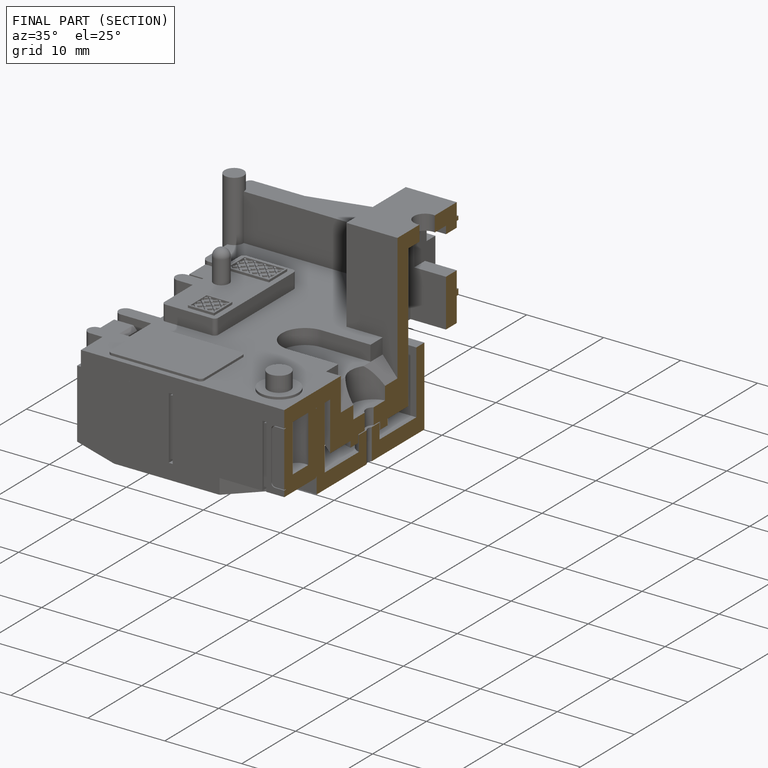
[diagram: finished part — half-section view (interior)]
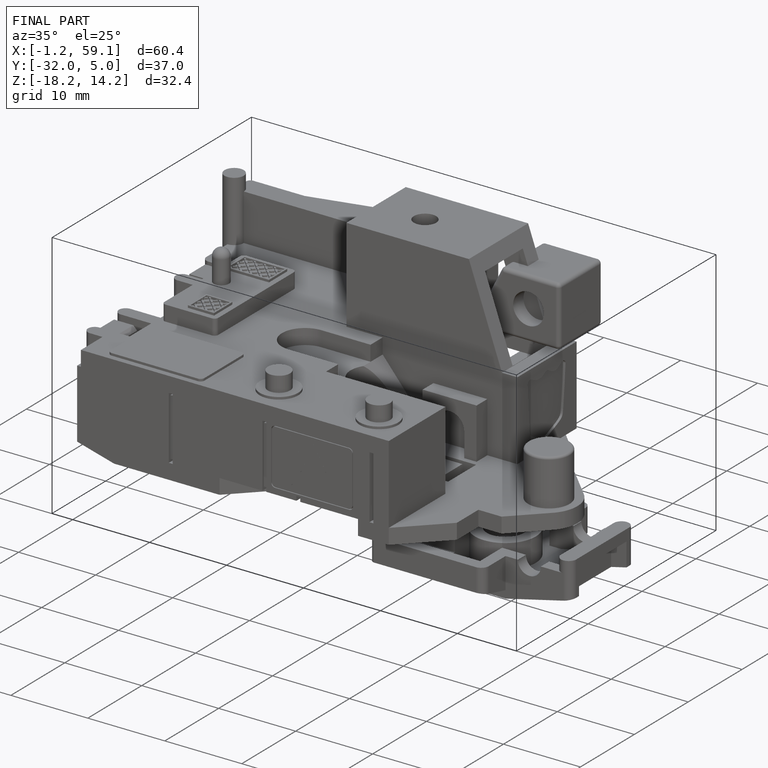
[diagram: finished part — iso view with bounding-box wireframe]
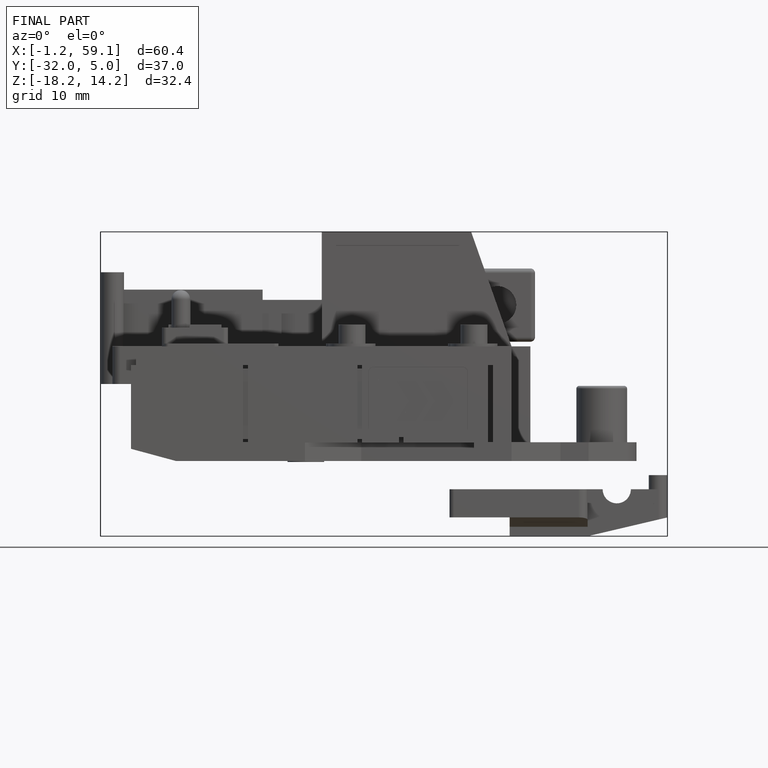
[diagram: finished part — front view with bounding-box wireframe]
